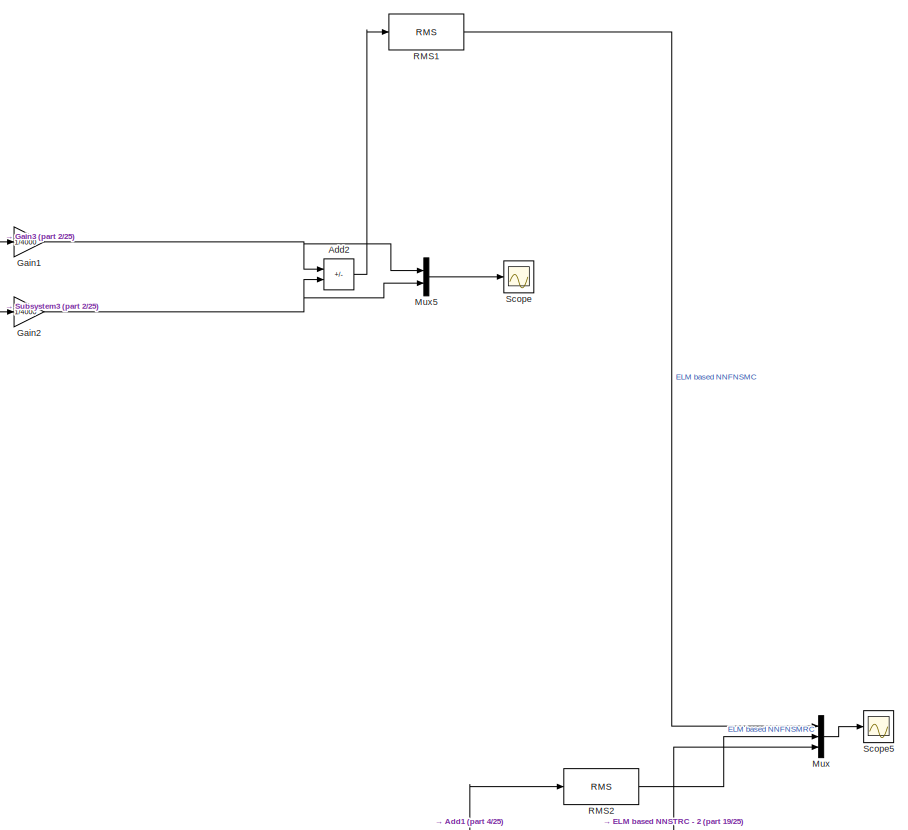
[diagram: root canvas - part 1/25, top center region]
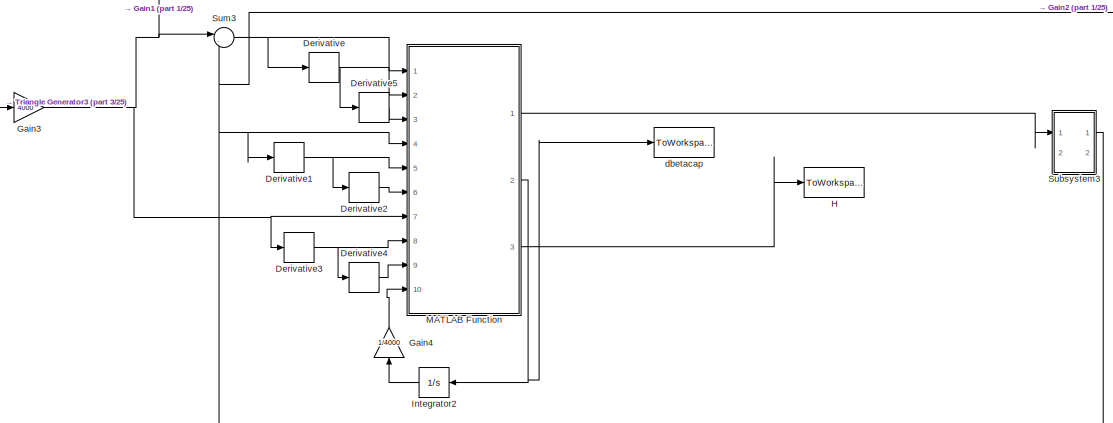
[diagram: root canvas - part 2/25, top left region]
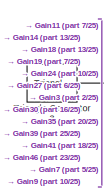
[diagram: root canvas - part 3/25, top left region]
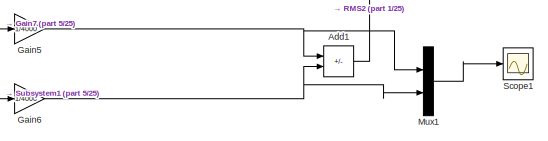
[diagram: root canvas - part 4/25, top center region]
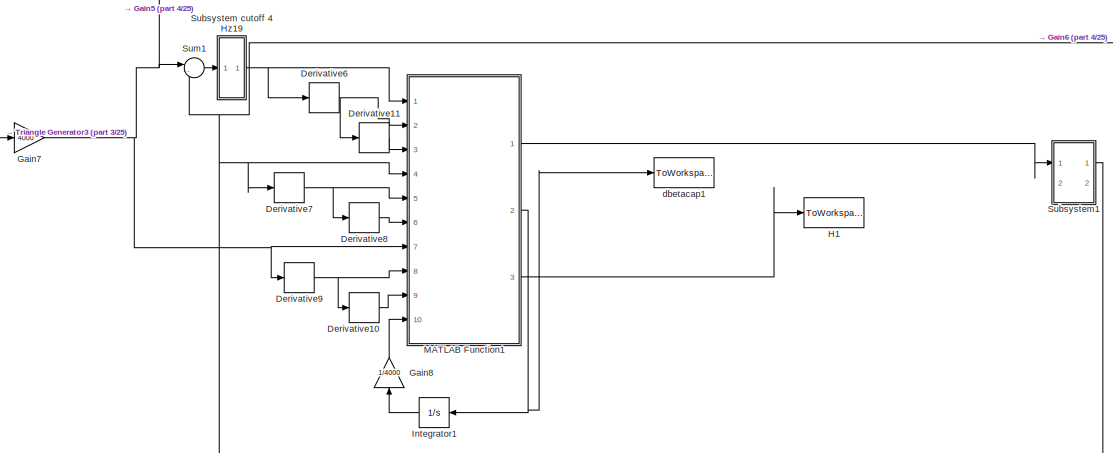
[diagram: root canvas - part 5/25, top left region]
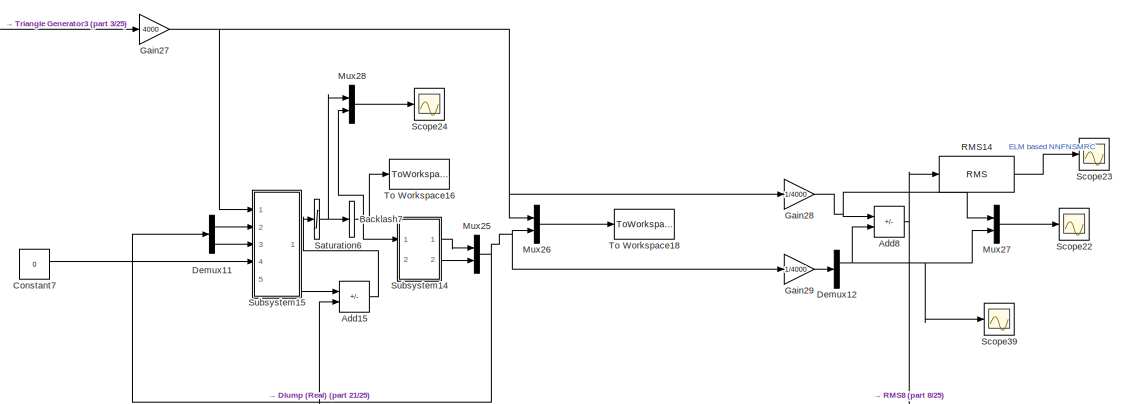
[diagram: root canvas - part 6/25, top center region]
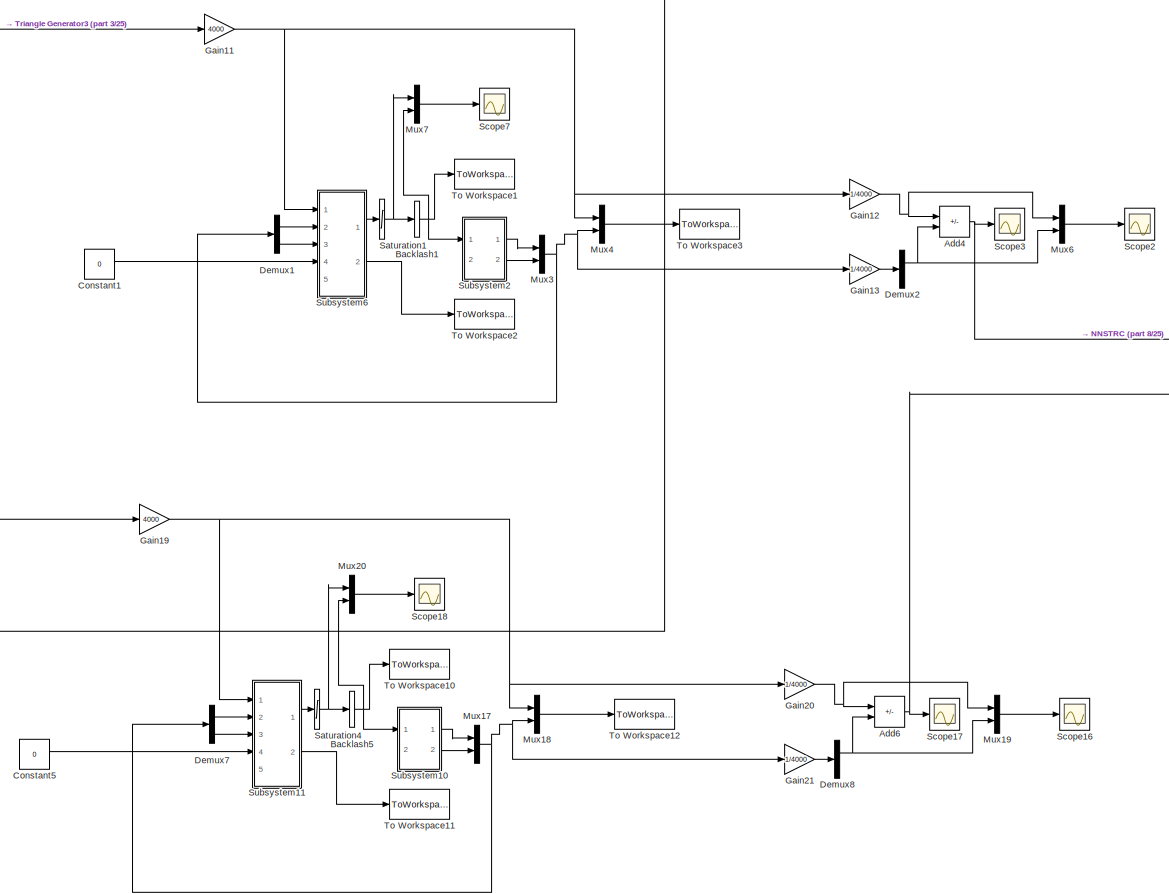
[diagram: root canvas - part 7/25, top center region]
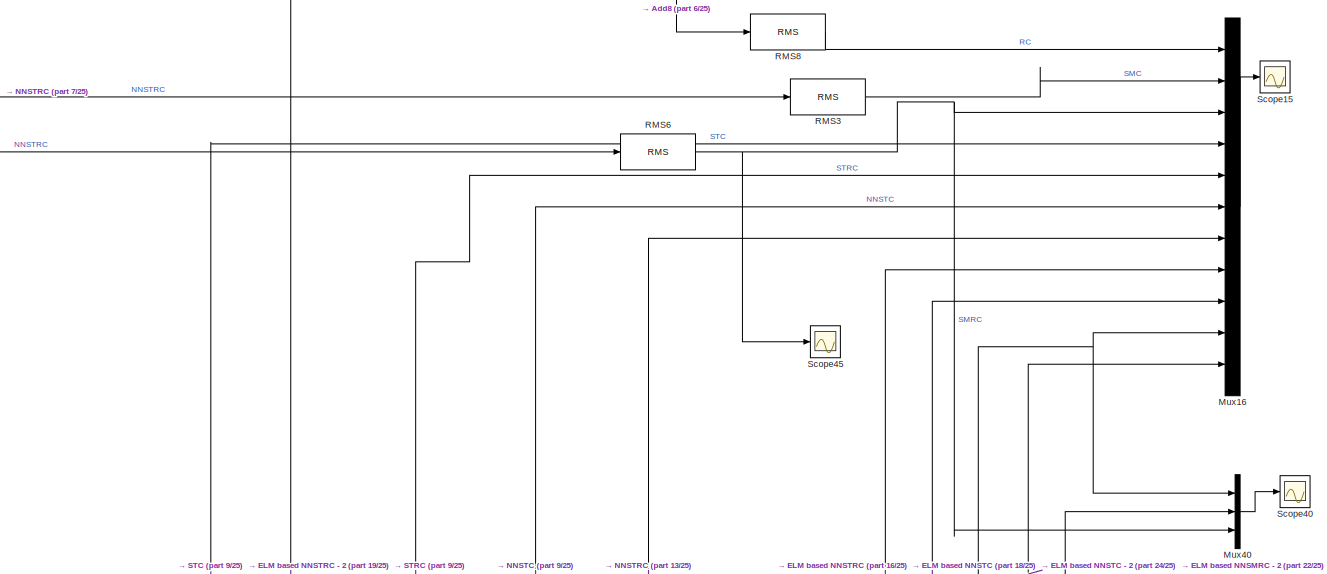
[diagram: root canvas - part 8/25, central region]
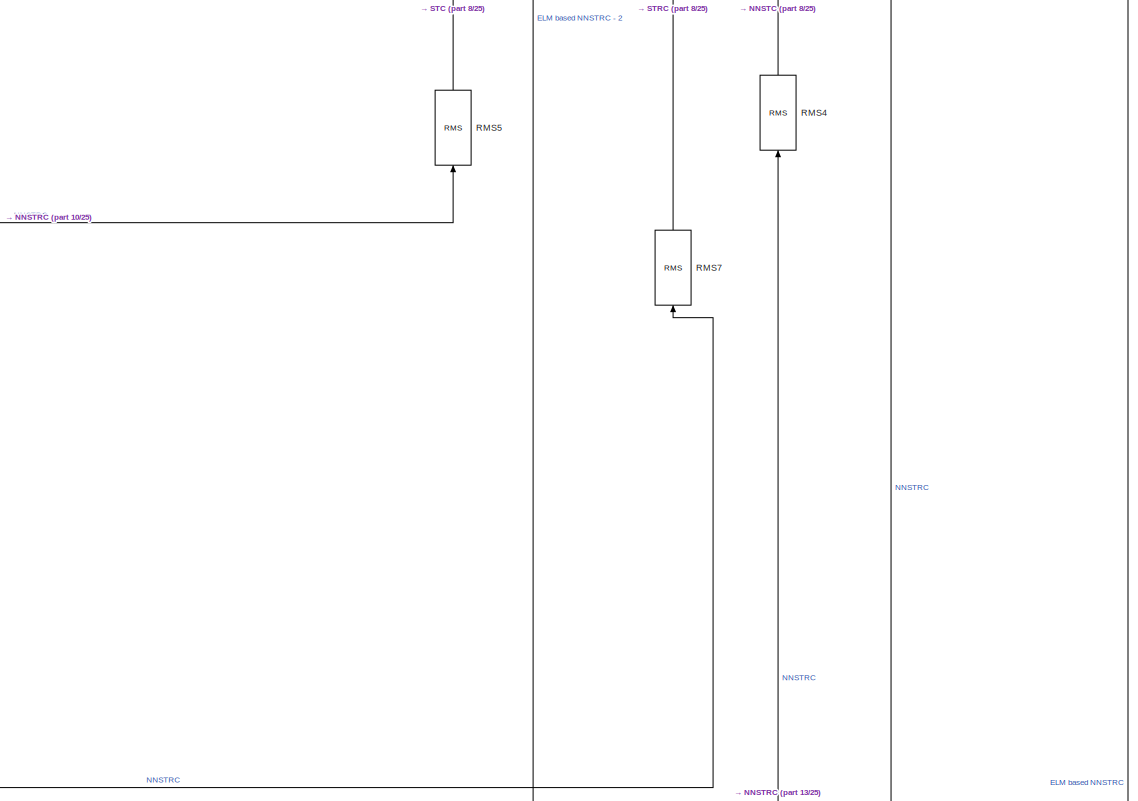
[diagram: root canvas - part 9/25, central region]
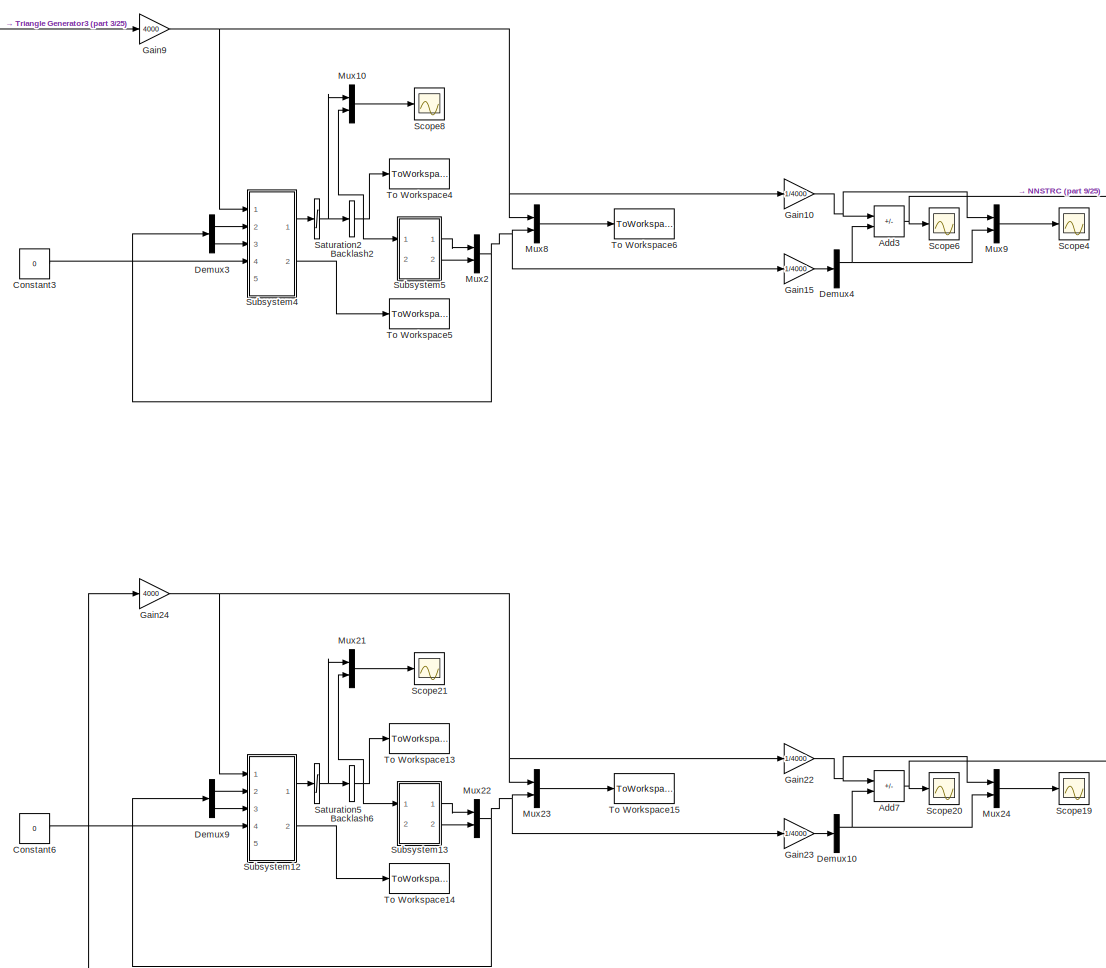
[diagram: root canvas - part 10/25, middle left region]
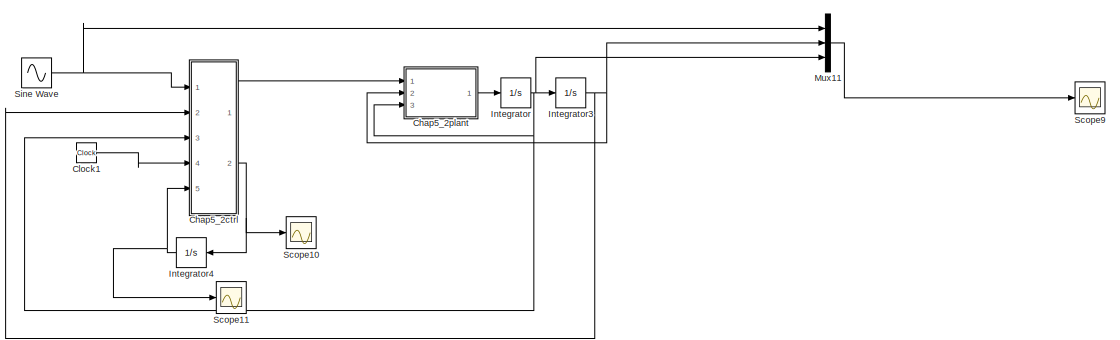
[diagram: root canvas - part 11/25, middle right region]
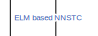
[diagram: root canvas - part 12/25, central region]
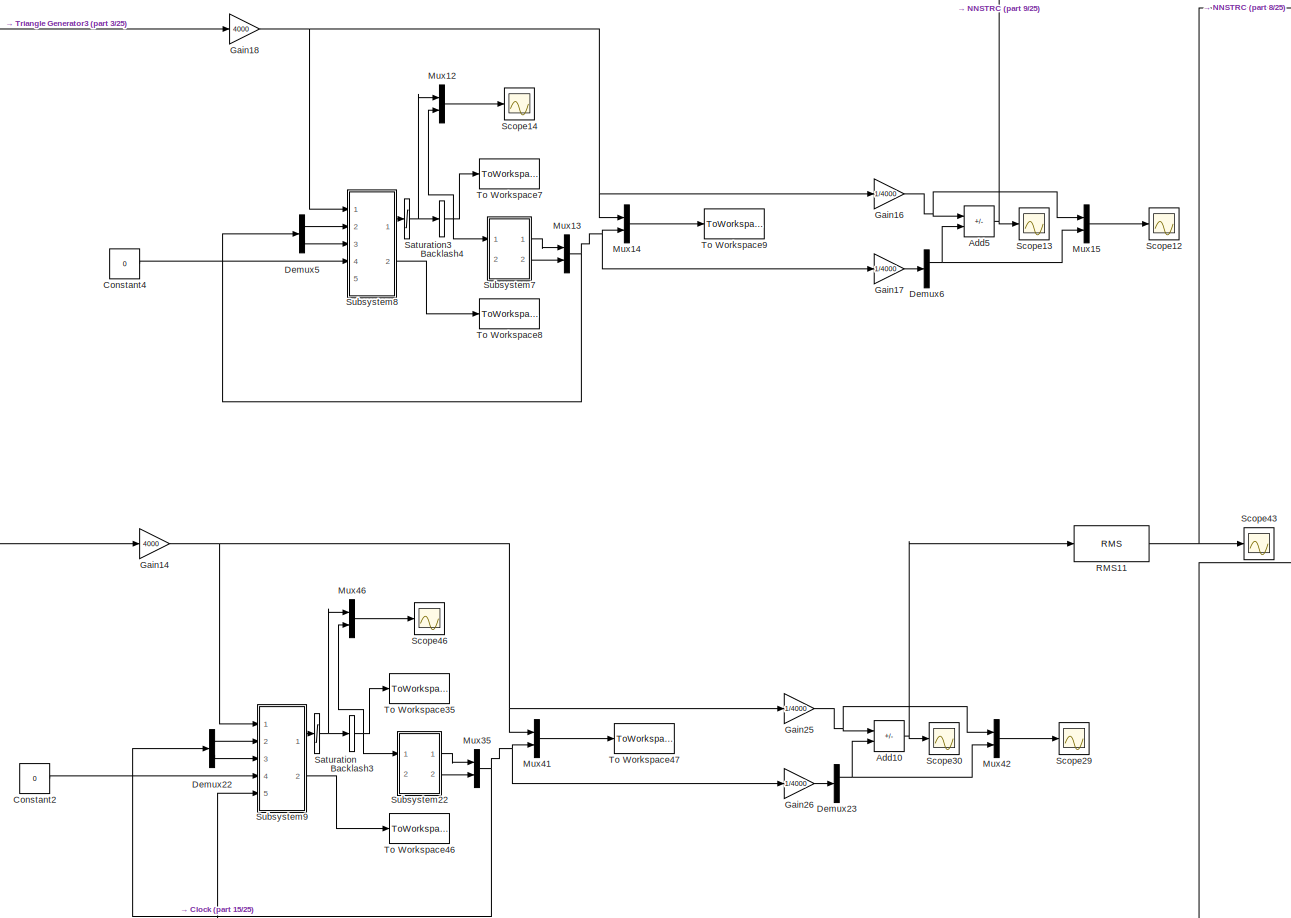
[diagram: root canvas - part 13/25, central region]
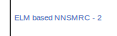
[diagram: root canvas - part 14/25, middle right region]
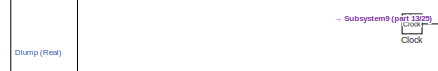
[diagram: root canvas - part 15/25, middle left region]
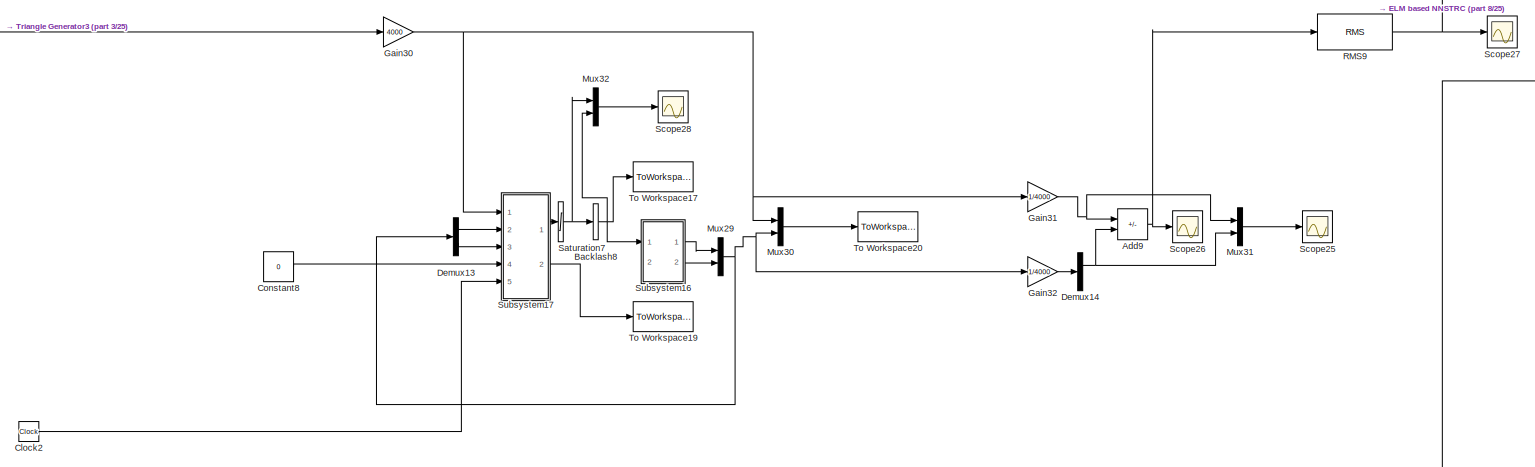
[diagram: root canvas - part 16/25, central region]
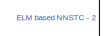
[diagram: root canvas - part 17/25, central region]
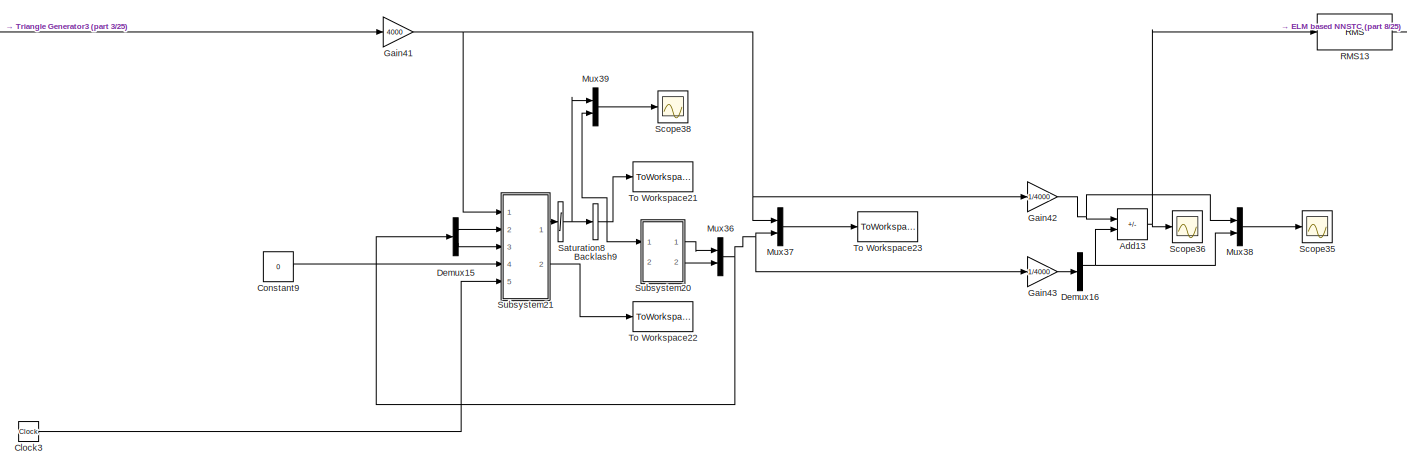
[diagram: root canvas - part 18/25, central region]
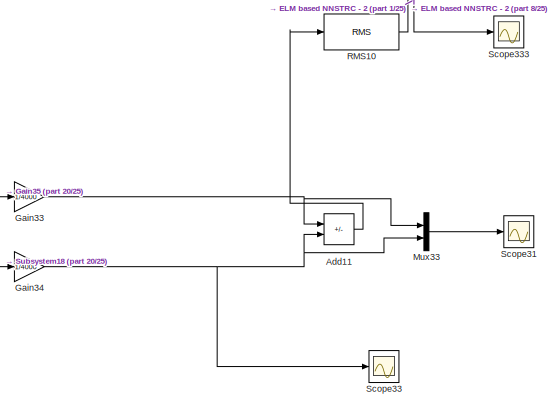
[diagram: root canvas - part 19/25, bottom center region]
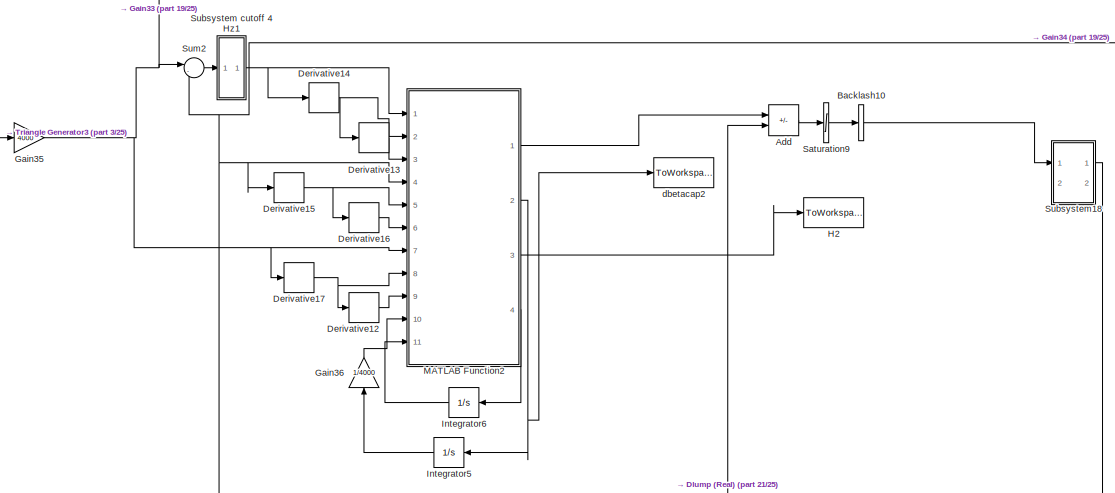
[diagram: root canvas - part 20/25, bottom left region]
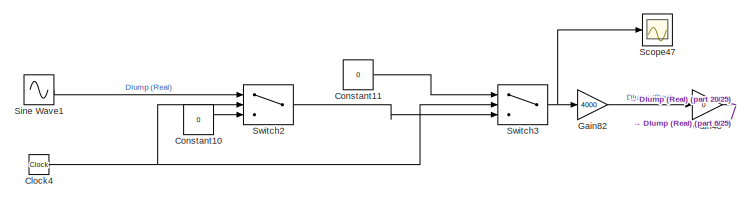
[diagram: root canvas - part 21/25, bottom left region]
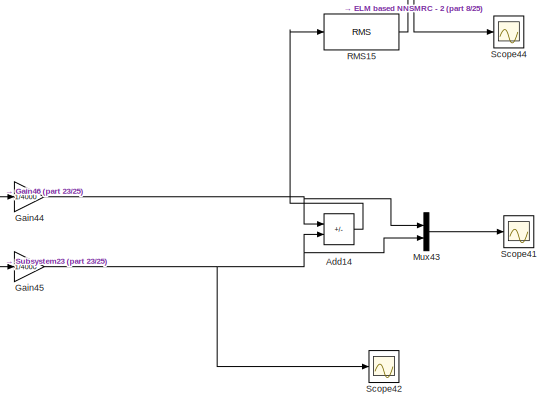
[diagram: root canvas - part 22/25, bottom center region]
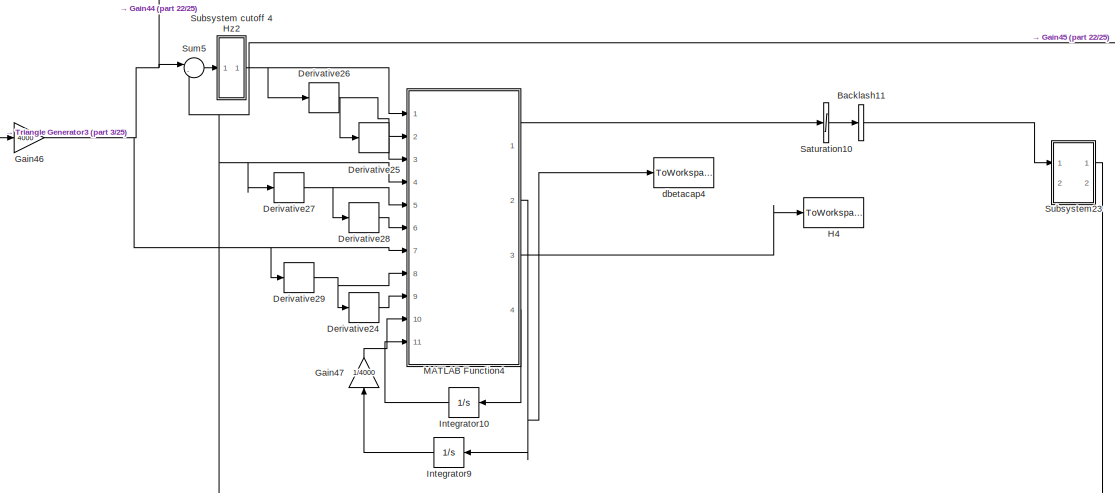
[diagram: root canvas - part 23/25, bottom left region]
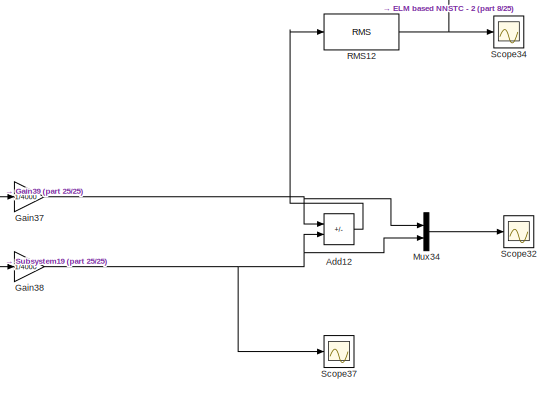
[diagram: root canvas - part 24/25, bottom center region]
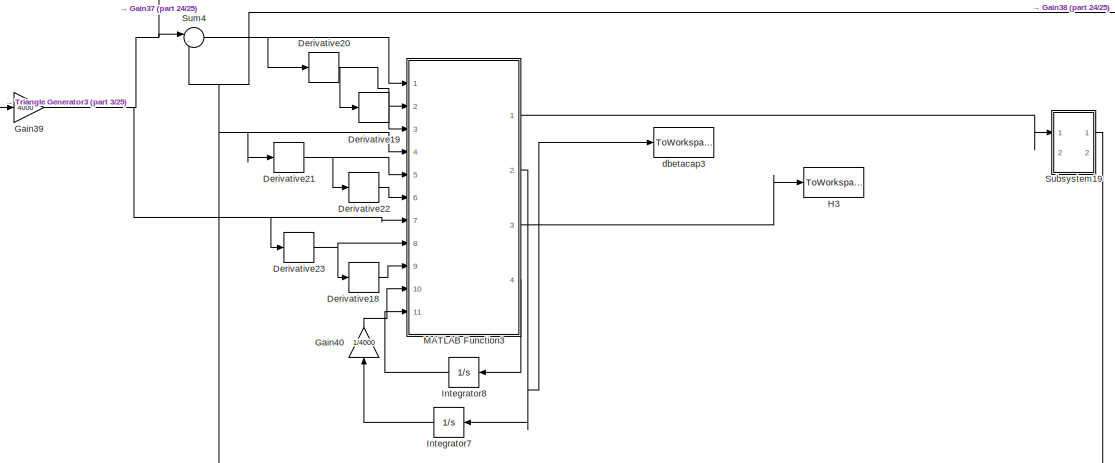
[diagram: root canvas - part 25/25, bottom center region]
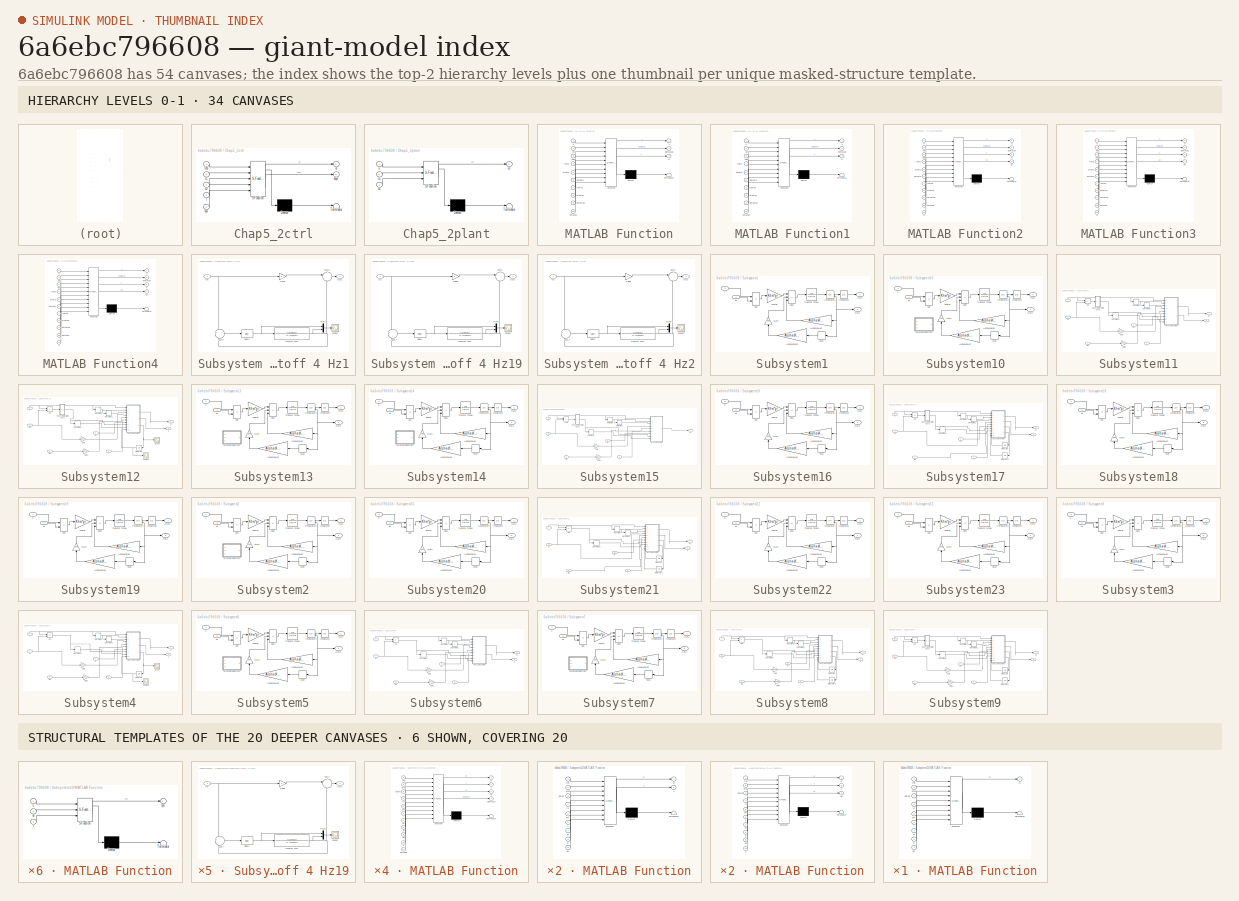
[diagram: thumbnail index - top-2 hierarchy levels (34 canvases) + 6 structural-template representatives of the remaining 20 canvases]
MODEL slx_6a6ebc796608
KIND model
CONFIG AbsTol = auto
CONFIG EnableMultiTasking = on
CONFIG FixedStep = 0.001768
CONFIG MaxStep = auto
CONFIG MinStep = auto
CONFIG RelTol = 1e-3
CONFIG SampleTimeConstraint = Unconstrained
CONFIG Solver = FixedStepAuto
CONFIG SolverName = FixedStepAuto
CONFIG StartTime = 0.0
CONFIG StopTime = 40
BLOCK [Sum] Add
  IconShape = rectangular
  Inputs = +-
  Ports = [2, 1]
BLOCK [Sum] Add1
  IconShape = rectangular
  Inputs = +-
  Ports = [2, 1]
BLOCK [Sum] Add10
  IconShape = rectangular
  Inputs = +-
  Ports = [2, 1]
BLOCK [Sum] Add11
  IconShape = rectangular
  Inputs = +-
  Ports = [2, 1]
BLOCK [Sum] Add12
  IconShape = rectangular
  Inputs = +-
  Ports = [2, 1]
BLOCK [Sum] Add13
  IconShape = rectangular
  Inputs = +-
  Ports = [2, 1]
BLOCK [Sum] Add14
  IconShape = rectangular
  Inputs = +-
  Ports = [2, 1]
BLOCK [Sum] Add15
  IconShape = rectangular
  Inputs = +-
  Ports = [2, 1]
BLOCK [Sum] Add2
  IconShape = rectangular
  Inputs = +-
  Ports = [2, 1]
BLOCK [Sum] Add3
  IconShape = rectangular
  Inputs = +-
  Ports = [2, 1]
BLOCK [Sum] Add4
  IconShape = rectangular
  Inputs = +-
  Ports = [2, 1]
BLOCK [Sum] Add5
  IconShape = rectangular
  Inputs = +-
  Ports = [2, 1]
BLOCK [Sum] Add6
  IconShape = rectangular
  Inputs = +-
  Ports = [2, 1]
BLOCK [Sum] Add7
  IconShape = rectangular
  Inputs = +-
  Ports = [2, 1]
BLOCK [Sum] Add8
  IconShape = rectangular
  Inputs = +-
  Ports = [2, 1]
BLOCK [Sum] Add9
  IconShape = rectangular
  Inputs = +-
  Ports = [2, 1]
BLOCK [Backlash] Backlash1
  BacklashWidth = BACKLASH
BLOCK [Backlash] Backlash10
  BacklashWidth = BACKLASH
BLOCK [Backlash] Backlash11
  BacklashWidth = BACKLASH
BLOCK [Backlash] Backlash2
  BacklashWidth = BACKLASH
BLOCK [Backlash] Backlash3
  BacklashWidth = BACKLASH
BLOCK [Backlash] Backlash4
  BacklashWidth = BACKLASH
BLOCK [Backlash] Backlash5
  BacklashWidth = BACKLASH
BLOCK [Backlash] Backlash6
  BacklashWidth = BACKLASH
BLOCK [Backlash] Backlash7
  BacklashWidth = BACKLASH
BLOCK [Backlash] Backlash8
  BacklashWidth = BACKLASH
BLOCK [Backlash] Backlash9
  BacklashWidth = BACKLASH
BLOCK [SubSystem] Chap5_2ctrl
  ErrorFcn = Stateflow.Translate.translate
  PermitHierarchicalResolution = ExplicitOnly
  Ports = [5, 2]
  RequestExecContextInheritance = off
  SFBlockType = MATLAB Function
  TreatAsAtomicUnit = on
BLOCK [Demux] Chap5_2ctrl/ Demux 
  Outputs = 1
  Ports = [1, 1]
BLOCK [S-Function] Chap5_2ctrl/ SFunction 
  EnableBusSupport = off
  FunctionName = sf_sfun
  PortCounts = [5 3]
  Ports = [5, 3]
  SFcnIsStateOwnerBlock = off
  SFunctionDeploymentMode = off
  Tag = Stateflow S-Function 7
BLOCK [Terminator] Chap5_2ctrl/ Terminator 
BLOCK [Outport] Chap5_2ctrl/dsys
  Port = 2
  VectorParamsAs1DForOutWhenUnconnected = off
BLOCK [Inport] Chap5_2ctrl/sys
  Port = 5
BLOCK [Inport] Chap5_2ctrl/t
  Port = 4
BLOCK [Inport] Chap5_2ctrl/thd
BLOCK [Outport] Chap5_2ctrl/ut
  VectorParamsAs1DForOutWhenUnconnected = off
BLOCK [Inport] Chap5_2ctrl/x1
  Port = 2
BLOCK [Inport] Chap5_2ctrl/x2
  Port = 3
BLOCK [SubSystem] Chap5_2plant
  ErrorFcn = Stateflow.Translate.translate
  PermitHierarchicalResolution = ExplicitOnly
  Ports = [3, 1]
  RequestExecContextInheritance = off
  SFBlockType = MATLAB Function
  TreatAsAtomicUnit = on
BLOCK [Demux] Chap5_2plant/ Demux 
  Outputs = 1
  Ports = [1, 1]
BLOCK [S-Function] Chap5_2plant/ SFunction 
  EnableBusSupport = off
  FunctionName = sf_sfun
  PortCounts = [3 2]
  Ports = [3, 2]
  SFcnIsStateOwnerBlock = off
  SFunctionDeploymentMode = off
  Tag = Stateflow S-Function 8
BLOCK [Terminator] Chap5_2plant/ Terminator 
BLOCK [Inport] Chap5_2plant/u
BLOCK [Inport] Chap5_2plant/x1
  Port = 2
BLOCK [Inport] Chap5_2plant/x2
  Port = 3
BLOCK [Outport] Chap5_2plant/x3
  VectorParamsAs1DForOutWhenUnconnected = off
BLOCK [Clock] Clock
  Decimation = 40
  DisplayTime = on
BLOCK [Clock] Clock1
  DisplayTime = on
BLOCK [Clock] Clock2
  Decimation = 40
  DisplayTime = on
BLOCK [Clock] Clock3
  Decimation = 40
  DisplayTime = on
BLOCK [Clock] Clock4
BLOCK [Constant] Constant1
  Value = 0
BLOCK [Constant] Constant10
  Value = 0
BLOCK [Constant] Constant11
  Value = 0
BLOCK [Constant] Constant2
  Value = 0
BLOCK [Constant] Constant3
  Value = 0
BLOCK [Constant] Constant4
  Value = 0
BLOCK [Constant] Constant5
  Value = 0
BLOCK [Constant] Constant6
  Value = 0
BLOCK [Constant] Constant7
  Value = 0
BLOCK [Constant] Constant8
  Value = 0
BLOCK [Constant] Constant9
  Value = 0
BLOCK [Demux] Demux1
  Outputs = 2
  Ports = [1, 2]
BLOCK [Demux] Demux10
  Outputs = 2
  Ports = [1, 2]
BLOCK [Demux] Demux11
  Outputs = 2
  Ports = [1, 2]
BLOCK [Demux] Demux12
  Outputs = 2
  Ports = [1, 2]
BLOCK [Demux] Demux13
  Outputs = 2
  Ports = [1, 2]
BLOCK [Demux] Demux14
  Outputs = 2
  Ports = [1, 2]
BLOCK [Demux] Demux15
  Outputs = 2
  Ports = [1, 2]
BLOCK [Demux] Demux16
  Outputs = 2
  Ports = [1, 2]
BLOCK [Demux] Demux2
  Outputs = 2
  Ports = [1, 2]
BLOCK [Demux] Demux22
  Outputs = 2
  Ports = [1, 2]
BLOCK [Demux] Demux23
  Outputs = 2
  Ports = [1, 2]
BLOCK [Demux] Demux3
  Outputs = 2
  Ports = [1, 2]
BLOCK [Demux] Demux4
  Outputs = 2
  Ports = [1, 2]
BLOCK [Demux] Demux5
  Outputs = 2
  Ports = [1, 2]
BLOCK [Demux] Demux6
  Outputs = 2
  Ports = [1, 2]
BLOCK [Demux] Demux7
  Outputs = 2
  Ports = [1, 2]
BLOCK [Demux] Demux8
  Outputs = 2
  Ports = [1, 2]
BLOCK [Demux] Demux9
  Outputs = 2
  Ports = [1, 2]
BLOCK [Derivative] Derivative
BLOCK [Derivative] Derivative1
BLOCK [Derivative] Derivative10
BLOCK [Derivative] Derivative11
BLOCK [Derivative] Derivative12
BLOCK [Derivative] Derivative13
BLOCK [Derivative] Derivative14
BLOCK [Derivative] Derivative15
BLOCK [Derivative] Derivative16
BLOCK [Derivative] Derivative17
BLOCK [Derivative] Derivative18
BLOCK [Derivative] Derivative19
BLOCK [Derivative] Derivative2
BLOCK [Derivative] Derivative20
BLOCK [Derivative] Derivative21
BLOCK [Derivative] Derivative22
BLOCK [Derivative] Derivative23
BLOCK [Derivative] Derivative24
BLOCK [Derivative] Derivative25
BLOCK [Derivative] Derivative26
BLOCK [Derivative] Derivative27
BLOCK [Derivative] Derivative28
BLOCK [Derivative] Derivative29
BLOCK [Derivative] Derivative3
BLOCK [Derivative] Derivative4
BLOCK [Derivative] Derivative5
BLOCK [Derivative] Derivative6
BLOCK [Derivative] Derivative7
BLOCK [Derivative] Derivative8
BLOCK [Derivative] Derivative9
BLOCK [Gain] Gain1
  Gain = 1/4000
BLOCK [Gain] Gain10
  Gain = 1/4000
BLOCK [Gain] Gain11
  Gain = 4000
BLOCK [Gain] Gain12
  Gain = 1/4000
BLOCK [Gain] Gain13
  Gain = 1/4000
BLOCK [Gain] Gain14
  Gain = 4000
BLOCK [Gain] Gain15
  Gain = 1/4000
BLOCK [Gain] Gain16
  Gain = 1/4000
BLOCK [Gain] Gain17
  Gain = 1/4000
BLOCK [Gain] Gain18
  Gain = 4000
BLOCK [Gain] Gain19
  Gain = 4000
BLOCK [Gain] Gain2
  Gain = 1/4000
BLOCK [Gain] Gain20
  Gain = 1/4000
BLOCK [Gain] Gain21
  Gain = 1/4000
BLOCK [Gain] Gain22
  Gain = 1/4000
BLOCK [Gain] Gain23
  Gain = 1/4000
BLOCK [Gain] Gain24
  Gain = 4000
BLOCK [Gain] Gain25
  Gain = 1/4000
BLOCK [Gain] Gain26
  Gain = 1/4000
BLOCK [Gain] Gain27
  Gain = 4000
BLOCK [Gain] Gain28
  Gain = 1/4000
BLOCK [Gain] Gain29
  Gain = 1/4000
BLOCK [Gain] Gain3
  Gain = 4000
BLOCK [Gain] Gain30
  Gain = 4000
BLOCK [Gain] Gain31
  Gain = 1/4000
BLOCK [Gain] Gain32
  Gain = 1/4000
BLOCK [Gain] Gain33
  Gain = 1/4000
BLOCK [Gain] Gain34
  Gain = 1/4000
BLOCK [Gain] Gain35
  Gain = 4000
BLOCK [Gain] Gain36
  Gain = 1/4000
  NameLocation = right
BLOCK [Gain] Gain37
  Gain = 1/4000
BLOCK [Gain] Gain38
  Gain = 1/4000
BLOCK [Gain] Gain39
  Gain = 4000
BLOCK [Gain] Gain4
  Gain = 1/4000
  NameLocation = right
BLOCK [Gain] Gain40
  Gain = 1/4000
  NameLocation = right
BLOCK [Gain] Gain41
  Gain = 4000
BLOCK [Gain] Gain42
  Gain = 1/4000
BLOCK [Gain] Gain43
  Gain = 1/4000
BLOCK [Gain] Gain44
  Gain = 1/4000
BLOCK [Gain] Gain45
  Gain = 1/4000
BLOCK [Gain] Gain46
  Gain = 4000
BLOCK [Gain] Gain47
  Gain = 1/4000
  NameLocation = right
BLOCK [Gain] Gain48
  Gain = 0
BLOCK [Gain] Gain5
  Gain = 1/4000
BLOCK [Gain] Gain6
  Gain = 1/4000
BLOCK [Gain] Gain7
  Gain = 4000
BLOCK [Gain] Gain8
  Gain = 1/4000
  NameLocation = right
BLOCK [Gain] Gain82
  Gain = 4000
BLOCK [Gain] Gain9
  Gain = 4000
BLOCK [ToWorkspace] H
  FixptAsFi = on
  MaxDataPoints = inf
  Ports = [1]
  SampleTime = -1
  SaveFormat = Timeseries
  VariableName = simout1
BLOCK [ToWorkspace] H1
  FixptAsFi = on
  MaxDataPoints = inf
  Ports = [1]
  SampleTime = -1
  SaveFormat = Timeseries
  VariableName = simout2
BLOCK [ToWorkspace] H2
  FixptAsFi = on
  MaxDataPoints = inf
  Ports = [1]
  SampleTime = -1
  SaveFormat = Timeseries
  VariableName = simout4
BLOCK [ToWorkspace] H3
  FixptAsFi = on
  MaxDataPoints = inf
  Ports = [1]
  SampleTime = -1
  SaveFormat = Timeseries
  VariableName = simout6
BLOCK [ToWorkspace] H4
  FixptAsFi = on
  MaxDataPoints = inf
  Ports = [1]
  SampleTime = -1
  SaveFormat = Timeseries
  VariableName = simout8
BLOCK [Integrator] Integrator
  Ports = [1, 1]
BLOCK [Integrator] Integrator1
  NameLocation = top
  Ports = [1, 1]
BLOCK [Integrator] Integrator10
  NameLocation = top
  Ports = [1, 1]
BLOCK [Integrator] Integrator2
  NameLocation = top
  Ports = [1, 1]
BLOCK [Integrator] Integrator3
  Ports = [1, 1]
BLOCK [Integrator] Integrator4
  NameLocation = top
  Ports = [1, 1]
BLOCK [Integrator] Integrator5
  NameLocation = top
  Ports = [1, 1]
BLOCK [Integrator] Integrator6
  NameLocation = top
  Ports = [1, 1]
BLOCK [Integrator] Integrator7
  NameLocation = top
  Ports = [1, 1]
BLOCK [Integrator] Integrator8
  NameLocation = top
  Ports = [1, 1]
BLOCK [Integrator] Integrator9
  NameLocation = top
  Ports = [1, 1]
BLOCK [SubSystem] MATLAB Function
  ErrorFcn = Stateflow.Translate.translate
  PermitHierarchicalResolution = ExplicitOnly
  Ports = [10, 3]
  RequestExecContextInheritance = off
  SFBlockType = MATLAB Function
  TreatAsAtomicUnit = on
BLOCK [Demux] MATLAB Function/ Demux 
  Outputs = 1
  Ports = [1, 1]
BLOCK [S-Function] MATLAB Function/ SFunction 
  EnableBusSupport = off
  FunctionName = sf_sfun
  PortCounts = [10 4]
  Ports = [10, 4]
  SFcnIsStateOwnerBlock = off
  SFunctionDeploymentMode = off
  Tag = Stateflow S-Function 3
BLOCK [Terminator] MATLAB Function/ Terminator 
BLOCK [Outport] MATLAB Function/H
  Port = 3
  VectorParamsAs1DForOutWhenUnconnected = off
BLOCK [Inport] MATLAB Function/betacap
  Port = 10
BLOCK [Outport] MATLAB Function/dbetacap
  Port = 2
  VectorParamsAs1DForOutWhenUnconnected = off
BLOCK [Inport] MATLAB Function/dde
  Port = 3
BLOCK [Inport] MATLAB Function/ddtheta
  Port = 6
BLOCK [Inport] MATLAB Function/ddthetad
  Port = 9
BLOCK [Inport] MATLAB Function/de
  Port = 2
BLOCK [Inport] MATLAB Function/dtheta
  Port = 5
BLOCK [Inport] MATLAB Function/dthetad
  Port = 8
BLOCK [Inport] MATLAB Function/e
BLOCK [Inport] MATLAB Function/theta
  Port = 4
BLOCK [Inport] MATLAB Function/thetad
  Port = 7
BLOCK [Outport] MATLAB Function/u
  VectorParamsAs1DForOutWhenUnconnected = off
BLOCK [SubSystem] MATLAB Function1
  ErrorFcn = Stateflow.Translate.translate
  PermitHierarchicalResolution = ExplicitOnly
  Ports = [10, 3]
  RequestExecContextInheritance = off
  SFBlockType = MATLAB Function
  TreatAsAtomicUnit = on
BLOCK [Demux] MATLAB Function1/ Demux 
  Outputs = 1
  Ports = [1, 1]
BLOCK [S-Function] MATLAB Function1/ SFunction 
  EnableBusSupport = off
  FunctionName = sf_sfun
  PortCounts = [10 4]
  Ports = [10, 4]
  SFcnIsStateOwnerBlock = off
  SFunctionDeploymentMode = off
  Tag = Stateflow S-Function 1
BLOCK [Terminator] MATLAB Function1/ Terminator 
BLOCK [Outport] MATLAB Function1/H
  Port = 3
  VectorParamsAs1DForOutWhenUnconnected = off
BLOCK [Inport] MATLAB Function1/betacap
  Port = 10
BLOCK [Outport] MATLAB Function1/dbetacap
  Port = 2
  VectorParamsAs1DForOutWhenUnconnected = off
BLOCK [Inport] MATLAB Function1/dde
  Port = 3
BLOCK [Inport] MATLAB Function1/ddtheta
  Port = 6
BLOCK [Inport] MATLAB Function1/ddthetad
  Port = 9
BLOCK [Inport] MATLAB Function1/de
  Port = 2
BLOCK [Inport] MATLAB Function1/dtheta
  Port = 5
BLOCK [Inport] MATLAB Function1/dthetad
  Port = 8
BLOCK [Inport] MATLAB Function1/e
BLOCK [Inport] MATLAB Function1/theta
  Port = 4
BLOCK [Inport] MATLAB Function1/thetad
  Port = 7
BLOCK [Outport] MATLAB Function1/u
  VectorParamsAs1DForOutWhenUnconnected = off
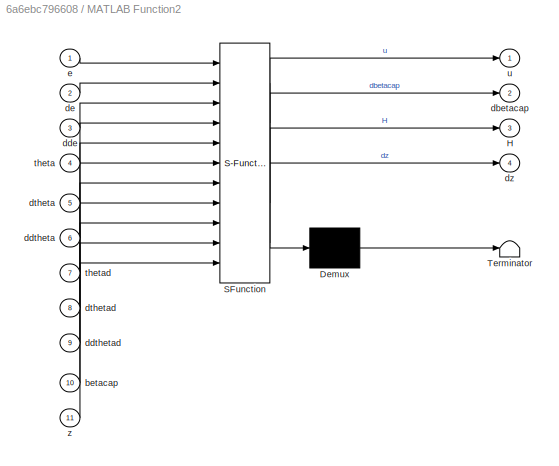
BLOCK [SubSystem] MATLAB Function2
  ErrorFcn = Stateflow.Translate.translate
  PermitHierarchicalResolution = ExplicitOnly
  Ports = [11, 4]
  RequestExecContextInheritance = off
  SFBlockType = MATLAB Function
  TreatAsAtomicUnit = on
BLOCK [Demux] MATLAB Function2/ Demux 
  Outputs = 1
  Ports = [1, 1]
BLOCK [S-Function] MATLAB Function2/ SFunction 
  EnableBusSupport = off
  FunctionName = sf_sfun
  PortCounts = [11 5]
  Ports = [11, 5]
  SFcnIsStateOwnerBlock = off
  SFunctionDeploymentMode = off
  Tag = Stateflow S-Function 19
BLOCK [Terminator] MATLAB Function2/ Terminator 
BLOCK [Outport] MATLAB Function2/H
  Port = 3
  VectorParamsAs1DForOutWhenUnconnected = off
BLOCK [Inport] MATLAB Function2/betacap
  Port = 10
BLOCK [Outport] MATLAB Function2/dbetacap
  Port = 2
  VectorParamsAs1DForOutWhenUnconnected = off
BLOCK [Inport] MATLAB Function2/dde
  Port = 3
BLOCK [Inport] MATLAB Function2/ddtheta
  Port = 6
BLOCK [Inport] MATLAB Function2/ddthetad
  Port = 9
BLOCK [Inport] MATLAB Function2/de
  Port = 2
BLOCK [Inport] MATLAB Function2/dtheta
  Port = 5
BLOCK [Inport] MATLAB Function2/dthetad
  Port = 8
BLOCK [Outport] MATLAB Function2/dz
  Port = 4
  VectorParamsAs1DForOutWhenUnconnected = off
BLOCK [Inport] MATLAB Function2/e
BLOCK [Inport] MATLAB Function2/theta
  Port = 4
BLOCK [Inport] MATLAB Function2/thetad
  Port = 7
BLOCK [Outport] MATLAB Function2/u
  VectorParamsAs1DForOutWhenUnconnected = off
BLOCK [Inport] MATLAB Function2/z
  Port = 11
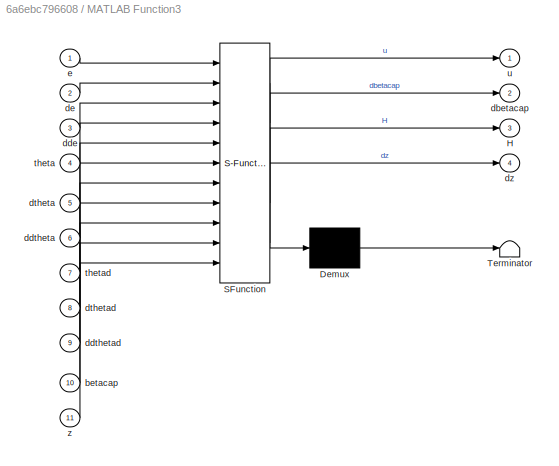
BLOCK [SubSystem] MATLAB Function3
  ErrorFcn = Stateflow.Translate.translate
  PermitHierarchicalResolution = ExplicitOnly
  Ports = [11, 4]
  RequestExecContextInheritance = off
  SFBlockType = MATLAB Function
  TreatAsAtomicUnit = on
BLOCK [Demux] MATLAB Function3/ Demux 
  Outputs = 1
  Ports = [1, 1]
BLOCK [S-Function] MATLAB Function3/ SFunction 
  EnableBusSupport = off
  FunctionName = sf_sfun
  PortCounts = [11 5]
  Ports = [11, 5]
  SFcnIsStateOwnerBlock = off
  SFunctionDeploymentMode = off
  Tag = Stateflow S-Function 20
BLOCK [Terminator] MATLAB Function3/ Terminator 
BLOCK [Outport] MATLAB Function3/H
  Port = 3
  VectorParamsAs1DForOutWhenUnconnected = off
BLOCK [Inport] MATLAB Function3/betacap
  Port = 10
BLOCK [Outport] MATLAB Function3/dbetacap
  Port = 2
  VectorParamsAs1DForOutWhenUnconnected = off
BLOCK [Inport] MATLAB Function3/dde
  Port = 3
BLOCK [Inport] MATLAB Function3/ddtheta
  Port = 6
BLOCK [Inport] MATLAB Function3/ddthetad
  Port = 9
BLOCK [Inport] MATLAB Function3/de
  Port = 2
BLOCK [Inport] MATLAB Function3/dtheta
  Port = 5
BLOCK [Inport] MATLAB Function3/dthetad
  Port = 8
BLOCK [Outport] MATLAB Function3/dz
  Port = 4
  VectorParamsAs1DForOutWhenUnconnected = off
BLOCK [Inport] MATLAB Function3/e
BLOCK [Inport] MATLAB Function3/theta
  Port = 4
BLOCK [Inport] MATLAB Function3/thetad
  Port = 7
BLOCK [Outport] MATLAB Function3/u
  VectorParamsAs1DForOutWhenUnconnected = off
BLOCK [Inport] MATLAB Function3/z
  Port = 11
BLOCK [SubSystem] MATLAB Function4
  ErrorFcn = Stateflow.Translate.translate
  PermitHierarchicalResolution = ExplicitOnly
  Ports = [11, 4]
  RequestExecContextInheritance = off
  SFBlockType = MATLAB Function
  TreatAsAtomicUnit = on
BLOCK [Demux] MATLAB Function4/ Demux 
  Outputs = 1
  Ports = [1, 1]
BLOCK [S-Function] MATLAB Function4/ SFunction 
  EnableBusSupport = off
  FunctionName = sf_sfun
  PortCounts = [11 5]
  Ports = [11, 5]
  SFcnIsStateOwnerBlock = off
  SFunctionDeploymentMode = off
  Tag = Stateflow S-Function 22
BLOCK [Terminator] MATLAB Function4/ Terminator 
BLOCK [Outport] MATLAB Function4/H
  Port = 3
  VectorParamsAs1DForOutWhenUnconnected = off
BLOCK [Inport] MATLAB Function4/betacap
  Port = 10
BLOCK [Outport] MATLAB Function4/dbetacap
  Port = 2
  VectorParamsAs1DForOutWhenUnconnected = off
BLOCK [Inport] MATLAB Function4/dde
  Port = 3
BLOCK [Inport] MATLAB Function4/ddtheta
  Port = 6
BLOCK [Inport] MATLAB Function4/ddthetad
  Port = 9
BLOCK [Inport] MATLAB Function4/de
  Port = 2
BLOCK [Inport] MATLAB Function4/dtheta
  Port = 5
BLOCK [Inport] MATLAB Function4/dthetad
  Port = 8
BLOCK [Outport] MATLAB Function4/dz
  Port = 4
  VectorParamsAs1DForOutWhenUnconnected = off
BLOCK [Inport] MATLAB Function4/e
BLOCK [Inport] MATLAB Function4/theta
  Port = 4
BLOCK [Inport] MATLAB Function4/thetad
  Port = 7
BLOCK [Outport] MATLAB Function4/u
  VectorParamsAs1DForOutWhenUnconnected = off
BLOCK [Inport] MATLAB Function4/z
  Port = 11
BLOCK [Mux] Mux
  DisplayOption = bar
  Inputs = 3
  Ports = [3, 1]
BLOCK [Mux] Mux1
  DisplayOption = bar
  Inputs = 2
  Ports = [2, 1]
BLOCK [Mux] Mux10
  DisplayOption = bar
  Inputs = 2
  Ports = [2, 1]
BLOCK [Mux] Mux11
  DisplayOption = bar
  Inputs = 3
  Ports = [3, 1]
BLOCK [Mux] Mux12
  DisplayOption = bar
  Inputs = 2
  Ports = [2, 1]
BLOCK [Mux] Mux13
  DisplayOption = bar
  Inputs = 2
  Ports = [2, 1]
BLOCK [Mux] Mux14
  DisplayOption = bar
  Inputs = 2
  Ports = [2, 1]
BLOCK [Mux] Mux15
  DisplayOption = bar
  Inputs = 2
  Ports = [2, 1]
BLOCK [Mux] Mux16
  DisplayOption = bar
  Inputs = 11
  Ports = [11, 1]
BLOCK [Mux] Mux17
  DisplayOption = bar
  Inputs = 2
  Ports = [2, 1]
BLOCK [Mux] Mux18
  DisplayOption = bar
  Inputs = 2
  Ports = [2, 1]
BLOCK [Mux] Mux19
  DisplayOption = bar
  Inputs = 2
  Ports = [2, 1]
BLOCK [Mux] Mux2
  DisplayOption = bar
  Inputs = 2
  Ports = [2, 1]
BLOCK [Mux] Mux20
  DisplayOption = bar
  Inputs = 2
  Ports = [2, 1]
BLOCK [Mux] Mux21
  DisplayOption = bar
  Inputs = 2
  Ports = [2, 1]
BLOCK [Mux] Mux22
  DisplayOption = bar
  Inputs = 2
  Ports = [2, 1]
BLOCK [Mux] Mux23
  DisplayOption = bar
  Inputs = 2
  Ports = [2, 1]
BLOCK [Mux] Mux24
  DisplayOption = bar
  Inputs = 2
  Ports = [2, 1]
BLOCK [Mux] Mux25
  DisplayOption = bar
  Inputs = 2
  Ports = [2, 1]
BLOCK [Mux] Mux26
  DisplayOption = bar
  Inputs = 2
  Ports = [2, 1]
BLOCK [Mux] Mux27
  DisplayOption = bar
  Inputs = 2
  Ports = [2, 1]
BLOCK [Mux] Mux28
  DisplayOption = bar
  Inputs = 2
  Ports = [2, 1]
BLOCK [Mux] Mux29
  DisplayOption = bar
  Inputs = 2
  Ports = [2, 1]
BLOCK [Mux] Mux3
  DisplayOption = bar
  Inputs = 2
  Ports = [2, 1]
BLOCK [Mux] Mux30
  DisplayOption = bar
  Inputs = 2
  Ports = [2, 1]
BLOCK [Mux] Mux31
  DisplayOption = bar
  Inputs = 2
  Ports = [2, 1]
BLOCK [Mux] Mux32
  DisplayOption = bar
  Inputs = 2
  Ports = [2, 1]
BLOCK [Mux] Mux33
  DisplayOption = bar
  Inputs = 2
  Ports = [2, 1]
BLOCK [Mux] Mux34
  DisplayOption = bar
  Inputs = 2
  Ports = [2, 1]
BLOCK [Mux] Mux35
  DisplayOption = bar
  Inputs = 2
  Ports = [2, 1]
BLOCK [Mux] Mux36
  DisplayOption = bar
  Inputs = 2
  Ports = [2, 1]
BLOCK [Mux] Mux37
  DisplayOption = bar
  Inputs = 2
  Ports = [2, 1]
BLOCK [Mux] Mux38
  DisplayOption = bar
  Inputs = 2
  Ports = [2, 1]
BLOCK [Mux] Mux39
  DisplayOption = bar
  Inputs = 2
  Ports = [2, 1]
BLOCK [Mux] Mux4
  DisplayOption = bar
  Inputs = 2
  Ports = [2, 1]
BLOCK [Mux] Mux40
  DisplayOption = bar
  Inputs = 3
  Ports = [3, 1]
BLOCK [Mux] Mux41
  DisplayOption = bar
  Inputs = 2
  Ports = [2, 1]
BLOCK [Mux] Mux42
  DisplayOption = bar
  Inputs = 2
  Ports = [2, 1]
BLOCK [Mux] Mux43
  DisplayOption = bar
  Inputs = 2
  Ports = [2, 1]
BLOCK [Mux] Mux46
  DisplayOption = bar
  Inputs = 2
  Ports = [2, 1]
BLOCK [Mux] Mux5
  DisplayOption = bar
  Inputs = 2
  Ports = [2, 1]
BLOCK [Mux] Mux6
  DisplayOption = bar
  Inputs = 2
  Ports = [2, 1]
BLOCK [Mux] Mux7
  DisplayOption = bar
  Inputs = 2
  Ports = [2, 1]
BLOCK [Mux] Mux8
  DisplayOption = bar
  Inputs = 2
  Ports = [2, 1]
BLOCK [Mux] Mux9
  DisplayOption = bar
  Inputs = 2
  Ports = [2, 1]
BLOCK [Reference] RMS1  REF=dspstat3/RMS
  Ports = [1, 1]
  SourceBlock = dspstat3/RMS
  SourceProductBaseCode = DS
  SourceType = RMS
  UserDataPersistent = on
BLOCK [Reference] RMS10  REF=dspstat3/RMS
  Ports = [1, 1]
  SourceBlock = dspstat3/RMS
  SourceProductBaseCode = DS
  SourceType = RMS
  UserDataPersistent = on
BLOCK [Reference] RMS11  REF=dspstat3/RMS
  Ports = [1, 1]
  SourceBlock = dspstat3/RMS
  SourceProductBaseCode = DS
  SourceType = RMS
  UserDataPersistent = on
BLOCK [Reference] RMS12  REF=dspstat3/RMS
  Ports = [1, 1]
  SourceBlock = dspstat3/RMS
  SourceProductBaseCode = DS
  SourceType = RMS
  UserDataPersistent = on
BLOCK [Reference] RMS13  REF=dspstat3/RMS
  Ports = [1, 1]
  SourceBlock = dspstat3/RMS
  SourceProductBaseCode = DS
  SourceType = RMS
  UserDataPersistent = on
BLOCK [Reference] RMS14  REF=dspstat3/RMS
  Ports = [1, 1]
  SourceBlock = dspstat3/RMS
  SourceProductBaseCode = DS
  SourceType = RMS
  UserDataPersistent = on
BLOCK [Reference] RMS15  REF=dspstat3/RMS
  Ports = [1, 1]
  SourceBlock = dspstat3/RMS
  SourceProductBaseCode = DS
  SourceType = RMS
  UserDataPersistent = on
BLOCK [Reference] RMS2  REF=dspstat3/RMS
  Ports = [1, 1]
  SourceBlock = dspstat3/RMS
  SourceProductBaseCode = DS
  SourceType = RMS
  UserDataPersistent = on
BLOCK [Reference] RMS3  REF=dspstat3/RMS
  Ports = [1, 1]
  SourceBlock = dspstat3/RMS
  SourceProductBaseCode = DS
  SourceType = RMS
  UserDataPersistent = on
BLOCK [Reference] RMS4  REF=dspstat3/RMS
  NameLocation = right
  Ports = [1, 1]
  SourceBlock = dspstat3/RMS
  SourceProductBaseCode = DS
  SourceType = RMS
  UserDataPersistent = on
BLOCK [Reference] RMS5  REF=dspstat3/RMS
  NameLocation = right
  Ports = [1, 1]
  SourceBlock = dspstat3/RMS
  SourceProductBaseCode = DS
  SourceType = RMS
  UserDataPersistent = on
BLOCK [Reference] RMS6  REF=dspstat3/RMS
  Ports = [1, 1]
  SourceBlock = dspstat3/RMS
  SourceProductBaseCode = DS
  SourceType = RMS
  UserDataPersistent = on
BLOCK [Reference] RMS7  REF=dspstat3/RMS
  NameLocation = right
  Ports = [1, 1]
  SourceBlock = dspstat3/RMS
  SourceProductBaseCode = DS
  SourceType = RMS
  UserDataPersistent = on
BLOCK [Reference] RMS8  REF=dspstat3/RMS
  Ports = [1, 1]
  SourceBlock = dspstat3/RMS
  SourceProductBaseCode = DS
  SourceType = RMS
  UserDataPersistent = on
BLOCK [Reference] RMS9  REF=dspstat3/RMS
  Ports = [1, 1]
  SourceBlock = dspstat3/RMS
  SourceProductBaseCode = DS
  SourceType = RMS
  UserDataPersistent = on
BLOCK [Saturate] Saturation
  LowerLimit = -32000
  UpperLimit = 32000
BLOCK [Saturate] Saturation1
  LowerLimit = -32000
  UpperLimit = 32000
BLOCK [Saturate] Saturation10
  LowerLimit = -32000
  UpperLimit = 32000
BLOCK [Saturate] Saturation2
  LowerLimit = -32000
  UpperLimit = 32000
BLOCK [Saturate] Saturation3
  LowerLimit = -32000
  UpperLimit = 32000
BLOCK [Saturate] Saturation4
  LowerLimit = -32000
  UpperLimit = 32000
BLOCK [Saturate] Saturation5
  LowerLimit = -32000
  UpperLimit = 32000
BLOCK [Saturate] Saturation6
  LowerLimit = -32000
  UpperLimit = 32000
BLOCK [Saturate] Saturation7
  LowerLimit = -32000
  UpperLimit = 32000
BLOCK [Saturate] Saturation8
  LowerLimit = -32000
  UpperLimit = 32000
BLOCK [Saturate] Saturation9
  LowerLimit = -32000
  UpperLimit = 32000
BLOCK [Scope] Scope
  Floating = off
  NumInputPorts = 1
  Ports = [1]
  ScopeSpecificationString = Simulink.scopes.TimeScopeBlockCfg('CurrentConfiguration', extmgr.ConfigurationSet(extmgr.Configuration('Core','General UI',true),extmgr.Configuration('Core','Source UI',true),extmgr.Configuration('Sources','WiredSimulink',true,'DataLoggingVariableName','ScopeData1'),extmgr.Configuration('Visuals','Time Domain',true,'SerializedDisplays',{struct('MinYLimReal','-2.36179','MaxYLimReal','1.37353','YLab...<+1470ch>
BLOCK [Scope] Scope1
  Floating = off
  NumInputPorts = 1
  Ports = [1]
  ScopeSpecificationString = Simulink.scopes.TimeScopeBlockCfg('CurrentConfiguration', extmgr.ConfigurationSet(extmgr.Configuration('Core','General UI',true),extmgr.Configuration('Core','Source UI',true),extmgr.Configuration('Sources','WiredSimulink',true,'DataLoggingVariableName','ScopeData2'),extmgr.Configuration('Visuals','Time Domain',true,'SerializedDisplays',{struct('MinYLimReal','-2.36179','MaxYLimReal','1.37353','YLab...<+1475ch>
BLOCK [Scope] Scope10
  Floating = off
  NumInputPorts = 1
  Ports = [1]
  ScopeSpecificationString = Simulink.scopes.TimeScopeBlockCfg('CurrentConfiguration', extmgr.ConfigurationSet(extmgr.Configuration('Core','General UI',true),extmgr.Configuration('Core','Source UI',true),extmgr.Configuration('Sources','WiredSimulink',true,'DataLoggingVariableName','ScopeData1'),extmgr.Configuration('Visuals','Time Domain',true,'SerializedDisplays',{struct('MinYLimReal','-5.76919','MaxYLimReal','0.92268','YLab...<+1595ch>
BLOCK [Scope] Scope11
  Floating = off
  NumInputPorts = 1
  Ports = [1]
  ScopeSpecificationString = Simulink.scopes.TimeScopeBlockCfg('CurrentConfiguration', extmgr.ConfigurationSet(extmgr.Configuration('Core','General UI',true),extmgr.Configuration('Core','Source UI',true),extmgr.Configuration('Sources','WiredSimulink',true,'DataLoggingVariableName','ScopeData2'),extmgr.Configuration('Visuals','Time Domain',true,'SerializedDisplays',{struct('MinYLimReal','-0.26469','MaxYLimReal','0.24851','YLab...<+1518ch>
BLOCK [Scope] Scope12
  Floating = off
  NumInputPorts = 1
  Ports = [1]
  ScopeSpecificationString = Simulink.scopes.TimeScopeBlockCfg('CurrentConfiguration', extmgr.ConfigurationSet(extmgr.Configuration('Core','General UI',true),extmgr.Configuration('Core','Source UI',true),extmgr.Configuration('Sources','WiredSimulink',true,'DataLoggingVariableName','ScopeData4','DataLoggingSaveFormat','Array','DataLoggingDecimation','1','DataLoggingDecimateData',true),extmgr.Configuration('Visuals','Time Domai...<+1620ch>
BLOCK [Scope] Scope13
  Floating = off
  NumInputPorts = 1
  Ports = [1]
  ScopeSpecificationString = Simulink.scopes.TimeScopeBlockCfg('CurrentConfiguration', extmgr.ConfigurationSet(extmgr.Configuration('Core','General UI',true),extmgr.Configuration('Core','Source UI',true),extmgr.Configuration('Sources','WiredSimulink',true,'DataLoggingVariableName','ScopeData5','DataLoggingSaveFormat','Array','DataLoggingDecimation','1','DataLoggingDecimateData',true),extmgr.Configuration('Visuals','Time Domai...<+923ch>
BLOCK [Scope] Scope14
  Floating = off
  NumInputPorts = 1
  Ports = [1]
  ScopeSpecificationString = Simulink.scopes.TimeScopeBlockCfg('CurrentConfiguration', extmgr.ConfigurationSet(extmgr.Configuration('Core','General UI',true),extmgr.Configuration('Core','Source UI',true),extmgr.Configuration('Sources','WiredSimulink',true,'DataLoggingVariableName','ScopeData6','DataLoggingSaveFormat','Array','DataLoggingDecimation','1','DataLoggingDecimateData',true),extmgr.Configuration('Visuals','Time Domai...<+1591ch>
BLOCK [Scope] Scope15
  Floating = off
  NumInputPorts = 1
  Ports = [1]
  ScopeSpecificationString = Simulink.scopes.TimeScopeBlockCfg('CurrentConfiguration', extmgr.ConfigurationSet(extmgr.Configuration('Core','General UI',true),extmgr.Configuration('Core','Source UI',true),extmgr.Configuration('Sources','WiredSimulink',true,'DataLogging',true,'DataLoggingVariableName','ScopeData1','DataLoggingSaveFormat','StructureWithTime','DataLoggingDecimation','1','DataLoggingDecimateData',true),extmgr.Conf...<+1987ch>
BLOCK [Scope] Scope16
  Floating = off
  NumInputPorts = 1
  Ports = [1]
  ScopeSpecificationString = Simulink.scopes.TimeScopeBlockCfg('CurrentConfiguration', extmgr.ConfigurationSet(extmgr.Configuration('Core','General UI',true),extmgr.Configuration('Core','Source UI',true),extmgr.Configuration('Sources','WiredSimulink',true,'DataLoggingVariableName','ScopeData2','DataLoggingSaveFormat','Array','DataLoggingDecimation','1','DataLoggingDecimateData',true),extmgr.Configuration('Visuals','Time Domai...<+1585ch>
BLOCK [Scope] Scope17
  Floating = off
  NumInputPorts = 1
  Ports = [1]
  ScopeSpecificationString = Simulink.scopes.TimeScopeBlockCfg('CurrentConfiguration', extmgr.ConfigurationSet(extmgr.Configuration('Core','General UI',true),extmgr.Configuration('Core','Source UI',true),extmgr.Configuration('Sources','WiredSimulink',true,'DataLoggingVariableName','ScopeData3','DataLoggingSaveFormat','Array','DataLoggingDecimation','1','DataLoggingDecimateData',true),extmgr.Configuration('Visuals','Time Domai...<+1691ch>
BLOCK [Scope] Scope18
  Floating = off
  NumInputPorts = 1
  Ports = [1]
  ScopeSpecificationString = Simulink.scopes.TimeScopeBlockCfg('CurrentConfiguration', extmgr.ConfigurationSet(extmgr.Configuration('Core','General UI',true),extmgr.Configuration('Core','Source UI',true),extmgr.Configuration('Sources','WiredSimulink',true,'DataLoggingVariableName','ScopeData4','DataLoggingSaveFormat','Array','DataLoggingDecimation','1','DataLoggingDecimateData',true),extmgr.Configuration('Visuals','Time Domai...<+1591ch>
BLOCK [Scope] Scope19
  Floating = off
  NumInputPorts = 1
  Ports = [1]
  ScopeSpecificationString = Simulink.scopes.TimeScopeBlockCfg('CurrentConfiguration', extmgr.ConfigurationSet(extmgr.Configuration('Core','General UI',true),extmgr.Configuration('Core','Source UI',true),extmgr.Configuration('Sources','WiredSimulink',true,'DataLoggingVariableName','ScopeData5','DataLoggingSaveFormat','Array','DataLoggingDecimation','1','DataLoggingDecimateData',true),extmgr.Configuration('Visuals','Time Domai...<+1621ch>
BLOCK [Scope] Scope2
  Floating = off
  NumInputPorts = 1
  Ports = [1]
  ScopeSpecificationString = Simulink.scopes.TimeScopeBlockCfg('CurrentConfiguration', extmgr.ConfigurationSet(extmgr.Configuration('Core','General UI',true),extmgr.Configuration('Core','Source UI',true),extmgr.Configuration('Sources','WiredSimulink',true,'DataLoggingVariableName','ScopeData3','DataLoggingSaveFormat','Array','DataLoggingDecimation','1','DataLoggingDecimateData',true),extmgr.Configuration('Visuals','Time Domai...<+1620ch>
BLOCK [Scope] Scope20
  Floating = off
  NumInputPorts = 1
  Ports = [1]
  ScopeSpecificationString = Simulink.scopes.TimeScopeBlockCfg('CurrentConfiguration', extmgr.ConfigurationSet(extmgr.Configuration('Core','General UI',true),extmgr.Configuration('Core','Source UI',true),extmgr.Configuration('Sources','WiredSimulink',true,'DataLoggingVariableName','ScopeData6','DataLoggingSaveFormat','Array','DataLoggingDecimation','1','DataLoggingDecimateData',true),extmgr.Configuration('Visuals','Time Domai...<+923ch>
BLOCK [Scope] Scope21
  Floating = off
  NumInputPorts = 1
  Ports = [1]
  ScopeSpecificationString = Simulink.scopes.TimeScopeBlockCfg('CurrentConfiguration', extmgr.ConfigurationSet(extmgr.Configuration('Core','General UI',true),extmgr.Configuration('Core','Source UI',true),extmgr.Configuration('Sources','WiredSimulink',true,'DataLoggingVariableName','ScopeData7','DataLoggingSaveFormat','Array','DataLoggingDecimation','1','DataLoggingDecimateData',true),extmgr.Configuration('Visuals','Time Domai...<+1591ch>
BLOCK [Scope] Scope22
  Floating = off
  NumInputPorts = 1
  Ports = [1]
  ScopeSpecificationString = Simulink.scopes.TimeScopeBlockCfg('CurrentConfiguration', extmgr.ConfigurationSet(extmgr.Configuration('Core','General UI',true),extmgr.Configuration('Core','Source UI',true),extmgr.Configuration('Sources','WiredSimulink',true,'DataLoggingVariableName','lo','DataLoggingSaveFormat','StructureWithTime','DataLoggingDecimation','1','DataLoggingDecimateData',true),extmgr.Configuration('Visuals','Time D...<+1625ch>
BLOCK [Scope] Scope23
  Floating = off
  NumInputPorts = 1
  Ports = [1]
  ScopeSpecificationString = Simulink.scopes.TimeScopeBlockCfg('CurrentConfiguration', extmgr.ConfigurationSet(extmgr.Configuration('Core','General UI',true),extmgr.Configuration('Core','Source UI',true),extmgr.Configuration('Sources','WiredSimulink',true,'DataLoggingVariableName','SIMRC','DataLoggingSaveFormat','StructureWithTime','DataLoggingDecimation','1','DataLoggingDecimateData',true,'DataLogging',true),extmgr.Configura...<+1711ch>
BLOCK [Scope] Scope24
  Floating = off
  NumInputPorts = 1
  Ports = [1]
  ScopeSpecificationString = Simulink.scopes.TimeScopeBlockCfg('CurrentConfiguration', extmgr.ConfigurationSet(extmgr.Configuration('Core','General UI',true),extmgr.Configuration('Core','Source UI',true),extmgr.Configuration('Sources','WiredSimulink',true,'DataLoggingVariableName','ScopeData10','DataLoggingSaveFormat','Array','DataLoggingDecimation','1','DataLoggingDecimateData',true),extmgr.Configuration('Visuals','Time Doma...<+1592ch>
BLOCK [Scope] Scope25
  Floating = off
  NumInputPorts = 1
  Ports = [1]
  ScopeSpecificationString = Simulink.scopes.TimeScopeBlockCfg('CurrentConfiguration', extmgr.ConfigurationSet(extmgr.Configuration('Core','General UI',true),extmgr.Configuration('Core','Source UI',true),extmgr.Configuration('Sources','WiredSimulink',true,'DataLoggingVariableName','ScopeData11','DataLoggingSaveFormat','Array','DataLoggingDecimation','1','DataLoggingDecimateData',true),extmgr.Configuration('Visuals','Time Doma...<+1622ch>
BLOCK [Scope] Scope26
  Floating = off
  NumInputPorts = 1
  Ports = [1]
  ScopeSpecificationString = Simulink.scopes.TimeScopeBlockCfg('CurrentConfiguration', extmgr.ConfigurationSet(extmgr.Configuration('Core','General UI',true),extmgr.Configuration('Core','Source UI',true),extmgr.Configuration('Sources','WiredSimulink',true,'DataLoggingVariableName','ScopeData12','DataLoggingSaveFormat','Array','DataLoggingDecimation','1','DataLoggingDecimateData',true),extmgr.Configuration('Visuals','Time Doma...<+924ch>
BLOCK [Scope] Scope27
  Floating = off
  NumInputPorts = 1
  Ports = [1]
  ScopeSpecificationString = Simulink.scopes.TimeScopeBlockCfg('CurrentConfiguration', extmgr.ConfigurationSet(extmgr.Configuration('Core','General UI',true),extmgr.Configuration('Core','Source UI',true),extmgr.Configuration('Sources','WiredSimulink',true,'DataLogging',true,'DataLoggingVariableName','ScopeData13','DataLoggingSaveFormat','StructureWithTime','DataLoggingDecimation','1','DataLoggingDecimateData',true),extmgr.Con...<+1673ch>
BLOCK [Scope] Scope28
  Floating = off
  NumInputPorts = 1
  Ports = [1]
  ScopeSpecificationString = Simulink.scopes.TimeScopeBlockCfg('CurrentConfiguration', extmgr.ConfigurationSet(extmgr.Configuration('Core','General UI',true),extmgr.Configuration('Core','Source UI',true),extmgr.Configuration('Sources','WiredSimulink',true,'DataLoggingVariableName','ScopeData14','DataLoggingSaveFormat','Array','DataLoggingDecimation','1','DataLoggingDecimateData',true),extmgr.Configuration('Visuals','Time Doma...<+1592ch>
BLOCK [Scope] Scope29
  Floating = off
  NumInputPorts = 1
  Ports = [1]
  ScopeSpecificationString = Simulink.scopes.TimeScopeBlockCfg('CurrentConfiguration', extmgr.ConfigurationSet(extmgr.Configuration('Core','General UI',true),extmgr.Configuration('Core','Source UI',true),extmgr.Configuration('Sources','WiredSimulink',true,'DataLoggingVariableName','ScopeData7','DataLoggingSaveFormat','Array','DataLoggingDecimation','1','DataLoggingDecimateData',true),extmgr.Configuration('Visuals','Time Domai...<+1585ch>
BLOCK [Scope] Scope3
  Floating = off
  NumInputPorts = 1
  Ports = [1]
  ScopeSpecificationString = Simulink.scopes.TimeScopeBlockCfg('CurrentConfiguration', extmgr.ConfigurationSet(extmgr.Configuration('Core','General UI',true),extmgr.Configuration('Core','Source UI',true),extmgr.Configuration('Sources','WiredSimulink',true,'DataLoggingVariableName','ScopeData5','DataLoggingSaveFormat','Array','DataLoggingDecimation','1','DataLoggingDecimateData',true),extmgr.Configuration('Visuals','Time Domai...<+1691ch>
BLOCK [Scope] Scope30
  Floating = off
  NumInputPorts = 1
  Ports = [1]
  ScopeSpecificationString = Simulink.scopes.TimeScopeBlockCfg('CurrentConfiguration', extmgr.ConfigurationSet(extmgr.Configuration('Core','General UI',true),extmgr.Configuration('Core','Source UI',true),extmgr.Configuration('Sources','WiredSimulink',true,'DataLoggingVariableName','ScopeData8','DataLoggingSaveFormat','Array','DataLoggingDecimation','1','DataLoggingDecimateData',true),extmgr.Configuration('Visuals','Time Domai...<+923ch>
BLOCK [Scope] Scope31
  Floating = off
  NumInputPorts = 1
  Ports = [1]
  ScopeSpecificationString = Simulink.scopes.TimeScopeBlockCfg('CurrentConfiguration', extmgr.ConfigurationSet(extmgr.Configuration('Core','General UI',true),extmgr.Configuration('Core','Source UI',true),extmgr.Configuration('Sources','WiredSimulink',true,'DataLoggingVariableName','ScopeData1'),extmgr.Configuration('Visuals','Time Domain',true,'SerializedDisplays',{struct('MinYLimReal','-2.36179','MaxYLimReal','1.37353','YLab...<+1471ch>
BLOCK [Scope] Scope32
  Floating = off
  NumInputPorts = 1
  Ports = [1]
  ScopeSpecificationString = Simulink.scopes.TimeScopeBlockCfg('CurrentConfiguration', extmgr.ConfigurationSet(extmgr.Configuration('Core','General UI',true),extmgr.Configuration('Core','Source UI',true),extmgr.Configuration('Sources','WiredSimulink',true,'DataLoggingVariableName','ScopeData2'),extmgr.Configuration('Visuals','Time Domain',true,'SerializedDisplays',{struct('MinYLimReal','-2.36179','MaxYLimReal','1.37353','YLab...<+1477ch>
BLOCK [Scope] Scope33
  Floating = off
  NumInputPorts = 1
  Ports = [1]
  ScopeSpecificationString = Simulink.scopes.TimeScopeBlockCfg('CurrentConfiguration', extmgr.ConfigurationSet(extmgr.Configuration('Core','General UI',true),extmgr.Configuration('Core','Source UI',true),extmgr.Configuration('Sources','WiredSimulink',true,'DataLoggingVariableName','SIMOUTELMNNSTRC','DataLogging',true,'DataLoggingSaveFormat','StructureWithTime'),extmgr.Configuration('Visuals','Time Domain',true,'SerializedDisp...<+1526ch>
BLOCK [Scope] Scope333
  Floating = off
  NumInputPorts = 1
  Ports = [1]
  ScopeSpecificationString = Simulink.scopes.TimeScopeBlockCfg('CurrentConfiguration', extmgr.ConfigurationSet(extmgr.Configuration('Core','General UI',true),extmgr.Configuration('Core','Source UI',true),extmgr.Configuration('Sources','WiredSimulink',true,'DataLogging',true,'DataLoggingVariableName','SIMELMNNSTRC','DataLoggingSaveFormat','StructureWithTime','DataLoggingDecimation','1','DataLoggingDecimateData',true),extmgr.Co...<+1700ch>
BLOCK [Scope] Scope34
  Floating = off
  NumInputPorts = 1
  Ports = [1]
  ScopeSpecificationString = Simulink.scopes.TimeScopeBlockCfg('CurrentConfiguration', extmgr.ConfigurationSet(extmgr.Configuration('Core','General UI',true),extmgr.Configuration('Core','Source UI',true),extmgr.Configuration('Sources','WiredSimulink',true,'DataLogging',true,'DataLoggingVariableName','SIMELMNNSTC','DataLoggingSaveFormat','StructureWithTime','DataLoggingDecimation','1','DataLoggingDecimateData',true),extmgr.Con...<+1686ch>
BLOCK [Scope] Scope35
  Floating = off
  NumInputPorts = 1
  Ports = [1]
  ScopeSpecificationString = Simulink.scopes.TimeScopeBlockCfg('CurrentConfiguration', extmgr.ConfigurationSet(extmgr.Configuration('Core','General UI',true),extmgr.Configuration('Core','Source UI',true),extmgr.Configuration('Sources','WiredSimulink',true,'DataLoggingVariableName','ScopeData1','DataLoggingSaveFormat','Array','DataLoggingDecimation','1','DataLoggingDecimateData',true),extmgr.Configuration('Visuals','Time Domai...<+1585ch>
BLOCK [Scope] Scope36
  Floating = off
  NumInputPorts = 1
  Ports = [1]
  ScopeSpecificationString = Simulink.scopes.TimeScopeBlockCfg('CurrentConfiguration', extmgr.ConfigurationSet(extmgr.Configuration('Core','General UI',true),extmgr.Configuration('Core','Source UI',true),extmgr.Configuration('Sources','WiredSimulink',true,'DataLoggingVariableName','ScopeData2','DataLoggingSaveFormat','Array','DataLoggingDecimation','1','DataLoggingDecimateData',true),extmgr.Configuration('Visuals','Time Domai...<+923ch>
BLOCK [Scope] Scope37
  Floating = off
  NumInputPorts = 1
  Ports = [1]
  ScopeSpecificationString = Simulink.scopes.TimeScopeBlockCfg('CurrentConfiguration', extmgr.ConfigurationSet(extmgr.Configuration('Core','General UI',true),extmgr.Configuration('Core','Source UI',true),extmgr.Configuration('Sources','WiredSimulink',true,'DataLoggingVariableName','SIMOUTELMNNSTC','DataLogging',true,'DataLoggingSaveFormat','StructureWithTime'),extmgr.Configuration('Visuals','Time Domain',true,'SerializedDispl...<+1525ch>
BLOCK [Scope] Scope38
  Floating = off
  NumInputPorts = 1
  Ports = [1]
  ScopeSpecificationString = Simulink.scopes.TimeScopeBlockCfg('CurrentConfiguration', extmgr.ConfigurationSet(extmgr.Configuration('Core','General UI',true),extmgr.Configuration('Core','Source UI',true),extmgr.Configuration('Sources','WiredSimulink',true,'DataLoggingVariableName','ScopeData4','DataLoggingSaveFormat','Array','DataLoggingDecimation','1','DataLoggingDecimateData',true),extmgr.Configuration('Visuals','Time Domai...<+1591ch>
BLOCK [Scope] Scope39
  Floating = off
  NumInputPorts = 1
  Ports = [1]
  ScopeSpecificationString = Simulink.scopes.TimeScopeBlockCfg('CurrentConfiguration', extmgr.ConfigurationSet(extmgr.Configuration('Core','General UI',true),extmgr.Configuration('Core','Source UI',true),extmgr.Configuration('Sources','WiredSimulink',true,'DataLoggingVariableName','SIMOUTRC','DataLoggingSaveFormat','StructureWithTime','DataLoggingDecimation','1','DataLoggingDecimateData',true,'DataLogging',true),extmgr.Config...<+1632ch>
BLOCK [Scope] Scope4
  Floating = off
  NumInputPorts = 1
  Ports = [1]
  ScopeSpecificationString = Simulink.scopes.TimeScopeBlockCfg('CurrentConfiguration', extmgr.ConfigurationSet(extmgr.Configuration('Core','General UI',true),extmgr.Configuration('Core','Source UI',true),extmgr.Configuration('Sources','WiredSimulink',true,'DataLoggingVariableName','ScopeData1','DataLoggingSaveFormat','Array','DataLoggingDecimation','1','DataLoggingDecimateData',true),extmgr.Configuration('Visuals','Time Domai...<+1620ch>
BLOCK [Scope] Scope40
  Floating = off
  NumInputPorts = 1
  Ports = [1]
  ScopeSpecificationString = Simulink.scopes.TimeScopeBlockCfg('CurrentConfiguration', extmgr.ConfigurationSet(extmgr.Configuration('Core','General UI',true),extmgr.Configuration('Core','Source UI',true),extmgr.Configuration('Sources','WiredSimulink',true,'DataLoggingVariableName','ScopeData1'),extmgr.Configuration('Visuals','Time Domain',true,'SerializedDisplays',{struct('MinYLimReal','-0.17391','MaxYLimReal','1.56521','YLab...<+1478ch>
BLOCK [Scope] Scope41
  Floating = off
  NumInputPorts = 1
  Ports = [1]
  ScopeSpecificationString = Simulink.scopes.TimeScopeBlockCfg('CurrentConfiguration', extmgr.ConfigurationSet(extmgr.Configuration('Core','General UI',true),extmgr.Configuration('Core','Source UI',true),extmgr.Configuration('Sources','WiredSimulink',true,'DataLoggingVariableName','ScopeData2'),extmgr.Configuration('Visuals','Time Domain',true,'SerializedDisplays',{struct('MinYLimReal','-2.36179','MaxYLimReal','1.37353','YLab...<+1471ch>
BLOCK [Scope] Scope42
  Floating = off
  NumInputPorts = 1
  Ports = [1]
  ScopeSpecificationString = Simulink.scopes.TimeScopeBlockCfg('CurrentConfiguration', extmgr.ConfigurationSet(extmgr.Configuration('Core','General UI',true),extmgr.Configuration('Core','Source UI',true),extmgr.Configuration('Sources','WiredSimulink',true,'DataLoggingVariableName','SIMOUTELMNNSMRC','DataLogging',true,'DataLoggingSaveFormat','StructureWithTime'),extmgr.Configuration('Visuals','Time Domain',true,'SerializedDisp...<+1526ch>
BLOCK [Scope] Scope43
  Floating = off
  NumInputPorts = 1
  Ports = [1]
  ScopeSpecificationString = Simulink.scopes.TimeScopeBlockCfg('CurrentConfiguration', extmgr.ConfigurationSet(extmgr.Configuration('Core','General UI',true),extmgr.Configuration('Core','Source UI',true),extmgr.Configuration('Sources','WiredSimulink',true,'DataLogging',true,'DataLoggingVariableName','ScopeData9','DataLoggingSaveFormat','StructureWithTime','DataLoggingDecimation','1','DataLoggingDecimateData',true),extmgr.Conf...<+1672ch>
BLOCK [Scope] Scope44
  Floating = off
  NumInputPorts = 1
  Ports = [1]
  ScopeSpecificationString = Simulink.scopes.TimeScopeBlockCfg('CurrentConfiguration', extmgr.ConfigurationSet(extmgr.Configuration('Core','General UI',true),extmgr.Configuration('Core','Source UI',true),extmgr.Configuration('Sources','WiredSimulink',true,'DataLogging',true,'DataLoggingVariableName','SIMELMNNSMRC','DataLoggingSaveFormat','StructureWithTime','DataLoggingDecimation','1','DataLoggingDecimateData',true),extmgr.Co...<+1688ch>
BLOCK [Scope] Scope45
  Floating = off
  NumInputPorts = 1
  Ports = [1]
  ScopeSpecificationString = Simulink.scopes.TimeScopeBlockCfg('CurrentConfiguration', extmgr.ConfigurationSet(extmgr.Configuration('Core','General UI',true),extmgr.Configuration('Core','Source UI',true),extmgr.Configuration('Sources','WiredSimulink',true,'DataLoggingVariableName','SIMSMRC','DataLoggingSaveFormat','StructureWithTime','DataLoggingDecimation','1','DataLoggingDecimateData',true,'DataLogging',true),extmgr.Configu...<+1709ch>
BLOCK [Scope] Scope46
  Floating = off
  NumInputPorts = 1
  Ports = [1]
  ScopeSpecificationString = Simulink.scopes.TimeScopeBlockCfg('CurrentConfiguration', extmgr.ConfigurationSet(extmgr.Configuration('Core','General UI',true),extmgr.Configuration('Core','Source UI',true),extmgr.Configuration('Sources','WiredSimulink',true,'DataLoggingVariableName','ScopeData10','DataLoggingSaveFormat','Array','DataLoggingDecimation','1','DataLoggingDecimateData',true),extmgr.Configuration('Visuals','Time Doma...<+1592ch>
BLOCK [Scope] Scope47
  Floating = off
  NumInputPorts = 1
  Ports = [1]
  ScopeSpecificationString = Simulink.scopes.TimeScopeBlockCfg('CurrentConfiguration', extmgr.ConfigurationSet(extmgr.Configuration('Core','General UI',true),extmgr.Configuration('Core','Source UI',true),extmgr.Configuration('Sources','WiredSimulink',true,'DataLoggingVariableName','ScopeData1'),extmgr.Configuration('Visuals','Time Domain',true,'SerializedDisplays',{struct('MinYLimReal','-1.25','MaxYLimReal','1.25','YLabelReal...<+1373ch>
BLOCK [Scope] Scope5
  Floating = off
  NumInputPorts = 1
  Ports = [1]
  ScopeSpecificationString = Simulink.scopes.TimeScopeBlockCfg('CurrentConfiguration', extmgr.ConfigurationSet(extmgr.Configuration('Core','General UI',true),extmgr.Configuration('Core','Source UI',true),extmgr.Configuration('Sources','WiredSimulink',true,'DataLogging',true,'DataLoggingVariableName','SIMC3TRINNSTRC2','DataLoggingSaveFormat','StructureWithTime','DataLoggingDecimation','1','DataLoggingDecimateData',true),extmgr...<+1861ch>
BLOCK [Scope] Scope6
  Floating = off
  NumInputPorts = 1
  Ports = [1]
  ScopeSpecificationString = Simulink.scopes.TimeScopeBlockCfg('CurrentConfiguration', extmgr.ConfigurationSet(extmgr.Configuration('Core','General UI',true),extmgr.Configuration('Core','Source UI',true),extmgr.Configuration('Sources','WiredSimulink',true,'DataLoggingVariableName','ScopeData2','DataLoggingSaveFormat','Array','DataLoggingDecimation','1','DataLoggingDecimateData',true),extmgr.Configuration('Visuals','Time Domai...<+923ch>
BLOCK [Scope] Scope7
  Floating = off
  NumInputPorts = 1
  Ports = [1]
  ScopeSpecificationString = Simulink.scopes.TimeScopeBlockCfg('CurrentConfiguration', extmgr.ConfigurationSet(extmgr.Configuration('Core','General UI',true),extmgr.Configuration('Core','Source UI',true),extmgr.Configuration('Sources','WiredSimulink',true,'DataLoggingVariableName','ScopeData7','DataLoggingSaveFormat','Array','DataLoggingDecimation','1','DataLoggingDecimateData',true),extmgr.Configuration('Visuals','Time Domai...<+1591ch>
BLOCK [Scope] Scope8
  Floating = off
  NumInputPorts = 1
  Ports = [1]
  ScopeSpecificationString = Simulink.scopes.TimeScopeBlockCfg('CurrentConfiguration', extmgr.ConfigurationSet(extmgr.Configuration('Core','General UI',true),extmgr.Configuration('Core','Source UI',true),extmgr.Configuration('Sources','WiredSimulink',true,'DataLoggingVariableName','ScopeData3','DataLoggingSaveFormat','Array','DataLoggingDecimation','1','DataLoggingDecimateData',true),extmgr.Configuration('Visuals','Time Domai...<+1591ch>
BLOCK [Scope] Scope9
  Floating = off
  NumInputPorts = 1
  Ports = [1]
  ScopeSpecificationString = Simulink.scopes.TimeScopeBlockCfg('CurrentConfiguration', extmgr.ConfigurationSet(extmgr.Configuration('Core','General UI',true),extmgr.Configuration('Core','Source UI',true),extmgr.Configuration('Sources','WiredSimulink',true,'DataLoggingSaveFormat','Array','DataLoggingDecimation','1','DataLoggingDecimateData',true,'DataLoggingVariableName','ScopeData3'),extmgr.Configuration('Visuals','Time Domai...<+1733ch>
BLOCK [Sin] Sine Wave
  Amplitude = 0.1
  Ports = [0, 1]
  SampleTime = 0
BLOCK [Sin] Sine Wave1
  Frequency = 2*pi*0.2762
  Ports = [0, 1]
  SampleTime = 0.001768
BLOCK [SubSystem] Subsystem cutoff 4 Hz1
  Ports = [1, 1]
  RequestExecContextInheritance = off
BLOCK [Delay] Subsystem cutoff 4 Hz1/Delay1
  DelayLength = 2048
  InputPortMap = u0
  Ports = [1, 1]
  SampleTime = 0.001768
BLOCK [Gain] Subsystem cutoff 4 Hz1/Gain8
BLOCK [Inport] Subsystem cutoff 4 Hz1/In1
BLOCK [Mux] Subsystem cutoff 4 Hz1/Mux6
  DisplayOption = bar
  Inputs = 2
  Ports = [2, 1]
BLOCK [Outport] Subsystem cutoff 4 Hz1/Out1
  VectorParamsAs1DForOutWhenUnconnected = off
BLOCK [Scope] Subsystem cutoff 4 Hz1/Scope7
  Floating = off
  NumInputPorts = 1
  Ports = [1]
  ScopeSpecificationString = C++SS(StrPVP('Location','[5, 48, 1925, 1039]'),StrPVP('Open','off'),StrPVP('ZoomMode','yonly'),MxPVP('AxesTitles',54,'struct(''axes1'',''%<SignalLabel>'')'),MxPVP('ScopeGraphics',57,'struct(''FigureColor'',''[0.5 0.5 0.5]'',''AxesColor'',''[0 0 0]'',''AxesTickColor'',''[1 1 1]'',''LineColors'',''[1 1 0;1 0 1;0 1 1;1 0 0;0 1 0;0 0 1]'',''LineStyles'',''-|-|-|-|-|-'',''LineWidths'',''[0.5 0.5 0.5 0....<+293ch>  <repeated x8 — deduplicated; at blocks: Scope7>
BLOCK [Sum] Subsystem cutoff 4 Hz1/Sum2
  InputSameDT = on
  Inputs = |++
  OutDataTypeStr = Inherit: Same as first input
  Ports = [2, 1]
  SaturateOnIntegerOverflow = on
BLOCK [Sum] Subsystem cutoff 4 Hz1/Sum7
  InputSameDT = on
  Inputs = +|+
  OutDataTypeStr = Inherit: Same as first input
  Ports = [2, 1]
  SaturateOnIntegerOverflow = on
BLOCK [TransferFcn] Subsystem cutoff 4 Hz1/Transfer Fcn1
  Denominator = [1 (2*pi*10)]
  Numerator = [(2*pi*10)]
BLOCK [SubSystem] Subsystem cutoff 4 Hz19
  Ports = [1, 1]
  RequestExecContextInheritance = off
BLOCK [Delay] Subsystem cutoff 4 Hz19/Delay1
  DelayLength = 2048
  InputPortMap = u0
  Ports = [1, 1]
  SampleTime = 0.001768
BLOCK [Gain] Subsystem cutoff 4 Hz19/Gain8
BLOCK [Inport] Subsystem cutoff 4 Hz19/In1
BLOCK [Mux] Subsystem cutoff 4 Hz19/Mux6
  DisplayOption = bar
  Inputs = 2
  Ports = [2, 1]
BLOCK [Outport] Subsystem cutoff 4 Hz19/Out1
  VectorParamsAs1DForOutWhenUnconnected = off
BLOCK [Scope] Subsystem cutoff 4 Hz19/Scope7
  Floating = off
  NumInputPorts = 1
  Ports = [1]
BLOCK [Sum] Subsystem cutoff 4 Hz19/Sum2
  InputSameDT = on
  Inputs = |++
  OutDataTypeStr = Inherit: Same as first input
  Ports = [2, 1]
  SaturateOnIntegerOverflow = on
BLOCK [Sum] Subsystem cutoff 4 Hz19/Sum7
  InputSameDT = on
  Inputs = +|+
  OutDataTypeStr = Inherit: Same as first input
  Ports = [2, 1]
  SaturateOnIntegerOverflow = on
BLOCK [TransferFcn] Subsystem cutoff 4 Hz19/Transfer Fcn1
  Denominator = [1 (2*pi*10)]
  Numerator = [(2*pi*10)]
BLOCK [SubSystem] Subsystem cutoff 4 Hz2
  Ports = [1, 1]
  RequestExecContextInheritance = off
BLOCK [Delay] Subsystem cutoff 4 Hz2/Delay1
  DelayLength = 2048
  InputPortMap = u0
  Ports = [1, 1]
  SampleTime = 0.001768
BLOCK [Gain] Subsystem cutoff 4 Hz2/Gain8
BLOCK [Inport] Subsystem cutoff 4 Hz2/In1
BLOCK [Mux] Subsystem cutoff 4 Hz2/Mux6
  DisplayOption = bar
  Inputs = 2
  Ports = [2, 1]
BLOCK [Outport] Subsystem cutoff 4 Hz2/Out1
  VectorParamsAs1DForOutWhenUnconnected = off
BLOCK [Scope] Subsystem cutoff 4 Hz2/Scope7
  Floating = off
  NumInputPorts = 1
  Ports = [1]
BLOCK [Sum] Subsystem cutoff 4 Hz2/Sum2
  InputSameDT = on
  Inputs = |++
  OutDataTypeStr = Inherit: Same as first input
  Ports = [2, 1]
  SaturateOnIntegerOverflow = on
BLOCK [Sum] Subsystem cutoff 4 Hz2/Sum7
  InputSameDT = on
  Inputs = +|+
  OutDataTypeStr = Inherit: Same as first input
  Ports = [2, 1]
  SaturateOnIntegerOverflow = on
BLOCK [TransferFcn] Subsystem cutoff 4 Hz2/Transfer Fcn1
  Denominator = [1 (2*pi*10)]
  Numerator = [(2*pi*10)]
BLOCK [SubSystem] Subsystem1
  Ports = [2, 2]
  RequestExecContextInheritance = off
BLOCK [Sum] Subsystem1/Add
  IconShape = rectangular
  Inputs = +-
  Ports = [2, 1]
BLOCK [Sum] Subsystem1/Add1
  IconShape = rectangular
  Inputs = +--
  Ports = [3, 1]
BLOCK [Gain] Subsystem1/AlphacKhwgr
  Gain = AlphacKhwgr
  NameLocation = top
BLOCK [Gain] Subsystem1/AlphavKhwgr
  Gain = AlphavKhwgr
  NameLocation = top
BLOCK [Gain] Subsystem1/Gain
  Gain = 4000
  NameLocation = right
BLOCK [Integrator] Subsystem1/Integrator
  Ports = [1, 1]
BLOCK [Integrator] Subsystem1/Integrator1
  Ports = [1, 1]
BLOCK [Gain] Subsystem1/Khwgr
  Gain = Khw*gr
BLOCK [Outport] Subsystem1/Out1
  VectorParamsAs1DForOutWhenUnconnected = off
BLOCK [Outport] Subsystem1/Out2
  Port = 2
  VectorParamsAs1DForOutWhenUnconnected = off
BLOCK [Signum] Subsystem1/Sign
  NameLocation = top
BLOCK [TransferFcn] Subsystem1/Transfer Fcn58
  Denominator = [JrC1]
BLOCK [Inport] Subsystem1/dt
  Port = 2
BLOCK [Inport] Subsystem1/u
BLOCK [SubSystem] Subsystem10
  Ports = [2, 2]
  RequestExecContextInheritance = off
BLOCK [Sum] Subsystem10/Add
  IconShape = rectangular
  Inputs = +-
  Ports = [2, 1]
BLOCK [Sum] Subsystem10/Add1
  IconShape = rectangular
  Inputs = +--
  Ports = [3, 1]
BLOCK [Gain] Subsystem10/AlphacKhwgr
  Gain = AlphacKhwgr
  NameLocation = top
BLOCK [Gain] Subsystem10/AlphavKhwgr
  Gain = AlphavKhwgr
  NameLocation = top
BLOCK [Gain] Subsystem10/Gain
  Gain = 4000
  NameLocation = right
BLOCK [Integrator] Subsystem10/Integrator
  Ports = [1, 1]
BLOCK [Integrator] Subsystem10/Integrator1
  Ports = [1, 1]
BLOCK [Gain] Subsystem10/Khwgr
  Gain = Khw*gr
BLOCK [SubSystem] Subsystem10/MATLAB Function
  ErrorFcn = Stateflow.Translate.translate
  PermitHierarchicalResolution = ExplicitOnly
  Ports = [3, 1]
  RequestExecContextInheritance = off
  SFBlockType = MATLAB Function
  TreatAsAtomicUnit = on
BLOCK [Demux] Subsystem10/MATLAB Function/ Demux 
  Outputs = 1
  Ports = [1, 1]
BLOCK [S-Function] Subsystem10/MATLAB Function/ SFunction 
  EnableBusSupport = off
  FunctionName = sf_sfun
  PortCounts = [3 2]
  Ports = [3, 2]
  SFcnIsStateOwnerBlock = off
  SFunctionDeploymentMode = off
  Tag = Stateflow S-Function 11
BLOCK [Terminator] Subsystem10/MATLAB Function/ Terminator 
BLOCK [Inport] Subsystem10/MATLAB Function/dt
  Port = 2
BLOCK [Outport] Subsystem10/MATLAB Function/sys
  VectorParamsAs1DForOutWhenUnconnected = off
BLOCK [Inport] Subsystem10/MATLAB Function/t
  Port = 3
BLOCK [Inport] Subsystem10/MATLAB Function/u
BLOCK [Outport] Subsystem10/Out1
  VectorParamsAs1DForOutWhenUnconnected = off
BLOCK [Outport] Subsystem10/Out2
  Port = 2
  VectorParamsAs1DForOutWhenUnconnected = off
BLOCK [Signum] Subsystem10/Sign
  NameLocation = top
BLOCK [TransferFcn] Subsystem10/Transfer Fcn58
  Denominator = [JrC1]
BLOCK [Inport] Subsystem10/dt
  Port = 2
BLOCK [Inport] Subsystem10/u
BLOCK [SubSystem] Subsystem11
  Ports = [5, 2]
  RequestExecContextInheritance = off
BLOCK [Sum] Subsystem11/Add
  IconShape = rectangular
  Inputs = -+
  Ports = [2, 1]
BLOCK [Derivative] Subsystem11/Derivative
BLOCK [Derivative] Subsystem11/Derivative1
BLOCK [Derivative] Subsystem11/Derivative2
BLOCK [Gain] Subsystem11/Gain
  Gain = 1/4000
BLOCK [Gain] Subsystem11/Gain1
  Gain = 1/4000
BLOCK [SubSystem] Subsystem11/MATLAB Function
  ErrorFcn = Stateflow.Translate.translate
  PermitHierarchicalResolution = ExplicitOnly
  Ports = [9, 2]
  RequestExecContextInheritance = off
  SFBlockType = MATLAB Function
  TreatAsAtomicUnit = on
BLOCK [Demux] Subsystem11/MATLAB Function/ Demux 
  Outputs = 1
  Ports = [1, 1]
BLOCK [S-Function] Subsystem11/MATLAB Function/ SFunction 
  EnableBusSupport = off
  FunctionName = sf_sfun
  PortCounts = [9 3]
  Ports = [9, 3]
  SFcnIsStateOwnerBlock = off
  SFunctionDeploymentMode = off
  Tag = Stateflow S-Function 13
BLOCK [Terminator] Subsystem11/MATLAB Function/ Terminator 
BLOCK [Inport] Subsystem11/MATLAB Function/ddthd
  Port = 3
BLOCK [Inport] Subsystem11/MATLAB Function/de
  Port = 9
BLOCK [Inport] Subsystem11/MATLAB Function/dt
  Port = 7
BLOCK [Inport] Subsystem11/MATLAB Function/dth
  Port = 5
BLOCK [Inport] Subsystem11/MATLAB Function/dthd
  Port = 2
BLOCK [Inport] Subsystem11/MATLAB Function/e
  Port = 8
BLOCK [Outport] Subsystem11/MATLAB Function/s
  Port = 2
  VectorParamsAs1DForOutWhenUnconnected = off
BLOCK [Inport] Subsystem11/MATLAB Function/t
  Port = 6
BLOCK [Inport] Subsystem11/MATLAB Function/th
  Port = 4
BLOCK [Inport] Subsystem11/MATLAB Function/thd
BLOCK [Outport] Subsystem11/MATLAB Function/ut
  VectorParamsAs1DForOutWhenUnconnected = off
BLOCK [SubSystem] Subsystem11/Subsystem cutoff 4 Hz19
  Ports = [1, 1]
  RequestExecContextInheritance = off
BLOCK [Delay] Subsystem11/Subsystem cutoff 4 Hz19/Delay1
  DelayLength = 2048
  InputPortMap = u0
  Ports = [1, 1]
  SampleTime = 0.001768
BLOCK [Gain] Subsystem11/Subsystem cutoff 4 Hz19/Gain8
BLOCK [Inport] Subsystem11/Subsystem cutoff 4 Hz19/In1
BLOCK [Mux] Subsystem11/Subsystem cutoff 4 Hz19/Mux6
  DisplayOption = bar
  Inputs = 2
  Ports = [2, 1]
BLOCK [Outport] Subsystem11/Subsystem cutoff 4 Hz19/Out1
  VectorParamsAs1DForOutWhenUnconnected = off
BLOCK [Scope] Subsystem11/Subsystem cutoff 4 Hz19/Scope7
  Floating = off
  NumInputPorts = 1
  Ports = [1]
BLOCK [Sum] Subsystem11/Subsystem cutoff 4 Hz19/Sum2
  InputSameDT = on
  Inputs = |++
  OutDataTypeStr = Inherit: Same as first input
  Ports = [2, 1]
  SaturateOnIntegerOverflow = on
BLOCK [Sum] Subsystem11/Subsystem cutoff 4 Hz19/Sum7
  InputSameDT = on
  Inputs = +|+
  OutDataTypeStr = Inherit: Same as first input
  Ports = [2, 1]
  SaturateOnIntegerOverflow = on
BLOCK [TransferFcn] Subsystem11/Subsystem cutoff 4 Hz19/Transfer Fcn1
  Denominator = [1 (2*pi*10)]
  Numerator = [(2*pi*10)]
BLOCK [Inport] Subsystem11/dt
  Port = 4
BLOCK [Inport] Subsystem11/dth
  Port = 3
BLOCK [Inport] Subsystem11/r
  NameLocation = right
BLOCK [Outport] Subsystem11/s
  Port = 2
  VectorParamsAs1DForOutWhenUnconnected = off
BLOCK [Inport] Subsystem11/t
  Port = 5
BLOCK [Inport] Subsystem11/th
  Port = 2
BLOCK [Outport] Subsystem11/ut
  VectorParamsAs1DForOutWhenUnconnected = off
BLOCK [SubSystem] Subsystem12
  Ports = [5, 2]
  RequestExecContextInheritance = off
BLOCK [Sum] Subsystem12/Add
  IconShape = rectangular
  Inputs = -+
  Ports = [2, 1]
BLOCK [Derivative] Subsystem12/Derivative
BLOCK [Derivative] Subsystem12/Derivative1
BLOCK [Derivative] Subsystem12/Derivative2
BLOCK [Gain] Subsystem12/Gain
  Gain = 1/4000
BLOCK [Gain] Subsystem12/Gain1
  Gain = 1/4000
BLOCK [Integrator] Subsystem12/Integrator
  NameLocation = top
  Ports = [1, 1]
BLOCK [SubSystem] Subsystem12/MATLAB Function
  ErrorFcn = Stateflow.Translate.translate
  PermitHierarchicalResolution = ExplicitOnly
  Ports = [10, 3]
  RequestExecContextInheritance = off
  SFBlockType = MATLAB Function
  TreatAsAtomicUnit = on
BLOCK [Demux] Subsystem12/MATLAB Function/ Demux 
  Outputs = 1
  Ports = [1, 1]
BLOCK [S-Function] Subsystem12/MATLAB Function/ SFunction 
  EnableBusSupport = off
  FunctionName = sf_sfun
  PortCounts = [10 4]
  Ports = [10, 4]
  SFcnIsStateOwnerBlock = off
  SFunctionDeploymentMode = off
  Tag = Stateflow S-Function 14
BLOCK [Terminator] Subsystem12/MATLAB Function/ Terminator 
BLOCK [Inport] Subsystem12/MATLAB Function/ddthd
  Port = 3
BLOCK [Inport] Subsystem12/MATLAB Function/de
  Port = 9
BLOCK [Inport] Subsystem12/MATLAB Function/dt
  Port = 7
BLOCK [Inport] Subsystem12/MATLAB Function/dth
  Port = 5
BLOCK [Inport] Subsystem12/MATLAB Function/dthd
  Port = 2
BLOCK [Outport] Subsystem12/MATLAB Function/dz
  Port = 3
  VectorParamsAs1DForOutWhenUnconnected = off
BLOCK [Inport] Subsystem12/MATLAB Function/e
  Port = 8
BLOCK [Outport] Subsystem12/MATLAB Function/s
  Port = 2
  VectorParamsAs1DForOutWhenUnconnected = off
BLOCK [Inport] Subsystem12/MATLAB Function/t
  Port = 6
BLOCK [Inport] Subsystem12/MATLAB Function/th
  Port = 4
BLOCK [Inport] Subsystem12/MATLAB Function/thd
BLOCK [Outport] Subsystem12/MATLAB Function/ut
  VectorParamsAs1DForOutWhenUnconnected = off
BLOCK [Inport] Subsystem12/MATLAB Function/z
  Port = 10
BLOCK [Scope] Subsystem12/Scope
  Floating = off
  NumInputPorts = 1
  Ports = [1]
  ScopeSpecificationString = Simulink.scopes.TimeScopeBlockCfg('CurrentConfiguration', extmgr.ConfigurationSet(extmgr.Configuration('Core','General UI',true),extmgr.Configuration('Core','Source UI',true),extmgr.Configuration('Sources','WiredSimulink',true,'DataLoggingVariableName','ScopeData1'),extmgr.Configuration('Visuals','Time Domain',true,'SerializedDisplays',{struct('MinYLimReal','-12500.00000','MaxYLimReal','12500.0000...<+1478ch>
BLOCK [Scope] Subsystem12/Scope1
  Floating = off
  NumInputPorts = 1
  Ports = [1]
  ScopeSpecificationString = Simulink.scopes.TimeScopeBlockCfg('CurrentConfiguration', extmgr.ConfigurationSet(extmgr.Configuration('Core','General UI',true),extmgr.Configuration('Core','Source UI',true),extmgr.Configuration('Sources','WiredSimulink',true,'DataLoggingVariableName','ScopeData2'),extmgr.Configuration('Visuals','Time Domain',true,'SerializedDisplays',{struct('MinYLimReal','-749.19','MaxYLimReal','201.11','YLabel...<+1463ch>
BLOCK [SubSystem] Subsystem12/Subsystem cutoff 4 Hz19
  Ports = [1, 1]
  RequestExecContextInheritance = off
BLOCK [Delay] Subsystem12/Subsystem cutoff 4 Hz19/Delay1
  DelayLength = 2048
  InputPortMap = u0
  Ports = [1, 1]
  SampleTime = 0.001768
BLOCK [Gain] Subsystem12/Subsystem cutoff 4 Hz19/Gain8
BLOCK [Inport] Subsystem12/Subsystem cutoff 4 Hz19/In1
BLOCK [Mux] Subsystem12/Subsystem cutoff 4 Hz19/Mux6
  DisplayOption = bar
  Inputs = 2
  Ports = [2, 1]
BLOCK [Outport] Subsystem12/Subsystem cutoff 4 Hz19/Out1
  VectorParamsAs1DForOutWhenUnconnected = off
BLOCK [Scope] Subsystem12/Subsystem cutoff 4 Hz19/Scope7
  Floating = off
  NumInputPorts = 1
  Ports = [1]
BLOCK [Sum] Subsystem12/Subsystem cutoff 4 Hz19/Sum2
  InputSameDT = on
  Inputs = |++
  OutDataTypeStr = Inherit: Same as first input
  Ports = [2, 1]
  SaturateOnIntegerOverflow = on
BLOCK [Sum] Subsystem12/Subsystem cutoff 4 Hz19/Sum7
  InputSameDT = on
  Inputs = +|+
  OutDataTypeStr = Inherit: Same as first input
  Ports = [2, 1]
  SaturateOnIntegerOverflow = on
BLOCK [TransferFcn] Subsystem12/Subsystem cutoff 4 Hz19/Transfer Fcn1
  Denominator = [1 (2*pi*10)]
  Numerator = [(2*pi*10)]
BLOCK [Inport] Subsystem12/dt
  Port = 4
BLOCK [Inport] Subsystem12/dth
  Port = 3
BLOCK [Inport] Subsystem12/r
  NameLocation = right
BLOCK [Outport] Subsystem12/s
  Port = 2
  VectorParamsAs1DForOutWhenUnconnected = off
BLOCK [Inport] Subsystem12/t
  Port = 5
BLOCK [Inport] Subsystem12/th
  Port = 2
BLOCK [Outport] Subsystem12/ut
  VectorParamsAs1DForOutWhenUnconnected = off
BLOCK [SubSystem] Subsystem13
  Ports = [2, 2]
  RequestExecContextInheritance = off
BLOCK [Sum] Subsystem13/Add
  IconShape = rectangular
  Inputs = +-
  Ports = [2, 1]
BLOCK [Sum] Subsystem13/Add1
  IconShape = rectangular
  Inputs = +--
  Ports = [3, 1]
BLOCK [Gain] Subsystem13/AlphacKhwgr
  Gain = AlphacKhwgr
  NameLocation = top
BLOCK [Gain] Subsystem13/AlphavKhwgr
  Gain = AlphavKhwgr
  NameLocation = top
BLOCK [Gain] Subsystem13/Gain
  Gain = 4000
  NameLocation = right
BLOCK [Integrator] Subsystem13/Integrator
  Ports = [1, 1]
BLOCK [Integrator] Subsystem13/Integrator1
  Ports = [1, 1]
BLOCK [Gain] Subsystem13/Khwgr
  Gain = Khw*gr
BLOCK [SubSystem] Subsystem13/MATLAB Function
  ErrorFcn = Stateflow.Translate.translate
  PermitHierarchicalResolution = ExplicitOnly
  Ports = [3, 1]
  RequestExecContextInheritance = off
  SFBlockType = MATLAB Function
  TreatAsAtomicUnit = on
BLOCK [Demux] Subsystem13/MATLAB Function/ Demux 
  Outputs = 1
  Ports = [1, 1]
BLOCK [S-Function] Subsystem13/MATLAB Function/ SFunction 
  EnableBusSupport = off
  FunctionName = sf_sfun
  PortCounts = [3 2]
  Ports = [3, 2]
  SFcnIsStateOwnerBlock = off
  SFunctionDeploymentMode = off
  Tag = Stateflow S-Function 15
BLOCK [Terminator] Subsystem13/MATLAB Function/ Terminator 
BLOCK [Inport] Subsystem13/MATLAB Function/dt
  Port = 2
BLOCK [Outport] Subsystem13/MATLAB Function/sys
  VectorParamsAs1DForOutWhenUnconnected = off
BLOCK [Inport] Subsystem13/MATLAB Function/t
  Port = 3
BLOCK [Inport] Subsystem13/MATLAB Function/u
BLOCK [Outport] Subsystem13/Out1
  VectorParamsAs1DForOutWhenUnconnected = off
BLOCK [Outport] Subsystem13/Out2
  Port = 2
  VectorParamsAs1DForOutWhenUnconnected = off
BLOCK [Signum] Subsystem13/Sign
  NameLocation = top
BLOCK [TransferFcn] Subsystem13/Transfer Fcn58
  Denominator = [JrC1]
BLOCK [Inport] Subsystem13/dt
  Port = 2
BLOCK [Inport] Subsystem13/u
BLOCK [SubSystem] Subsystem14
  Ports = [2, 2]
  RequestExecContextInheritance = off
BLOCK [Sum] Subsystem14/Add
  IconShape = rectangular
  Inputs = +-
  Ports = [2, 1]
BLOCK [Sum] Subsystem14/Add1
  IconShape = rectangular
  Inputs = +--
  Ports = [3, 1]
BLOCK [Gain] Subsystem14/AlphacKhwgr
  Gain = AlphacKhwgr
  NameLocation = top
BLOCK [Gain] Subsystem14/AlphavKhwgr
  Gain = AlphavKhwgr
  NameLocation = top
BLOCK [Gain] Subsystem14/Gain
  Gain = 4000
  NameLocation = right
BLOCK [Integrator] Subsystem14/Integrator
  Ports = [1, 1]
BLOCK [Integrator] Subsystem14/Integrator1
  Ports = [1, 1]
BLOCK [Gain] Subsystem14/Khwgr
  Gain = Khw*gr
BLOCK [SubSystem] Subsystem14/MATLAB Function
  ErrorFcn = Stateflow.Translate.translate
  PermitHierarchicalResolution = ExplicitOnly
  Ports = [3, 1]
  RequestExecContextInheritance = off
  SFBlockType = MATLAB Function
  TreatAsAtomicUnit = on
BLOCK [Demux] Subsystem14/MATLAB Function/ Demux 
  Outputs = 1
  Ports = [1, 1]
BLOCK [S-Function] Subsystem14/MATLAB Function/ SFunction 
  EnableBusSupport = off
  FunctionName = sf_sfun
  PortCounts = [3 2]
  Ports = [3, 2]
  SFcnIsStateOwnerBlock = off
  SFunctionDeploymentMode = off
  Tag = Stateflow S-Function 16
BLOCK [Terminator] Subsystem14/MATLAB Function/ Terminator 
BLOCK [Inport] Subsystem14/MATLAB Function/dt
  Port = 2
BLOCK [Outport] Subsystem14/MATLAB Function/sys
  VectorParamsAs1DForOutWhenUnconnected = off
BLOCK [Inport] Subsystem14/MATLAB Function/t
  Port = 3
BLOCK [Inport] Subsystem14/MATLAB Function/u
BLOCK [Outport] Subsystem14/Out1
  VectorParamsAs1DForOutWhenUnconnected = off
BLOCK [Outport] Subsystem14/Out2
  Port = 2
  VectorParamsAs1DForOutWhenUnconnected = off
BLOCK [Signum] Subsystem14/Sign
  NameLocation = top
BLOCK [TransferFcn] Subsystem14/Transfer Fcn58
  Denominator = [JrC1]
BLOCK [Inport] Subsystem14/dt
  Port = 2
BLOCK [Inport] Subsystem14/u
BLOCK [SubSystem] Subsystem15
  Ports = [5, 1]
  RequestExecContextInheritance = off
BLOCK [Sum] Subsystem15/Add
  IconShape = rectangular
  Inputs = -+
  Ports = [2, 1]
BLOCK [Derivative] Subsystem15/Derivative
BLOCK [Derivative] Subsystem15/Derivative1
BLOCK [Derivative] Subsystem15/Derivative2
BLOCK [Gain] Subsystem15/Gain
  Gain = 1/4000
BLOCK [Gain] Subsystem15/Gain1
  Gain = 1/4000
BLOCK [SubSystem] Subsystem15/MATLAB Function
  ErrorFcn = Stateflow.Translate.translate
  PermitHierarchicalResolution = ExplicitOnly
  Ports = [9, 1]
  RequestExecContextInheritance = off
  SFBlockType = MATLAB Function
  TreatAsAtomicUnit = on
BLOCK [Demux] Subsystem15/MATLAB Function/ Demux 
  Outputs = 1
  Ports = [1, 1]
BLOCK [S-Function] Subsystem15/MATLAB Function/ SFunction 
  EnableBusSupport = off
  FunctionName = sf_sfun
  PortCounts = [9 2]
  Ports = [9, 2]
  SFcnIsStateOwnerBlock = off
  SFunctionDeploymentMode = off
  Tag = Stateflow S-Function 17
BLOCK [Terminator] Subsystem15/MATLAB Function/ Terminator 
BLOCK [Inport] Subsystem15/MATLAB Function/ddthd
  Port = 3
BLOCK [Inport] Subsystem15/MATLAB Function/de
  Port = 9
BLOCK [Inport] Subsystem15/MATLAB Function/dt
  Port = 7
BLOCK [Inport] Subsystem15/MATLAB Function/dth
  Port = 5
BLOCK [Inport] Subsystem15/MATLAB Function/dthd
  Port = 2
BLOCK [Inport] Subsystem15/MATLAB Function/e
  Port = 8
BLOCK [Inport] Subsystem15/MATLAB Function/t
  Port = 6
BLOCK [Inport] Subsystem15/MATLAB Function/th
  Port = 4
BLOCK [Inport] Subsystem15/MATLAB Function/thd
BLOCK [Outport] Subsystem15/MATLAB Function/ut
  VectorParamsAs1DForOutWhenUnconnected = off
BLOCK [SubSystem] Subsystem15/Subsystem cutoff 4 Hz19
  Ports = [1, 1]
  RequestExecContextInheritance = off
BLOCK [Delay] Subsystem15/Subsystem cutoff 4 Hz19/Delay1
  DelayLength = 2048
  InputPortMap = u0
  Ports = [1, 1]
  SampleTime = 0.001768
BLOCK [Gain] Subsystem15/Subsystem cutoff 4 Hz19/Gain8
BLOCK [Inport] Subsystem15/Subsystem cutoff 4 Hz19/In1
BLOCK [Mux] Subsystem15/Subsystem cutoff 4 Hz19/Mux6
  DisplayOption = bar
  Inputs = 2
  Ports = [2, 1]
BLOCK [Outport] Subsystem15/Subsystem cutoff 4 Hz19/Out1
  VectorParamsAs1DForOutWhenUnconnected = off
BLOCK [Scope] Subsystem15/Subsystem cutoff 4 Hz19/Scope7
  Floating = off
  NumInputPorts = 1
  Ports = [1]
BLOCK [Sum] Subsystem15/Subsystem cutoff 4 Hz19/Sum2
  InputSameDT = on
  Inputs = |++
  OutDataTypeStr = Inherit: Same as first input
  Ports = [2, 1]
  SaturateOnIntegerOverflow = on
BLOCK [Sum] Subsystem15/Subsystem cutoff 4 Hz19/Sum7
  InputSameDT = on
  Inputs = +|+
  OutDataTypeStr = Inherit: Same as first input
  Ports = [2, 1]
  SaturateOnIntegerOverflow = on
BLOCK [TransferFcn] Subsystem15/Subsystem cutoff 4 Hz19/Transfer Fcn1
  Denominator = [1 (2*pi*10)]
  Numerator = [(2*pi*10)]
BLOCK [Inport] Subsystem15/dt
  Port = 4
BLOCK [Inport] Subsystem15/dth
  Port = 3
BLOCK [Inport] Subsystem15/r
  NameLocation = right
BLOCK [Inport] Subsystem15/t
  Port = 5
BLOCK [Inport] Subsystem15/th
  Port = 2
BLOCK [Outport] Subsystem15/ut
  VectorParamsAs1DForOutWhenUnconnected = off
BLOCK [SubSystem] Subsystem16
  Ports = [2, 2]
  RequestExecContextInheritance = off
BLOCK [Sum] Subsystem16/Add
  IconShape = rectangular
  Inputs = +-
  Ports = [2, 1]
BLOCK [Sum] Subsystem16/Add1
  IconShape = rectangular
  Inputs = +--
  Ports = [3, 1]
BLOCK [Gain] Subsystem16/AlphacKhwgr
  Gain = AlphacKhwgr
  NameLocation = top
BLOCK [Gain] Subsystem16/AlphavKhwgr
  Gain = AlphavKhwgr
  NameLocation = top
BLOCK [Gain] Subsystem16/Gain
  Gain = 4000
  NameLocation = right
BLOCK [Integrator] Subsystem16/Integrator
  Ports = [1, 1]
BLOCK [Integrator] Subsystem16/Integrator1
  Ports = [1, 1]
BLOCK [Gain] Subsystem16/Khwgr
  Gain = Khw*gr
BLOCK [Outport] Subsystem16/Out1
  VectorParamsAs1DForOutWhenUnconnected = off
BLOCK [Outport] Subsystem16/Out2
  Port = 2
  VectorParamsAs1DForOutWhenUnconnected = off
BLOCK [Signum] Subsystem16/Sign
  NameLocation = top
BLOCK [TransferFcn] Subsystem16/Transfer Fcn58
  Denominator = [JrC1]
BLOCK [Inport] Subsystem16/dt
  Port = 2
BLOCK [Inport] Subsystem16/u
BLOCK [SubSystem] Subsystem17
  Ports = [5, 2]
  RequestExecContextInheritance = off
BLOCK [Sum] Subsystem17/Add
  IconShape = rectangular
  Inputs = -+
  Ports = [2, 1]
BLOCK [Derivative] Subsystem17/Derivative
BLOCK [Derivative] Subsystem17/Derivative1
BLOCK [Derivative] Subsystem17/Derivative2
BLOCK [Integrator] Subsystem17/Integrator
  NameLocation = top
  Ports = [1, 1]
BLOCK [Integrator] Subsystem17/Integrator1
  NameLocation = top
  Ports = [1, 1]
BLOCK [SubSystem] Subsystem17/MATLAB Function
  ErrorFcn = Stateflow.Translate.translate
  PermitHierarchicalResolution = ExplicitOnly
  Ports = [11, 4]
  RequestExecContextInheritance = off
  SFBlockType = MATLAB Function
  TreatAsAtomicUnit = on
BLOCK [Demux] Subsystem17/MATLAB Function/ Demux 
  Outputs = 1
  Ports = [1, 1]
BLOCK [S-Function] Subsystem17/MATLAB Function/ SFunction 
  EnableBusSupport = off
  FunctionName = sf_sfun
  PortCounts = [11 5]
  Ports = [11, 5]
  SFcnIsStateOwnerBlock = off
  SFunctionDeploymentMode = off
  Tag = Stateflow S-Function 18
BLOCK [Terminator] Subsystem17/MATLAB Function/ Terminator 
BLOCK [Inport] Subsystem17/MATLAB Function/betacap
  Port = 11
BLOCK [Outport] Subsystem17/MATLAB Function/dbetacap
  Port = 4
  VectorParamsAs1DForOutWhenUnconnected = off
BLOCK [Inport] Subsystem17/MATLAB Function/ddthd
  Port = 3
BLOCK [Inport] Subsystem17/MATLAB Function/de
  Port = 9
BLOCK [Inport] Subsystem17/MATLAB Function/dt
  Port = 7
BLOCK [Inport] Subsystem17/MATLAB Function/dth
  Port = 5
BLOCK [Inport] Subsystem17/MATLAB Function/dthd
  Port = 2
BLOCK [Outport] Subsystem17/MATLAB Function/dz
  Port = 3
  VectorParamsAs1DForOutWhenUnconnected = off
BLOCK [Inport] Subsystem17/MATLAB Function/e
  Port = 8
BLOCK [Outport] Subsystem17/MATLAB Function/s
  Port = 2
  VectorParamsAs1DForOutWhenUnconnected = off
BLOCK [Inport] Subsystem17/MATLAB Function/t
  Port = 6
BLOCK [Inport] Subsystem17/MATLAB Function/th
  Port = 4
BLOCK [Inport] Subsystem17/MATLAB Function/thd
BLOCK [Outport] Subsystem17/MATLAB Function/ut
  VectorParamsAs1DForOutWhenUnconnected = off
BLOCK [Inport] Subsystem17/MATLAB Function/z
  Port = 10
BLOCK [SubSystem] Subsystem17/Subsystem cutoff 4 Hz19
  Ports = [1, 1]
  RequestExecContextInheritance = off
BLOCK [Delay] Subsystem17/Subsystem cutoff 4 Hz19/Delay1
  DelayLength = 2048
  InputPortMap = u0
  Ports = [1, 1]
  SampleTime = 0.001768
BLOCK [Gain] Subsystem17/Subsystem cutoff 4 Hz19/Gain8
BLOCK [Inport] Subsystem17/Subsystem cutoff 4 Hz19/In1
BLOCK [Mux] Subsystem17/Subsystem cutoff 4 Hz19/Mux6
  DisplayOption = bar
  Inputs = 2
  Ports = [2, 1]
BLOCK [Outport] Subsystem17/Subsystem cutoff 4 Hz19/Out1
  VectorParamsAs1DForOutWhenUnconnected = off
BLOCK [Scope] Subsystem17/Subsystem cutoff 4 Hz19/Scope7
  Floating = off
  NumInputPorts = 1
  Ports = [1]
BLOCK [Sum] Subsystem17/Subsystem cutoff 4 Hz19/Sum2
  InputSameDT = on
  Inputs = |++
  OutDataTypeStr = Inherit: Same as first input
  Ports = [2, 1]
  SaturateOnIntegerOverflow = on
BLOCK [Sum] Subsystem17/Subsystem cutoff 4 Hz19/Sum7
  InputSameDT = on
  Inputs = +|+
  OutDataTypeStr = Inherit: Same as first input
  Ports = [2, 1]
  SaturateOnIntegerOverflow = on
BLOCK [TransferFcn] Subsystem17/Subsystem cutoff 4 Hz19/Transfer Fcn1
  Denominator = [1 (2*pi*10)]
  Numerator = [(2*pi*10)]
BLOCK [Inport] Subsystem17/dt
  Port = 4
BLOCK [Inport] Subsystem17/dth
  Port = 3
BLOCK [Inport] Subsystem17/r
  NameLocation = right
BLOCK [Outport] Subsystem17/s
  Port = 2
  VectorParamsAs1DForOutWhenUnconnected = off
BLOCK [Inport] Subsystem17/t
  Port = 5
BLOCK [Inport] Subsystem17/th
  Port = 2
BLOCK [Outport] Subsystem17/ut
  VectorParamsAs1DForOutWhenUnconnected = off
BLOCK [SubSystem] Subsystem18
  Ports = [2, 2]
  RequestExecContextInheritance = off
BLOCK [Sum] Subsystem18/Add
  IconShape = rectangular
  Inputs = +-
  Ports = [2, 1]
BLOCK [Sum] Subsystem18/Add1
  IconShape = rectangular
  Inputs = +--
  Ports = [3, 1]
BLOCK [Gain] Subsystem18/AlphacKhwgr
  Gain = AlphacKhwgr
  NameLocation = top
BLOCK [Gain] Subsystem18/AlphavKhwgr
  Gain = AlphavKhwgr
  NameLocation = top
BLOCK [Gain] Subsystem18/Gain
  Gain = 4000
  NameLocation = right
BLOCK [Integrator] Subsystem18/Integrator
  Ports = [1, 1]
BLOCK [Integrator] Subsystem18/Integrator1
  Ports = [1, 1]
BLOCK [Gain] Subsystem18/Khwgr
  Gain = Khw*gr
BLOCK [Outport] Subsystem18/Out1
  VectorParamsAs1DForOutWhenUnconnected = off
BLOCK [Outport] Subsystem18/Out2
  Port = 2
  VectorParamsAs1DForOutWhenUnconnected = off
BLOCK [Signum] Subsystem18/Sign
  NameLocation = top
BLOCK [TransferFcn] Subsystem18/Transfer Fcn58
  Denominator = [JrC1]
BLOCK [Inport] Subsystem18/dt
  Port = 2
BLOCK [Inport] Subsystem18/u
BLOCK [SubSystem] Subsystem19
  Ports = [2, 2]
  RequestExecContextInheritance = off
BLOCK [Sum] Subsystem19/Add
  IconShape = rectangular
  Inputs = +-
  Ports = [2, 1]
BLOCK [Sum] Subsystem19/Add1
  IconShape = rectangular
  Inputs = +--
  Ports = [3, 1]
BLOCK [Gain] Subsystem19/AlphacKhwgr
  Gain = AlphacKhwgr
  NameLocation = top
BLOCK [Gain] Subsystem19/AlphavKhwgr
  Gain = AlphavKhwgr
  NameLocation = top
BLOCK [Gain] Subsystem19/Gain
  Gain = 4000
  NameLocation = right
BLOCK [Integrator] Subsystem19/Integrator
  Ports = [1, 1]
BLOCK [Integrator] Subsystem19/Integrator1
  Ports = [1, 1]
BLOCK [Gain] Subsystem19/Khwgr
  Gain = Khw*gr
BLOCK [Outport] Subsystem19/Out1
  VectorParamsAs1DForOutWhenUnconnected = off
BLOCK [Outport] Subsystem19/Out2
  Port = 2
  VectorParamsAs1DForOutWhenUnconnected = off
BLOCK [Signum] Subsystem19/Sign
  NameLocation = top
BLOCK [TransferFcn] Subsystem19/Transfer Fcn58
  Denominator = [JrC1]
BLOCK [Inport] Subsystem19/dt
  Port = 2
BLOCK [Inport] Subsystem19/u
BLOCK [SubSystem] Subsystem2
  Ports = [2, 2]
  RequestExecContextInheritance = off
BLOCK [Sum] Subsystem2/Add
  IconShape = rectangular
  Inputs = +-
  Ports = [2, 1]
BLOCK [Sum] Subsystem2/Add1
  IconShape = rectangular
  Inputs = +--
  Ports = [3, 1]
BLOCK [Gain] Subsystem2/AlphacKhwgr
  Gain = AlphacKhwgr
  NameLocation = top
BLOCK [Gain] Subsystem2/AlphavKhwgr
  Gain = AlphavKhwgr
  NameLocation = top
BLOCK [Gain] Subsystem2/Gain
  Gain = 4000
  NameLocation = right
BLOCK [Integrator] Subsystem2/Integrator
  Ports = [1, 1]
BLOCK [Integrator] Subsystem2/Integrator1
  Ports = [1, 1]
BLOCK [Gain] Subsystem2/Khwgr
  Gain = Khw*gr
BLOCK [SubSystem] Subsystem2/MATLAB Function
  ErrorFcn = Stateflow.Translate.translate
  PermitHierarchicalResolution = ExplicitOnly
  Ports = [3, 1]
  RequestExecContextInheritance = off
  SFBlockType = MATLAB Function
  TreatAsAtomicUnit = on
BLOCK [Demux] Subsystem2/MATLAB Function/ Demux 
  Outputs = 1
  Ports = [1, 1]
BLOCK [S-Function] Subsystem2/MATLAB Function/ SFunction 
  EnableBusSupport = off
  FunctionName = sf_sfun
  PortCounts = [3 2]
  Ports = [3, 2]
  SFcnIsStateOwnerBlock = off
  SFunctionDeploymentMode = off
  Tag = Stateflow S-Function 2
BLOCK [Terminator] Subsystem2/MATLAB Function/ Terminator 
BLOCK [Inport] Subsystem2/MATLAB Function/dt
  Port = 2
BLOCK [Outport] Subsystem2/MATLAB Function/sys
  VectorParamsAs1DForOutWhenUnconnected = off
BLOCK [Inport] Subsystem2/MATLAB Function/t
  Port = 3
BLOCK [Inport] Subsystem2/MATLAB Function/u
BLOCK [Outport] Subsystem2/Out1
  VectorParamsAs1DForOutWhenUnconnected = off
BLOCK [Outport] Subsystem2/Out2
  Port = 2
  VectorParamsAs1DForOutWhenUnconnected = off
BLOCK [Signum] Subsystem2/Sign
  NameLocation = top
BLOCK [TransferFcn] Subsystem2/Transfer Fcn58
  Denominator = [JrC1]
BLOCK [Inport] Subsystem2/dt
  Port = 2
BLOCK [Inport] Subsystem2/u
BLOCK [SubSystem] Subsystem20
  Ports = [2, 2]
  RequestExecContextInheritance = off
BLOCK [Sum] Subsystem20/Add
  IconShape = rectangular
  Inputs = +-
  Ports = [2, 1]
BLOCK [Sum] Subsystem20/Add1
  IconShape = rectangular
  Inputs = +--
  Ports = [3, 1]
BLOCK [Gain] Subsystem20/AlphacKhwgr
  Gain = AlphacKhwgr
  NameLocation = top
BLOCK [Gain] Subsystem20/AlphavKhwgr
  Gain = AlphavKhwgr
  NameLocation = top
BLOCK [Gain] Subsystem20/Gain
  Gain = 4000
  NameLocation = right
BLOCK [Integrator] Subsystem20/Integrator
  Ports = [1, 1]
BLOCK [Integrator] Subsystem20/Integrator1
  Ports = [1, 1]
BLOCK [Gain] Subsystem20/Khwgr
  Gain = Khw*gr
BLOCK [Outport] Subsystem20/Out1
  VectorParamsAs1DForOutWhenUnconnected = off
BLOCK [Outport] Subsystem20/Out2
  Port = 2
  VectorParamsAs1DForOutWhenUnconnected = off
BLOCK [Signum] Subsystem20/Sign
  NameLocation = top
BLOCK [TransferFcn] Subsystem20/Transfer Fcn58
  Denominator = [JrC1]
BLOCK [Inport] Subsystem20/dt
  Port = 2
BLOCK [Inport] Subsystem20/u
BLOCK [SubSystem] Subsystem21
  Ports = [5, 2]
  RequestExecContextInheritance = off
BLOCK [Sum] Subsystem21/Add
  IconShape = rectangular
  Inputs = -+
  Ports = [2, 1]
BLOCK [Derivative] Subsystem21/Derivative
BLOCK [Derivative] Subsystem21/Derivative1
BLOCK [Derivative] Subsystem21/Derivative2
BLOCK [Integrator] Subsystem21/Integrator
  NameLocation = top
  Ports = [1, 1]
BLOCK [Integrator] Subsystem21/Integrator1
  NameLocation = top
  Ports = [1, 1]
BLOCK [SubSystem] Subsystem21/MATLAB Function
  ErrorFcn = Stateflow.Translate.translate
  PermitHierarchicalResolution = ExplicitOnly
  Ports = [11, 4]
  RequestExecContextInheritance = off
  SFBlockType = MATLAB Function
  TreatAsAtomicUnit = on
BLOCK [Demux] Subsystem21/MATLAB Function/ Demux 
  Outputs = 1
  Ports = [1, 1]
BLOCK [S-Function] Subsystem21/MATLAB Function/ SFunction 
  EnableBusSupport = off
  FunctionName = sf_sfun
  PortCounts = [11 5]
  Ports = [11, 5]
  SFcnIsStateOwnerBlock = off
  SFunctionDeploymentMode = off
  Tag = Stateflow S-Function 21
BLOCK [Terminator] Subsystem21/MATLAB Function/ Terminator 
BLOCK [Inport] Subsystem21/MATLAB Function/betacap
  Port = 11
BLOCK [Outport] Subsystem21/MATLAB Function/dbetacap
  Port = 4
  VectorParamsAs1DForOutWhenUnconnected = off
BLOCK [Inport] Subsystem21/MATLAB Function/ddthd
  Port = 3
BLOCK [Inport] Subsystem21/MATLAB Function/de
  Port = 9
BLOCK [Inport] Subsystem21/MATLAB Function/dt
  Port = 7
BLOCK [Inport] Subsystem21/MATLAB Function/dth
  Port = 5
BLOCK [Inport] Subsystem21/MATLAB Function/dthd
  Port = 2
BLOCK [Outport] Subsystem21/MATLAB Function/dz
  Port = 3
  VectorParamsAs1DForOutWhenUnconnected = off
BLOCK [Inport] Subsystem21/MATLAB Function/e
  Port = 8
BLOCK [Outport] Subsystem21/MATLAB Function/s
  Port = 2
  VectorParamsAs1DForOutWhenUnconnected = off
BLOCK [Inport] Subsystem21/MATLAB Function/t
  Port = 6
BLOCK [Inport] Subsystem21/MATLAB Function/th
  Port = 4
BLOCK [Inport] Subsystem21/MATLAB Function/thd
BLOCK [Outport] Subsystem21/MATLAB Function/ut
  VectorParamsAs1DForOutWhenUnconnected = off
BLOCK [Inport] Subsystem21/MATLAB Function/z
  Port = 10
BLOCK [Inport] Subsystem21/dt
  Port = 4
BLOCK [Inport] Subsystem21/dth
  Port = 3
BLOCK [Inport] Subsystem21/r
  NameLocation = right
BLOCK [Outport] Subsystem21/s
  Port = 2
  VectorParamsAs1DForOutWhenUnconnected = off
BLOCK [Inport] Subsystem21/t
  Port = 5
BLOCK [Inport] Subsystem21/th
  Port = 2
BLOCK [Outport] Subsystem21/ut
  VectorParamsAs1DForOutWhenUnconnected = off
BLOCK [SubSystem] Subsystem22
  Ports = [2, 2]
  RequestExecContextInheritance = off
BLOCK [Sum] Subsystem22/Add
  IconShape = rectangular
  Inputs = +-
  Ports = [2, 1]
BLOCK [Sum] Subsystem22/Add1
  IconShape = rectangular
  Inputs = +--
  Ports = [3, 1]
BLOCK [Gain] Subsystem22/AlphacKhwgr
  Gain = AlphacKhwgr
  NameLocation = top
BLOCK [Gain] Subsystem22/AlphavKhwgr
  Gain = AlphavKhwgr
  NameLocation = top
BLOCK [Gain] Subsystem22/Gain
  Gain = 4000
  NameLocation = right
BLOCK [Integrator] Subsystem22/Integrator
  Ports = [1, 1]
BLOCK [Integrator] Subsystem22/Integrator1
  Ports = [1, 1]
BLOCK [Gain] Subsystem22/Khwgr
  Gain = Khw*gr
BLOCK [Outport] Subsystem22/Out1
  VectorParamsAs1DForOutWhenUnconnected = off
BLOCK [Outport] Subsystem22/Out2
  Port = 2
  VectorParamsAs1DForOutWhenUnconnected = off
BLOCK [Signum] Subsystem22/Sign
  NameLocation = top
BLOCK [TransferFcn] Subsystem22/Transfer Fcn58
  Denominator = [JrC1]
BLOCK [Inport] Subsystem22/dt
  Port = 2
BLOCK [Inport] Subsystem22/u
BLOCK [SubSystem] Subsystem23
  Ports = [2, 2]
  RequestExecContextInheritance = off
BLOCK [Sum] Subsystem23/Add
  IconShape = rectangular
  Inputs = +-
  Ports = [2, 1]
BLOCK [Sum] Subsystem23/Add1
  IconShape = rectangular
  Inputs = +--
  Ports = [3, 1]
BLOCK [Gain] Subsystem23/AlphacKhwgr
  Gain = AlphacKhwgr
  NameLocation = top
BLOCK [Gain] Subsystem23/AlphavKhwgr
  Gain = AlphavKhwgr
  NameLocation = top
BLOCK [Gain] Subsystem23/Gain
  Gain = 4000
  NameLocation = right
BLOCK [Integrator] Subsystem23/Integrator
  Ports = [1, 1]
BLOCK [Integrator] Subsystem23/Integrator1
  Ports = [1, 1]
BLOCK [Gain] Subsystem23/Khwgr
  Gain = Khw*gr
BLOCK [Outport] Subsystem23/Out1
  VectorParamsAs1DForOutWhenUnconnected = off
BLOCK [Outport] Subsystem23/Out2
  Port = 2
  VectorParamsAs1DForOutWhenUnconnected = off
BLOCK [Signum] Subsystem23/Sign
  NameLocation = top
BLOCK [TransferFcn] Subsystem23/Transfer Fcn58
  Denominator = [JrC1]
BLOCK [Inport] Subsystem23/dt
  Port = 2
BLOCK [Inport] Subsystem23/u
BLOCK [SubSystem] Subsystem3
  Ports = [2, 2]
  RequestExecContextInheritance = off
BLOCK [Sum] Subsystem3/Add
  IconShape = rectangular
  Inputs = +-
  Ports = [2, 1]
BLOCK [Sum] Subsystem3/Add1
  IconShape = rectangular
  Inputs = +--
  Ports = [3, 1]
BLOCK [Gain] Subsystem3/AlphacKhwgr
  Gain = AlphacKhwgr
  NameLocation = top
BLOCK [Gain] Subsystem3/AlphavKhwgr
  Gain = AlphavKhwgr
  NameLocation = top
BLOCK [Gain] Subsystem3/Gain
  Gain = 4000
  NameLocation = right
BLOCK [Integrator] Subsystem3/Integrator
  Ports = [1, 1]
BLOCK [Integrator] Subsystem3/Integrator1
  Ports = [1, 1]
BLOCK [Gain] Subsystem3/Khwgr
  Gain = Khw*gr
BLOCK [Outport] Subsystem3/Out1
  VectorParamsAs1DForOutWhenUnconnected = off
BLOCK [Outport] Subsystem3/Out2
  Port = 2
  VectorParamsAs1DForOutWhenUnconnected = off
BLOCK [Signum] Subsystem3/Sign
  NameLocation = top
BLOCK [TransferFcn] Subsystem3/Transfer Fcn58
  Denominator = [JrC1]
BLOCK [Inport] Subsystem3/dt
  Port = 2
BLOCK [Inport] Subsystem3/u
BLOCK [SubSystem] Subsystem4
  Ports = [5, 2]
  RequestExecContextInheritance = off
BLOCK [Sum] Subsystem4/Add
  IconShape = rectangular
  Inputs = -+
  Ports = [2, 1]
BLOCK [Derivative] Subsystem4/Derivative
BLOCK [Derivative] Subsystem4/Derivative1
BLOCK [Derivative] Subsystem4/Derivative2
BLOCK [Gain] Subsystem4/Gain
  Gain = 1/4000
BLOCK [Gain] Subsystem4/Gain1
  Gain = 1/4000
BLOCK [Integrator] Subsystem4/Integrator
  NameLocation = top
  Ports = [1, 1]
BLOCK [SubSystem] Subsystem4/MATLAB Function
  ErrorFcn = Stateflow.Translate.translate
  PermitHierarchicalResolution = ExplicitOnly
  Ports = [10, 3]
  RequestExecContextInheritance = off
  SFBlockType = MATLAB Function
  TreatAsAtomicUnit = on
BLOCK [Demux] Subsystem4/MATLAB Function/ Demux 
  Outputs = 1
  Ports = [1, 1]
BLOCK [S-Function] Subsystem4/MATLAB Function/ SFunction 
  EnableBusSupport = off
  FunctionName = sf_sfun
  PortCounts = [10 4]
  Ports = [10, 4]
  SFcnIsStateOwnerBlock = off
  SFunctionDeploymentMode = off
  Tag = Stateflow S-Function 4
BLOCK [Terminator] Subsystem4/MATLAB Function/ Terminator 
BLOCK [Inport] Subsystem4/MATLAB Function/ddthd
  Port = 3
BLOCK [Inport] Subsystem4/MATLAB Function/de
  Port = 9
BLOCK [Inport] Subsystem4/MATLAB Function/dt
  Port = 7
BLOCK [Inport] Subsystem4/MATLAB Function/dth
  Port = 5
BLOCK [Inport] Subsystem4/MATLAB Function/dthd
  Port = 2
BLOCK [Outport] Subsystem4/MATLAB Function/dz
  Port = 3
  VectorParamsAs1DForOutWhenUnconnected = off
BLOCK [Inport] Subsystem4/MATLAB Function/e
  Port = 8
BLOCK [Outport] Subsystem4/MATLAB Function/s
  Port = 2
  VectorParamsAs1DForOutWhenUnconnected = off
BLOCK [Inport] Subsystem4/MATLAB Function/t
  Port = 6
BLOCK [Inport] Subsystem4/MATLAB Function/th
  Port = 4
BLOCK [Inport] Subsystem4/MATLAB Function/thd
BLOCK [Outport] Subsystem4/MATLAB Function/ut
  VectorParamsAs1DForOutWhenUnconnected = off
BLOCK [Inport] Subsystem4/MATLAB Function/z
  Port = 10
BLOCK [Scope] Subsystem4/Scope
  Floating = off
  NumInputPorts = 1
  Ports = [1]
  ScopeSpecificationString = Simulink.scopes.TimeScopeBlockCfg('CurrentConfiguration', extmgr.ConfigurationSet(extmgr.Configuration('Core','General UI',true),extmgr.Configuration('Core','Source UI',true),extmgr.Configuration('Sources','WiredSimulink',true,'DataLoggingVariableName','ScopeData1'),extmgr.Configuration('Visuals','Time Domain',true,'SerializedDisplays',{struct('MinYLimReal','-12500.00000','MaxYLimReal','12500.0000...<+1478ch>
BLOCK [Scope] Subsystem4/Scope1
  Floating = off
  NumInputPorts = 1
  Ports = [1]
  ScopeSpecificationString = Simulink.scopes.TimeScopeBlockCfg('CurrentConfiguration', extmgr.ConfigurationSet(extmgr.Configuration('Core','General UI',true),extmgr.Configuration('Core','Source UI',true),extmgr.Configuration('Sources','WiredSimulink',true,'DataLoggingVariableName','ScopeData2'),extmgr.Configuration('Visuals','Time Domain',true,'SerializedDisplays',{struct('MinYLimReal','-749.19','MaxYLimReal','201.11','YLabel...<+1463ch>
BLOCK [Inport] Subsystem4/dt
  Port = 4
BLOCK [Inport] Subsystem4/dth
  Port = 3
BLOCK [Inport] Subsystem4/r
  NameLocation = right
BLOCK [Outport] Subsystem4/s
  Port = 2
  VectorParamsAs1DForOutWhenUnconnected = off
BLOCK [Inport] Subsystem4/t
  Port = 5
BLOCK [Inport] Subsystem4/th
  Port = 2
BLOCK [Outport] Subsystem4/ut
  VectorParamsAs1DForOutWhenUnconnected = off
BLOCK [SubSystem] Subsystem5
  Ports = [2, 2]
  RequestExecContextInheritance = off
BLOCK [Sum] Subsystem5/Add
  IconShape = rectangular
  Inputs = +-
  Ports = [2, 1]
BLOCK [Sum] Subsystem5/Add1
  IconShape = rectangular
  Inputs = +--
  Ports = [3, 1]
BLOCK [Gain] Subsystem5/AlphacKhwgr
  Gain = AlphacKhwgr
  NameLocation = top
BLOCK [Gain] Subsystem5/AlphavKhwgr
  Gain = AlphavKhwgr
  NameLocation = top
BLOCK [Gain] Subsystem5/Gain
  Gain = 4000
  NameLocation = right
BLOCK [Integrator] Subsystem5/Integrator
  Ports = [1, 1]
BLOCK [Integrator] Subsystem5/Integrator1
  Ports = [1, 1]
BLOCK [Gain] Subsystem5/Khwgr
  Gain = Khw*gr
BLOCK [SubSystem] Subsystem5/MATLAB Function
  ErrorFcn = Stateflow.Translate.translate
  PermitHierarchicalResolution = ExplicitOnly
  Ports = [3, 1]
  RequestExecContextInheritance = off
  SFBlockType = MATLAB Function
  TreatAsAtomicUnit = on
BLOCK [Demux] Subsystem5/MATLAB Function/ Demux 
  Outputs = 1
  Ports = [1, 1]
BLOCK [S-Function] Subsystem5/MATLAB Function/ SFunction 
  EnableBusSupport = off
  FunctionName = sf_sfun
  PortCounts = [3 2]
  Ports = [3, 2]
  SFcnIsStateOwnerBlock = off
  SFunctionDeploymentMode = off
  Tag = Stateflow S-Function 5
BLOCK [Terminator] Subsystem5/MATLAB Function/ Terminator 
BLOCK [Inport] Subsystem5/MATLAB Function/dt
  Port = 2
BLOCK [Outport] Subsystem5/MATLAB Function/sys
  VectorParamsAs1DForOutWhenUnconnected = off
BLOCK [Inport] Subsystem5/MATLAB Function/t
  Port = 3
BLOCK [Inport] Subsystem5/MATLAB Function/u
BLOCK [Outport] Subsystem5/Out1
  VectorParamsAs1DForOutWhenUnconnected = off
BLOCK [Outport] Subsystem5/Out2
  Port = 2
  VectorParamsAs1DForOutWhenUnconnected = off
BLOCK [Signum] Subsystem5/Sign
  NameLocation = top
BLOCK [TransferFcn] Subsystem5/Transfer Fcn58
  Denominator = [JrC1]
BLOCK [Inport] Subsystem5/dt
  Port = 2
BLOCK [Inport] Subsystem5/u
BLOCK [SubSystem] Subsystem6
  Ports = [5, 2]
  RequestExecContextInheritance = off
BLOCK [Sum] Subsystem6/Add
  IconShape = rectangular
  Inputs = -+
  Ports = [2, 1]
BLOCK [Derivative] Subsystem6/Derivative
BLOCK [Derivative] Subsystem6/Derivative1
BLOCK [Derivative] Subsystem6/Derivative2
BLOCK [Gain] Subsystem6/Gain
  Gain = 1/4000
BLOCK [Gain] Subsystem6/Gain1
  Gain = 1/4000
BLOCK [SubSystem] Subsystem6/MATLAB Function
  ErrorFcn = Stateflow.Translate.translate
  PermitHierarchicalResolution = ExplicitOnly
  Ports = [9, 2]
  RequestExecContextInheritance = off
  SFBlockType = MATLAB Function
  TreatAsAtomicUnit = on
BLOCK [Demux] Subsystem6/MATLAB Function/ Demux 
  Outputs = 1
  Ports = [1, 1]
BLOCK [S-Function] Subsystem6/MATLAB Function/ SFunction 
  EnableBusSupport = off
  FunctionName = sf_sfun
  PortCounts = [9 3]
  Ports = [9, 3]
  SFcnIsStateOwnerBlock = off
  SFunctionDeploymentMode = off
  Tag = Stateflow S-Function 6
BLOCK [Terminator] Subsystem6/MATLAB Function/ Terminator 
BLOCK [Inport] Subsystem6/MATLAB Function/ddthd
  Port = 3
BLOCK [Inport] Subsystem6/MATLAB Function/de
  Port = 9
BLOCK [Inport] Subsystem6/MATLAB Function/dt
  Port = 7
BLOCK [Inport] Subsystem6/MATLAB Function/dth
  Port = 5
BLOCK [Inport] Subsystem6/MATLAB Function/dthd
  Port = 2
BLOCK [Inport] Subsystem6/MATLAB Function/e
  Port = 8
BLOCK [Outport] Subsystem6/MATLAB Function/s
  Port = 2
  VectorParamsAs1DForOutWhenUnconnected = off
BLOCK [Inport] Subsystem6/MATLAB Function/t
  Port = 6
BLOCK [Inport] Subsystem6/MATLAB Function/th
  Port = 4
BLOCK [Inport] Subsystem6/MATLAB Function/thd
BLOCK [Outport] Subsystem6/MATLAB Function/ut
  VectorParamsAs1DForOutWhenUnconnected = off
BLOCK [Inport] Subsystem6/dt
  Port = 4
BLOCK [Inport] Subsystem6/dth
  Port = 3
BLOCK [Inport] Subsystem6/r
  NameLocation = right
BLOCK [Outport] Subsystem6/s
  Port = 2
  VectorParamsAs1DForOutWhenUnconnected = off
BLOCK [Inport] Subsystem6/t
  Port = 5
BLOCK [Inport] Subsystem6/th
  Port = 2
BLOCK [Outport] Subsystem6/ut
  VectorParamsAs1DForOutWhenUnconnected = off
BLOCK [SubSystem] Subsystem7
  Ports = [2, 2]
  RequestExecContextInheritance = off
BLOCK [Sum] Subsystem7/Add
  IconShape = rectangular
  Inputs = +-
  Ports = [2, 1]
BLOCK [Sum] Subsystem7/Add1
  IconShape = rectangular
  Inputs = +--
  Ports = [3, 1]
BLOCK [Gain] Subsystem7/AlphacKhwgr
  Gain = AlphacKhwgr
  NameLocation = top
BLOCK [Gain] Subsystem7/AlphavKhwgr
  Gain = AlphavKhwgr
  NameLocation = top
BLOCK [Gain] Subsystem7/Gain
  Gain = 4000
  NameLocation = right
BLOCK [Integrator] Subsystem7/Integrator
  Ports = [1, 1]
BLOCK [Integrator] Subsystem7/Integrator1
  Ports = [1, 1]
BLOCK [Gain] Subsystem7/Khwgr
  Gain = Khw*gr
BLOCK [SubSystem] Subsystem7/MATLAB Function
  ErrorFcn = Stateflow.Translate.translate
  PermitHierarchicalResolution = ExplicitOnly
  Ports = [3, 1]
  RequestExecContextInheritance = off
  SFBlockType = MATLAB Function
  TreatAsAtomicUnit = on
BLOCK [Demux] Subsystem7/MATLAB Function/ Demux 
  Outputs = 1
  Ports = [1, 1]
BLOCK [S-Function] Subsystem7/MATLAB Function/ SFunction 
  EnableBusSupport = off
  FunctionName = sf_sfun
  PortCounts = [3 2]
  Ports = [3, 2]
  SFcnIsStateOwnerBlock = off
  SFunctionDeploymentMode = off
  Tag = Stateflow S-Function 9
BLOCK [Terminator] Subsystem7/MATLAB Function/ Terminator 
BLOCK [Inport] Subsystem7/MATLAB Function/dt
  Port = 2
BLOCK [Outport] Subsystem7/MATLAB Function/sys
  VectorParamsAs1DForOutWhenUnconnected = off
BLOCK [Inport] Subsystem7/MATLAB Function/t
  Port = 3
BLOCK [Inport] Subsystem7/MATLAB Function/u
BLOCK [Outport] Subsystem7/Out1
  VectorParamsAs1DForOutWhenUnconnected = off
BLOCK [Outport] Subsystem7/Out2
  Port = 2
  VectorParamsAs1DForOutWhenUnconnected = off
BLOCK [Signum] Subsystem7/Sign
  NameLocation = top
BLOCK [TransferFcn] Subsystem7/Transfer Fcn58
  Denominator = [JrC1]
BLOCK [Inport] Subsystem7/dt
  Port = 2
BLOCK [Inport] Subsystem7/u
BLOCK [SubSystem] Subsystem8
  Ports = [5, 2]
  RequestExecContextInheritance = off
BLOCK [Sum] Subsystem8/Add
  IconShape = rectangular
  Inputs = -+
  Ports = [2, 1]
BLOCK [Derivative] Subsystem8/Derivative
BLOCK [Derivative] Subsystem8/Derivative1
BLOCK [Derivative] Subsystem8/Derivative2
BLOCK [Gain] Subsystem8/Gain
  Gain = 1/4000
BLOCK [Gain] Subsystem8/Gain1
  Gain = 1/4000
BLOCK [Integrator] Subsystem8/Integrator
  NameLocation = top
  Ports = [1, 1]
BLOCK [Integrator] Subsystem8/Integrator1
  NameLocation = top
  Ports = [1, 1]
BLOCK [SubSystem] Subsystem8/MATLAB Function
  ErrorFcn = Stateflow.Translate.translate
  PermitHierarchicalResolution = ExplicitOnly
  Ports = [11, 4]
  RequestExecContextInheritance = off
  SFBlockType = MATLAB Function
  TreatAsAtomicUnit = on
BLOCK [Demux] Subsystem8/MATLAB Function/ Demux 
  Outputs = 1
  Ports = [1, 1]
BLOCK [S-Function] Subsystem8/MATLAB Function/ SFunction 
  EnableBusSupport = off
  FunctionName = sf_sfun
  PortCounts = [11 5]
  Ports = [11, 5]
  SFcnIsStateOwnerBlock = off
  SFunctionDeploymentMode = off
  Tag = Stateflow S-Function 10
BLOCK [Terminator] Subsystem8/MATLAB Function/ Terminator 
BLOCK [Inport] Subsystem8/MATLAB Function/ddthd
  Port = 3
BLOCK [Inport] Subsystem8/MATLAB Function/de
  Port = 9
BLOCK [Outport] Subsystem8/MATLAB Function/dsys
  Port = 4
  VectorParamsAs1DForOutWhenUnconnected = off
BLOCK [Inport] Subsystem8/MATLAB Function/dt
  Port = 7
BLOCK [Inport] Subsystem8/MATLAB Function/dth
  Port = 5
BLOCK [Inport] Subsystem8/MATLAB Function/dthd
  Port = 2
BLOCK [Outport] Subsystem8/MATLAB Function/dz
  Port = 3
  VectorParamsAs1DForOutWhenUnconnected = off
BLOCK [Inport] Subsystem8/MATLAB Function/e
  Port = 8
BLOCK [Outport] Subsystem8/MATLAB Function/s
  Port = 2
  VectorParamsAs1DForOutWhenUnconnected = off
BLOCK [Inport] Subsystem8/MATLAB Function/sys
  Port = 11
BLOCK [Inport] Subsystem8/MATLAB Function/t
  Port = 6
BLOCK [Inport] Subsystem8/MATLAB Function/th
  Port = 4
BLOCK [Inport] Subsystem8/MATLAB Function/thd
BLOCK [Outport] Subsystem8/MATLAB Function/ut
  VectorParamsAs1DForOutWhenUnconnected = off
BLOCK [Inport] Subsystem8/MATLAB Function/z
  Port = 10
BLOCK [Inport] Subsystem8/dt
  Port = 4
BLOCK [Inport] Subsystem8/dth
  Port = 3
BLOCK [Inport] Subsystem8/r
  NameLocation = right
BLOCK [Outport] Subsystem8/s
  Port = 2
  VectorParamsAs1DForOutWhenUnconnected = off
BLOCK [Inport] Subsystem8/t
  Port = 5
BLOCK [Inport] Subsystem8/th
  Port = 2
BLOCK [Outport] Subsystem8/ut
  VectorParamsAs1DForOutWhenUnconnected = off
BLOCK [SubSystem] Subsystem9
  Ports = [5, 2]
  RequestExecContextInheritance = off
BLOCK [Sum] Subsystem9/Add
  IconShape = rectangular
  Inputs = -+
  Ports = [2, 1]
BLOCK [Derivative] Subsystem9/Derivative
BLOCK [Derivative] Subsystem9/Derivative1
BLOCK [Derivative] Subsystem9/Derivative2
BLOCK [Gain] Subsystem9/Gain
  Gain = 1/4000
BLOCK [Gain] Subsystem9/Gain1
  Gain = 1/4000
BLOCK [Integrator] Subsystem9/Integrator
  NameLocation = top
  Ports = [1, 1]
BLOCK [Integrator] Subsystem9/Integrator1
  NameLocation = top
  Ports = [1, 1]
BLOCK [SubSystem] Subsystem9/MATLAB Function
  ErrorFcn = Stateflow.Translate.translate
  PermitHierarchicalResolution = ExplicitOnly
  Ports = [11, 4]
  RequestExecContextInheritance = off
  SFBlockType = MATLAB Function
  TreatAsAtomicUnit = on
BLOCK [Demux] Subsystem9/MATLAB Function/ Demux 
  Outputs = 1
  Ports = [1, 1]
BLOCK [S-Function] Subsystem9/MATLAB Function/ SFunction 
  EnableBusSupport = off
  FunctionName = sf_sfun
  PortCounts = [11 5]
  Ports = [11, 5]
  SFcnIsStateOwnerBlock = off
  SFunctionDeploymentMode = off
  Tag = Stateflow S-Function 12
BLOCK [Terminator] Subsystem9/MATLAB Function/ Terminator 
BLOCK [Inport] Subsystem9/MATLAB Function/ddthd
  Port = 3
BLOCK [Inport] Subsystem9/MATLAB Function/de
  Port = 9
BLOCK [Outport] Subsystem9/MATLAB Function/dsys
  Port = 4
  VectorParamsAs1DForOutWhenUnconnected = off
BLOCK [Inport] Subsystem9/MATLAB Function/dt
  Port = 7
BLOCK [Inport] Subsystem9/MATLAB Function/dth
  Port = 5
BLOCK [Inport] Subsystem9/MATLAB Function/dthd
  Port = 2
BLOCK [Outport] Subsystem9/MATLAB Function/dz
  Port = 3
  VectorParamsAs1DForOutWhenUnconnected = off
BLOCK [Inport] Subsystem9/MATLAB Function/e
  Port = 8
BLOCK [Outport] Subsystem9/MATLAB Function/s
  Port = 2
  VectorParamsAs1DForOutWhenUnconnected = off
BLOCK [Inport] Subsystem9/MATLAB Function/sys
  Port = 11
BLOCK [Inport] Subsystem9/MATLAB Function/t
  Port = 6
BLOCK [Inport] Subsystem9/MATLAB Function/th
  Port = 4
BLOCK [Inport] Subsystem9/MATLAB Function/thd
BLOCK [Outport] Subsystem9/MATLAB Function/ut
  VectorParamsAs1DForOutWhenUnconnected = off
BLOCK [Inport] Subsystem9/MATLAB Function/z
  Port = 10
BLOCK [SubSystem] Subsystem9/Subsystem cutoff 4 Hz19
  Ports = [1, 1]
  RequestExecContextInheritance = off
BLOCK [Delay] Subsystem9/Subsystem cutoff 4 Hz19/Delay1
  DelayLength = 2048
  InputPortMap = u0
  Ports = [1, 1]
  SampleTime = 0.001768
BLOCK [Gain] Subsystem9/Subsystem cutoff 4 Hz19/Gain8
BLOCK [Inport] Subsystem9/Subsystem cutoff 4 Hz19/In1
BLOCK [Mux] Subsystem9/Subsystem cutoff 4 Hz19/Mux6
  DisplayOption = bar
  Inputs = 2
  Ports = [2, 1]
BLOCK [Outport] Subsystem9/Subsystem cutoff 4 Hz19/Out1
  VectorParamsAs1DForOutWhenUnconnected = off
BLOCK [Scope] Subsystem9/Subsystem cutoff 4 Hz19/Scope7
  Floating = off
  NumInputPorts = 1
  Ports = [1]
BLOCK [Sum] Subsystem9/Subsystem cutoff 4 Hz19/Sum2
  InputSameDT = on
  Inputs = |++
  OutDataTypeStr = Inherit: Same as first input
  Ports = [2, 1]
  SaturateOnIntegerOverflow = on
BLOCK [Sum] Subsystem9/Subsystem cutoff 4 Hz19/Sum7
  InputSameDT = on
  Inputs = +|+
  OutDataTypeStr = Inherit: Same as first input
  Ports = [2, 1]
  SaturateOnIntegerOverflow = on
BLOCK [TransferFcn] Subsystem9/Subsystem cutoff 4 Hz19/Transfer Fcn1
  Denominator = [1 (2*pi*10)]
  Numerator = [(2*pi*10)]
BLOCK [Inport] Subsystem9/dt
  Port = 4
BLOCK [Inport] Subsystem9/dth
  Port = 3
BLOCK [Inport] Subsystem9/r
  NameLocation = right
BLOCK [Outport] Subsystem9/s
  Port = 2
  VectorParamsAs1DForOutWhenUnconnected = off
BLOCK [Inport] Subsystem9/t
  Port = 5
BLOCK [Inport] Subsystem9/th
  Port = 2
BLOCK [Outport] Subsystem9/ut
  VectorParamsAs1DForOutWhenUnconnected = off
BLOCK [Sum] Sum1
  Inputs = |-+
  Ports = [2, 1]
BLOCK [Sum] Sum2
  Inputs = |-+
  Ports = [2, 1]
BLOCK [Sum] Sum3
  Inputs = |-+
  Ports = [2, 1]
BLOCK [Sum] Sum4
  Inputs = |-+
  Ports = [2, 1]
BLOCK [Sum] Sum5
  Inputs = |-+
  Ports = [2, 1]
BLOCK [Switch] Switch2
  InputSameDT = off
  SaturateOnIntegerOverflow = off
  Threshold = 20
BLOCK [Switch] Switch3
  InputSameDT = off
  SaturateOnIntegerOverflow = off
  Threshold = 30
BLOCK [ToWorkspace] To Workspace1
  FixptAsFi = on
  MaxDataPoints = inf
  Ports = [1]
  SampleTime = -1
  SaveFormat = Timeseries
  VariableName = u
BLOCK [ToWorkspace] To Workspace10
  FixptAsFi = on
  MaxDataPoints = inf
  Ports = [1]
  SampleTime = -1
  SaveFormat = Timeseries
  VariableName = u3
BLOCK [ToWorkspace] To Workspace11
  FixptAsFi = on
  MaxDataPoints = inf
  Ports = [1]
  SampleTime = -1
  SaveFormat = Timeseries
  VariableName = s3
BLOCK [ToWorkspace] To Workspace12
  FixptAsFi = on
  MaxDataPoints = inf
  Ports = [1]
  SampleTime = -1
  SaveFormat = Timeseries
  VariableName = y3
BLOCK [ToWorkspace] To Workspace13
  FixptAsFi = on
  MaxDataPoints = inf
  Ports = [1]
  SampleTime = -1
  SaveFormat = Timeseries
  VariableName = u4
BLOCK [ToWorkspace] To Workspace14
  FixptAsFi = on
  MaxDataPoints = inf
  Ports = [1]
  SampleTime = -1
  SaveFormat = Timeseries
  VariableName = s4
BLOCK [ToWorkspace] To Workspace15
  FixptAsFi = on
  MaxDataPoints = inf
  Ports = [1]
  SampleTime = -1
  SaveFormat = Timeseries
  VariableName = y4
BLOCK [ToWorkspace] To Workspace16
  FixptAsFi = on
  MaxDataPoints = inf
  Ports = [1]
  SampleTime = -1
  SaveFormat = Timeseries
  VariableName = u5
BLOCK [ToWorkspace] To Workspace17
  FixptAsFi = on
  MaxDataPoints = inf
  Ports = [1]
  SampleTime = -1
  SaveFormat = Timeseries
  VariableName = u6
BLOCK [ToWorkspace] To Workspace18
  FixptAsFi = on
  MaxDataPoints = inf
  Ports = [1]
  SampleTime = -1
  SaveFormat = Timeseries
  VariableName = y5
BLOCK [ToWorkspace] To Workspace19
  FixptAsFi = on
  MaxDataPoints = inf
  Ports = [1]
  SampleTime = -1
  SaveFormat = Timeseries
  VariableName = s5
BLOCK [ToWorkspace] To Workspace2
  FixptAsFi = on
  MaxDataPoints = inf
  Ports = [1]
  SampleTime = -1
  SaveFormat = Timeseries
  VariableName = s
BLOCK [ToWorkspace] To Workspace20
  FixptAsFi = on
  MaxDataPoints = inf
  Ports = [1]
  SampleTime = -1
  SaveFormat = Timeseries
  VariableName = y6
BLOCK [ToWorkspace] To Workspace21
  FixptAsFi = on
  MaxDataPoints = inf
  Ports = [1]
  SampleTime = -1
  SaveFormat = Timeseries
  VariableName = u7
BLOCK [ToWorkspace] To Workspace22
  FixptAsFi = on
  MaxDataPoints = inf
  Ports = [1]
  SampleTime = -1
  SaveFormat = Timeseries
  VariableName = s6
BLOCK [ToWorkspace] To Workspace23
  FixptAsFi = on
  MaxDataPoints = inf
  Ports = [1]
  SampleTime = -1
  SaveFormat = Timeseries
  VariableName = y7
BLOCK [ToWorkspace] To Workspace3
  FixptAsFi = on
  MaxDataPoints = inf
  Ports = [1]
  SampleTime = -1
  SaveFormat = Timeseries
  VariableName = y
BLOCK [ToWorkspace] To Workspace35
  FixptAsFi = on
  MaxDataPoints = inf
  Ports = [1]
  SampleTime = -1
  SaveFormat = Timeseries
  VariableName = u10
BLOCK [ToWorkspace] To Workspace4
  FixptAsFi = on
  MaxDataPoints = inf
  Ports = [1]
  SampleTime = -1
  SaveFormat = Timeseries
  VariableName = u1
BLOCK [ToWorkspace] To Workspace46
  FixptAsFi = on
  MaxDataPoints = inf
  Ports = [1]
  SampleTime = -1
  SaveFormat = Timeseries
  VariableName = s8
BLOCK [ToWorkspace] To Workspace47
  FixptAsFi = on
  MaxDataPoints = inf
  Ports = [1]
  SampleTime = -1
  SaveFormat = Timeseries
  VariableName = y11
BLOCK [ToWorkspace] To Workspace5
  FixptAsFi = on
  MaxDataPoints = inf
  Ports = [1]
  SampleTime = -1
  SaveFormat = Timeseries
  VariableName = s1
BLOCK [ToWorkspace] To Workspace6
  FixptAsFi = on
  MaxDataPoints = inf
  Ports = [1]
  SampleTime = -1
  SaveFormat = Timeseries
  VariableName = y1
BLOCK [ToWorkspace] To Workspace7
  FixptAsFi = on
  MaxDataPoints = inf
  Ports = [1]
  SampleTime = -1
  SaveFormat = Timeseries
  VariableName = u2
BLOCK [ToWorkspace] To Workspace8
  FixptAsFi = on
  MaxDataPoints = inf
  Ports = [1]
  SampleTime = -1
  SaveFormat = Timeseries
  VariableName = s2
BLOCK [ToWorkspace] To Workspace9
  FixptAsFi = on
  MaxDataPoints = inf
  Ports = [1]
  SampleTime = -1
  SaveFormat = Timeseries
  VariableName = y2
BLOCK [Reference] Triangle Generator3  REF=powerlib_meascontrol/Pulse & Signal
Generators/Triangle
Generator
  Ports = [0, 1]
  SourceBlock = powerlib_meascontrol/Pulse & Signal\nGenerators/Triangle\nGenerator
  SourceProductBaseCode = PS
  SourceType = Triangle Generator
BLOCK [ToWorkspace] dbetacap
  FixptAsFi = on
  MaxDataPoints = inf
  Ports = [1]
  SampleTime = -1
  SaveFormat = Timeseries
  VariableName = simout
BLOCK [ToWorkspace] dbetacap1
  FixptAsFi = on
  MaxDataPoints = inf
  Ports = [1]
  SampleTime = -1
  SaveFormat = Timeseries
  VariableName = simout3
BLOCK [ToWorkspace] dbetacap2
  FixptAsFi = on
  MaxDataPoints = inf
  Ports = [1]
  SampleTime = -1
  SaveFormat = Timeseries
  VariableName = simout5
BLOCK [ToWorkspace] dbetacap3
  FixptAsFi = on
  MaxDataPoints = inf
  Ports = [1]
  SampleTime = -1
  SaveFormat = Timeseries
  VariableName = simout7
BLOCK [ToWorkspace] dbetacap4
  FixptAsFi = on
  MaxDataPoints = inf
  Ports = [1]
  SampleTime = -1
  SaveFormat = Timeseries
  VariableName = simout9
NET Add10:1 -> RMS11:1, Scope30:1
LINE Add11:1 -> RMS10:1
LINE Add12:1 -> RMS12:1
NET Add13:1 -> RMS13:1, Scope36:1
LINE Add14:1 -> RMS15:1
LINE Add15:1 -> Saturation6:1
LINE Add1:1 -> RMS2:1
LINE Add2:1 -> RMS1:1
NET Add3:1 -> RMS5:1, Scope6:1
NET Add4:1 -> RMS3:1, Scope3:1
NET Add5:1 -> RMS4:1, Scope13:1
NET Add6:1 -> RMS6:1, Scope17:1
NET Add7:1 -> RMS7:1, Scope20:1
NET Add8:1 -> RMS14:1, RMS8:1
NET Add9:1 -> RMS9:1, Scope26:1
LINE Add:1 -> Saturation9:1
LINE Backlash10:1 -> Subsystem18:1
LINE Backlash11:1 -> Subsystem23:1
NET Backlash1:1 -> Mux7:2, Subsystem2:1, To Workspace1:1
NET Backlash2:1 -> Mux10:2, Subsystem5:1, To Workspace4:1
NET Backlash3:1 -> Mux46:2, Subsystem22:1, To Workspace35:1
NET Backlash4:1 -> Mux12:2, Subsystem7:1, To Workspace7:1
NET Backlash5:1 -> Mux20:2, Subsystem10:1, To Workspace10:1
NET Backlash6:1 -> Mux21:2, Subsystem13:1, To Workspace13:1
NET Backlash7:1 -> Mux28:2, Subsystem14:1, To Workspace16:1
NET Backlash8:1 -> Mux32:2, Subsystem16:1, To Workspace17:1
NET Backlash9:1 -> Mux39:2, Subsystem20:1, To Workspace21:1
LINE Chap5_2ctrl:1 -> Chap5_2plant:1
NET Chap5_2ctrl:2 -> Integrator4:1, Scope10:1
LINE Chap5_2plant:1 -> Integrator:1
LINE Clock1:1 -> Chap5_2ctrl:4
LINE Clock2:1 -> Subsystem17:5
LINE Clock3:1 -> Subsystem21:5
NET Clock4:1 -> Switch2:2, Switch3:2
LINE Clock:1 -> Subsystem9:5
LINE Constant10:1 -> Switch2:3
LINE Constant11:1 -> Switch3:1
LINE Constant1:1 -> Subsystem6:4
LINE Constant2:1 -> Subsystem9:4
LINE Constant3:1 -> Subsystem4:4
LINE Constant4:1 -> Subsystem8:4
LINE Constant5:1 -> Subsystem11:4
LINE Constant6:1 -> Subsystem12:4
LINE Constant7:1 -> Subsystem15:4
LINE Constant8:1 -> Subsystem17:4
LINE Constant9:1 -> Subsystem21:4
NET Demux10:1 -> Add7:2, Mux24:2
LINE Demux11:1 -> Subsystem15:2
LINE Demux11:2 -> Subsystem15:3
NET Demux12:1 -> Add8:2, Mux27:2, Scope39:1
LINE Demux13:1 -> Subsystem17:2
LINE Demux13:2 -> Subsystem17:3
NET Demux14:1 -> Add9:2, Mux31:2
LINE Demux15:1 -> Subsystem21:2
LINE Demux15:2 -> Subsystem21:3
NET Demux16:1 -> Add13:2, Mux38:2
LINE Demux1:1 -> Subsystem6:2
LINE Demux1:2 -> Subsystem6:3
LINE Demux22:1 -> Subsystem9:2
LINE Demux22:2 -> Subsystem9:3
NET Demux23:1 -> Add10:2, Mux42:2
NET Demux2:1 -> Add4:2, Mux6:2
LINE Demux3:1 -> Subsystem4:2
LINE Demux3:2 -> Subsystem4:3
NET Demux4:1 -> Add3:2, Mux9:2
LINE Demux5:1 -> Subsystem8:2
LINE Demux5:2 -> Subsystem8:3
NET Demux6:1 -> Add5:2, Mux15:2
LINE Demux7:1 -> Subsystem11:2
LINE Demux7:2 -> Subsystem11:3
NET Demux8:1 -> Add6:2, Mux19:2
LINE Demux9:1 -> Subsystem12:2
LINE Demux9:2 -> Subsystem12:3
LINE Derivative10:1 -> MATLAB Function1:9
LINE Derivative11:1 -> MATLAB Function1:3
LINE Derivative12:1 -> MATLAB Function2:9
LINE Derivative13:1 -> MATLAB Function2:3
NET Derivative14:1 -> Derivative13:1, MATLAB Function2:2
NET Derivative15:1 -> Derivative16:1, MATLAB Function2:5
LINE Derivative16:1 -> MATLAB Function2:6
NET Derivative17:1 -> Derivative12:1, MATLAB Function2:8
LINE Derivative18:1 -> MATLAB Function3:9
LINE Derivative19:1 -> MATLAB Function3:3
NET Derivative1:1 -> Derivative2:1, MATLAB Function:5
NET Derivative20:1 -> Derivative19:1, MATLAB Function3:2
NET Derivative21:1 -> Derivative22:1, MATLAB Function3:5
LINE Derivative22:1 -> MATLAB Function3:6
NET Derivative23:1 -> Derivative18:1, MATLAB Function3:8
LINE Derivative24:1 -> MATLAB Function4:9
LINE Derivative25:1 -> MATLAB Function4:3
NET Derivative26:1 -> Derivative25:1, MATLAB Function4:2
NET Derivative27:1 -> Derivative28:1, MATLAB Function4:5
LINE Derivative28:1 -> MATLAB Function4:6
NET Derivative29:1 -> Derivative24:1, MATLAB Function4:8
LINE Derivative2:1 -> MATLAB Function:6
NET Derivative3:1 -> Derivative4:1, MATLAB Function:8
LINE Derivative4:1 -> MATLAB Function:9
LINE Derivative5:1 -> MATLAB Function:3
NET Derivative6:1 -> Derivative11:1, MATLAB Function1:2
NET Derivative7:1 -> Derivative8:1, MATLAB Function1:5
LINE Derivative8:1 -> MATLAB Function1:6
NET Derivative9:1 -> Derivative10:1, MATLAB Function1:8
NET Derivative:1 -> Derivative5:1, MATLAB Function:2
NET Gain10:1 -> Add3:1, Mux9:1
NET Gain11:1 -> Gain12:1, Mux4:1, Subsystem6:1
NET Gain12:1 -> Add4:1, Mux6:1
LINE Gain13:1 -> Demux2:1
NET Gain14:1 -> Gain25:1, Mux41:1, Subsystem9:1
LINE Gain15:1 -> Demux4:1
NET Gain16:1 -> Add5:1, Mux15:1
LINE Gain17:1 -> Demux6:1
NET Gain18:1 -> Gain16:1, Mux14:1, Subsystem8:1
NET Gain19:1 -> Gain20:1, Mux18:1, Subsystem11:1
NET Gain1:1 -> Add2:1, Mux5:1
NET Gain20:1 -> Add6:1, Mux19:1
LINE Gain21:1 -> Demux8:1
NET Gain22:1 -> Add7:1, Mux24:1
LINE Gain23:1 -> Demux10:1
NET Gain24:1 -> Gain22:1, Mux23:1, Subsystem12:1
NET Gain25:1 -> Add10:1, Mux42:1
LINE Gain26:1 -> Demux23:1
NET Gain27:1 -> Gain28:1, Mux26:1, Subsystem15:1
NET Gain28:1 -> Add8:1, Mux27:1
LINE Gain29:1 -> Demux12:1
NET Gain2:1 -> Add2:2, Mux5:2
NET Gain30:1 -> Gain31:1, Mux30:1, Subsystem17:1
NET Gain31:1 -> Add9:1, Mux31:1
LINE Gain32:1 -> Demux14:1
NET Gain33:1 -> Add11:1, Mux33:1
NET Gain34:1 -> Add11:2, Mux33:2, Scope33:1
NET Gain35:1 -> Derivative17:1, Gain33:1, MATLAB Function2:7, Sum2:1
LINE Gain36:1 -> MATLAB Function2:10
NET Gain37:1 -> Add12:1, Mux34:1
NET Gain38:1 -> Add12:2, Mux34:2, Scope37:1
NET Gain39:1 -> Derivative23:1, Gain37:1, MATLAB Function3:7, Sum4:1
NET Gain3:1 -> Derivative3:1, Gain1:1, MATLAB Function:7, Sum3:1
LINE Gain40:1 -> MATLAB Function3:10
NET Gain41:1 -> Gain42:1, Mux37:1, Subsystem21:1
NET Gain42:1 -> Add13:1, Mux38:1
LINE Gain43:1 -> Demux16:1
NET Gain44:1 -> Add14:1, Mux43:1
NET Gain45:1 -> Add14:2, Mux43:2, Scope42:1
NET Gain46:1 -> Derivative29:1, Gain44:1, MATLAB Function4:7, Sum5:1
LINE Gain47:1 -> MATLAB Function4:10
NET Gain48:1 -> Add15:2, Add:2
LINE Gain4:1 -> MATLAB Function:10
NET Gain5:1 -> Add1:1, Mux1:1
NET Gain6:1 -> Add1:2, Mux1:2
NET Gain7:1 -> Derivative9:1, Gain5:1, MATLAB Function1:7, Sum1:1
LINE Gain82:1 -> Gain48:1
LINE Gain8:1 -> MATLAB Function1:10
NET Gain9:1 -> Gain10:1, Mux8:1, Subsystem4:1
LINE Integrator10:1 -> MATLAB Function4:11
LINE Integrator1:1 -> Gain8:1
LINE Integrator2:1 -> Gain4:1
NET Integrator3:1 -> Chap5_2ctrl:2, Chap5_2plant:2, Mux11:2
NET Integrator4:1 -> Chap5_2ctrl:5, Scope11:1
LINE Integrator5:1 -> Gain36:1
LINE Integrator6:1 -> MATLAB Function2:11
LINE Integrator7:1 -> Gain40:1
LINE Integrator8:1 -> MATLAB Function3:11
LINE Integrator9:1 -> Gain47:1
NET Integrator:1 -> Chap5_2ctrl:3, Chap5_2plant:3, Integrator3:1, Mux11:3
LINE MATLAB Function1:1 -> Subsystem1:1
NET MATLAB Function1:2 -> Integrator1:1, dbetacap1:1
LINE MATLAB Function1:3 -> H1:1
LINE MATLAB Function2:1 -> Add:1
NET MATLAB Function2:2 -> Integrator5:1, dbetacap2:1
LINE MATLAB Function2:3 -> H2:1
LINE MATLAB Function2:4 -> Integrator6:1
LINE MATLAB Function3:1 -> Subsystem19:1
NET MATLAB Function3:2 -> Integrator7:1, dbetacap3:1
LINE MATLAB Function3:3 -> H3:1
LINE MATLAB Function3:4 -> Integrator8:1
LINE MATLAB Function4:1 -> Saturation10:1
NET MATLAB Function4:2 -> Integrator9:1, dbetacap4:1
LINE MATLAB Function4:3 -> H4:1
LINE MATLAB Function4:4 -> Integrator10:1
LINE MATLAB Function:1 -> Subsystem3:1
NET MATLAB Function:2 -> Integrator2:1, dbetacap:1
LINE MATLAB Function:3 -> H:1
LINE Mux10:1 -> Scope8:1
LINE Mux11:1 -> Scope9:1
LINE Mux12:1 -> Scope14:1
NET Mux13:1 -> Demux5:1, Gain17:1, Mux14:2
LINE Mux14:1 -> To Workspace9:1
LINE Mux15:1 -> Scope12:1
LINE Mux16:1 -> Scope15:1
NET Mux17:1 -> Demux7:1, Gain21:1, Mux18:2
LINE Mux18:1 -> To Workspace12:1
LINE Mux19:1 -> Scope16:1
LINE Mux1:1 -> Scope1:1
LINE Mux20:1 -> Scope18:1
LINE Mux21:1 -> Scope21:1
NET Mux22:1 -> Demux9:1, Gain23:1, Mux23:2
LINE Mux23:1 -> To Workspace15:1
LINE Mux24:1 -> Scope19:1
NET Mux25:1 -> Demux11:1, Gain29:1, Mux26:2
LINE Mux26:1 -> To Workspace18:1
LINE Mux27:1 -> Scope22:1
LINE Mux28:1 -> Scope24:1
NET Mux29:1 -> Demux13:1, Gain32:1, Mux30:2
NET Mux2:1 -> Demux3:1, Gain15:1, Mux8:2
LINE Mux30:1 -> To Workspace20:1
LINE Mux31:1 -> Scope25:1
LINE Mux32:1 -> Scope28:1
LINE Mux33:1 -> Scope31:1
LINE Mux34:1 -> Scope32:1
NET Mux35:1 -> Demux22:1, Gain26:1, Mux41:2
NET Mux36:1 -> Demux15:1, Gain43:1, Mux37:2
LINE Mux37:1 -> To Workspace23:1
LINE Mux38:1 -> Scope35:1
LINE Mux39:1 -> Scope38:1
NET Mux3:1 -> Demux1:1, Gain13:1, Mux4:2
LINE Mux40:1 -> Scope40:1
LINE Mux41:1 -> To Workspace47:1
LINE Mux42:1 -> Scope29:1
LINE Mux43:1 -> Scope41:1
LINE Mux46:1 -> Scope46:1
LINE Mux4:1 -> To Workspace3:1
LINE Mux5:1 -> Scope:1
LINE Mux6:1 -> Scope2:1
LINE Mux7:1 -> Scope7:1
LINE Mux8:1 -> To Workspace6:1
LINE Mux9:1 -> Scope4:1
LINE Mux:1 -> Scope5:1
NET RMS10:1 -> Mux16:10, Mux40:1, Mux:3, Scope333:1
NET RMS11:1 -> Mux16:7, Scope43:1
NET RMS12:1 -> Mux16:11, Scope34:1
LINE RMS13:1 -> Mux16:9
LINE RMS14:1 -> Scope23:1
NET RMS15:1 -> Mux40:2, Scope44:1
LINE RMS1:1 -> Mux:1
LINE RMS2:1 -> Mux:2
LINE RMS3:1 -> Mux16:2
LINE RMS4:1 -> Mux16:6
LINE RMS5:1 -> Mux16:4
NET RMS6:1 -> Mux16:3, Mux40:3, Scope45:1
LINE RMS7:1 -> Mux16:5
LINE RMS8:1 -> Mux16:1
NET RMS9:1 -> Mux16:8, Scope27:1
LINE Saturation10:1 -> Backlash11:1
NET Saturation1:1 -> Backlash1:1, Mux7:1
NET Saturation2:1 -> Backlash2:1, Mux10:1
NET Saturation3:1 -> Backlash4:1, Mux12:1
NET Saturation4:1 -> Backlash5:1, Mux20:1
NET Saturation5:1 -> Backlash6:1, Mux21:1
NET Saturation6:1 -> Backlash7:1, Mux28:1
NET Saturation7:1 -> Backlash8:1, Mux32:1
NET Saturation8:1 -> Backlash9:1, Mux39:1
LINE Saturation9:1 -> Backlash10:1
NET Saturation:1 -> Backlash3:1, Mux46:1
LINE Sine Wave1:1 -> Switch2:1
NET Sine Wave:1 -> Chap5_2ctrl:1, Mux11:1
NET Subsystem cutoff 4 Hz1/Delay1:1 -> Subsystem cutoff 4 Hz1/Mux6:1, Subsystem cutoff 4 Hz1/Transfer Fcn1:1
LINE Subsystem cutoff 4 Hz1/Gain8:1 -> Subsystem cutoff 4 Hz1/Sum2:1
NET Subsystem cutoff 4 Hz1/In1:1 -> Subsystem cutoff 4 Hz1/Gain8:1, Subsystem cutoff 4 Hz1/Sum7:1
LINE Subsystem cutoff 4 Hz1/Mux6:1 -> Subsystem cutoff 4 Hz1/Scope7:1
LINE Subsystem cutoff 4 Hz1/Sum2:1 -> Subsystem cutoff 4 Hz1/Out1:1
LINE Subsystem cutoff 4 Hz1/Sum7:1 -> Subsystem cutoff 4 Hz1/Delay1:1
NET Subsystem cutoff 4 Hz1/Transfer Fcn1:1 -> Subsystem cutoff 4 Hz1/Mux6:2, Subsystem cutoff 4 Hz1/Sum2:2, Subsystem cutoff 4 Hz1/Sum7:2
NET Subsystem cutoff 4 Hz19/Delay1:1 -> Subsystem cutoff 4 Hz19/Mux6:1, Subsystem cutoff 4 Hz19/Transfer Fcn1:1
LINE Subsystem cutoff 4 Hz19/Gain8:1 -> Subsystem cutoff 4 Hz19/Sum2:1
NET Subsystem cutoff 4 Hz19/In1:1 -> Subsystem cutoff 4 Hz19/Gain8:1, Subsystem cutoff 4 Hz19/Sum7:1
LINE Subsystem cutoff 4 Hz19/Mux6:1 -> Subsystem cutoff 4 Hz19/Scope7:1
LINE Subsystem cutoff 4 Hz19/Sum2:1 -> Subsystem cutoff 4 Hz19/Out1:1
LINE Subsystem cutoff 4 Hz19/Sum7:1 -> Subsystem cutoff 4 Hz19/Delay1:1
NET Subsystem cutoff 4 Hz19/Transfer Fcn1:1 -> Subsystem cutoff 4 Hz19/Mux6:2, Subsystem cutoff 4 Hz19/Sum2:2, Subsystem cutoff 4 Hz19/Sum7:2
NET Subsystem cutoff 4 Hz19:1 -> Derivative6:1, MATLAB Function1:1
NET Subsystem cutoff 4 Hz1:1 -> Derivative14:1, MATLAB Function2:1
NET Subsystem cutoff 4 Hz2/Delay1:1 -> Subsystem cutoff 4 Hz2/Mux6:1, Subsystem cutoff 4 Hz2/Transfer Fcn1:1
LINE Subsystem cutoff 4 Hz2/Gain8:1 -> Subsystem cutoff 4 Hz2/Sum2:1
NET Subsystem cutoff 4 Hz2/In1:1 -> Subsystem cutoff 4 Hz2/Gain8:1, Subsystem cutoff 4 Hz2/Sum7:1
LINE Subsystem cutoff 4 Hz2/Mux6:1 -> Subsystem cutoff 4 Hz2/Scope7:1
LINE Subsystem cutoff 4 Hz2/Sum2:1 -> Subsystem cutoff 4 Hz2/Out1:1
LINE Subsystem cutoff 4 Hz2/Sum7:1 -> Subsystem cutoff 4 Hz2/Delay1:1
NET Subsystem cutoff 4 Hz2/Transfer Fcn1:1 -> Subsystem cutoff 4 Hz2/Mux6:2, Subsystem cutoff 4 Hz2/Sum2:2, Subsystem cutoff 4 Hz2/Sum7:2
NET Subsystem cutoff 4 Hz2:1 -> Derivative26:1, MATLAB Function4:1
LINE Subsystem1/Add1:1 -> Subsystem1/Transfer Fcn58:1
LINE Subsystem1/Add:1 -> Subsystem1/Khwgr:1
LINE Subsystem1/AlphacKhwgr:1 -> Subsystem1/Gain:1
LINE Subsystem1/AlphavKhwgr:1 -> Subsystem1/Add1:3
LINE Subsystem1/Gain:1 -> Subsystem1/Add1:2
NET Subsystem1/Integrator1:1 -> Subsystem1/AlphavKhwgr:1, Subsystem1/Integrator:1, Subsystem1/Out2:1, Subsystem1/Sign:1
LINE Subsystem1/Integrator:1 -> Subsystem1/Out1:1
LINE Subsystem1/Khwgr:1 -> Subsystem1/Add1:1
LINE Subsystem1/Sign:1 -> Subsystem1/AlphacKhwgr:1
LINE Subsystem1/Transfer Fcn58:1 -> Subsystem1/Integrator1:1
LINE Subsystem1/dt:1 -> Subsystem1/Add:2
LINE Subsystem1/u:1 -> Subsystem1/Add:1
LINE Subsystem10/Add1:1 -> Subsystem10/Transfer Fcn58:1
LINE Subsystem10/Add:1 -> Subsystem10/Khwgr:1
LINE Subsystem10/AlphacKhwgr:1 -> Subsystem10/Gain:1
LINE Subsystem10/AlphavKhwgr:1 -> Subsystem10/Add1:3
LINE Subsystem10/Gain:1 -> Subsystem10/Add1:2
NET Subsystem10/Integrator1:1 -> Subsystem10/AlphavKhwgr:1, Subsystem10/Integrator:1, Subsystem10/Out2:1, Subsystem10/Sign:1
LINE Subsystem10/Integrator:1 -> Subsystem10/Out1:1
LINE Subsystem10/Khwgr:1 -> Subsystem10/Add1:1
LINE Subsystem10/Sign:1 -> Subsystem10/AlphacKhwgr:1
LINE Subsystem10/Transfer Fcn58:1 -> Subsystem10/Integrator1:1
LINE Subsystem10/dt:1 -> Subsystem10/Add:2
LINE Subsystem10/u:1 -> Subsystem10/Add:1
LINE Subsystem10:1 -> Mux17:1
LINE Subsystem10:2 -> Mux17:2
LINE Subsystem11/Add:1 -> Subsystem11/Subsystem cutoff 4 Hz19:1
LINE Subsystem11/Derivative1:1 -> Subsystem11/MATLAB Function:3
LINE Subsystem11/Derivative2:1 -> Subsystem11/MATLAB Function:9
NET Subsystem11/Derivative:1 -> Subsystem11/Derivative1:1, Subsystem11/MATLAB Function:2
LINE Subsystem11/Gain1:1 -> Subsystem11/MATLAB Function:5
LINE Subsystem11/Gain:1 -> Subsystem11/MATLAB Function:4
LINE Subsystem11/MATLAB Function:1 -> Subsystem11/ut:1
LINE Subsystem11/MATLAB Function:2 -> Subsystem11/s:1
NET Subsystem11/Subsystem cutoff 4 Hz19/Delay1:1 -> Subsystem11/Subsystem cutoff 4 Hz19/Mux6:1, Subsystem11/Subsystem cutoff 4 Hz19/Transfer Fcn1:1
LINE Subsystem11/Subsystem cutoff 4 Hz19/Gain8:1 -> Subsystem11/Subsystem cutoff 4 Hz19/Sum2:1
NET Subsystem11/Subsystem cutoff 4 Hz19/In1:1 -> Subsystem11/Subsystem cutoff 4 Hz19/Gain8:1, Subsystem11/Subsystem cutoff 4 Hz19/Sum7:1
LINE Subsystem11/Subsystem cutoff 4 Hz19/Mux6:1 -> Subsystem11/Subsystem cutoff 4 Hz19/Scope7:1
LINE Subsystem11/Subsystem cutoff 4 Hz19/Sum2:1 -> Subsystem11/Subsystem cutoff 4 Hz19/Out1:1
LINE Subsystem11/Subsystem cutoff 4 Hz19/Sum7:1 -> Subsystem11/Subsystem cutoff 4 Hz19/Delay1:1
NET Subsystem11/Subsystem cutoff 4 Hz19/Transfer Fcn1:1 -> Subsystem11/Subsystem cutoff 4 Hz19/Mux6:2, Subsystem11/Subsystem cutoff 4 Hz19/Sum2:2, Subsystem11/Subsystem cutoff 4 Hz19/Sum7:2
NET Subsystem11/Subsystem cutoff 4 Hz19:1 -> Subsystem11/Derivative2:1, Subsystem11/MATLAB Function:8
LINE Subsystem11/dt:1 -> Subsystem11/MATLAB Function:7
LINE Subsystem11/dth:1 -> Subsystem11/Gain1:1
NET Subsystem11/r:1 -> Subsystem11/Add:1, Subsystem11/Derivative:1, Subsystem11/MATLAB Function:1
LINE Subsystem11/t:1 -> Subsystem11/MATLAB Function:6
NET Subsystem11/th:1 -> Subsystem11/Add:2, Subsystem11/Gain:1
LINE Subsystem11:1 -> Saturation4:1
LINE Subsystem11:2 -> To Workspace11:1
LINE Subsystem12/Add:1 -> Subsystem12/Subsystem cutoff 4 Hz19:1
LINE Subsystem12/Derivative1:1 -> Subsystem12/MATLAB Function:3
LINE Subsystem12/Derivative2:1 -> Subsystem12/MATLAB Function:9
NET Subsystem12/Derivative:1 -> Subsystem12/Derivative1:1, Subsystem12/MATLAB Function:2
LINE Subsystem12/Gain1:1 -> Subsystem12/MATLAB Function:5
LINE Subsystem12/Gain:1 -> Subsystem12/MATLAB Function:4
NET Subsystem12/Integrator:1 -> Subsystem12/MATLAB Function:10, Subsystem12/Scope1:1
LINE Subsystem12/MATLAB Function:1 -> Subsystem12/ut:1
LINE Subsystem12/MATLAB Function:2 -> Subsystem12/s:1
NET Subsystem12/MATLAB Function:3 -> Subsystem12/Integrator:1, Subsystem12/Scope:1
NET Subsystem12/Subsystem cutoff 4 Hz19/Delay1:1 -> Subsystem12/Subsystem cutoff 4 Hz19/Mux6:1, Subsystem12/Subsystem cutoff 4 Hz19/Transfer Fcn1:1
LINE Subsystem12/Subsystem cutoff 4 Hz19/Gain8:1 -> Subsystem12/Subsystem cutoff 4 Hz19/Sum2:1
NET Subsystem12/Subsystem cutoff 4 Hz19/In1:1 -> Subsystem12/Subsystem cutoff 4 Hz19/Gain8:1, Subsystem12/Subsystem cutoff 4 Hz19/Sum7:1
LINE Subsystem12/Subsystem cutoff 4 Hz19/Mux6:1 -> Subsystem12/Subsystem cutoff 4 Hz19/Scope7:1
LINE Subsystem12/Subsystem cutoff 4 Hz19/Sum2:1 -> Subsystem12/Subsystem cutoff 4 Hz19/Out1:1
LINE Subsystem12/Subsystem cutoff 4 Hz19/Sum7:1 -> Subsystem12/Subsystem cutoff 4 Hz19/Delay1:1
NET Subsystem12/Subsystem cutoff 4 Hz19/Transfer Fcn1:1 -> Subsystem12/Subsystem cutoff 4 Hz19/Mux6:2, Subsystem12/Subsystem cutoff 4 Hz19/Sum2:2, Subsystem12/Subsystem cutoff 4 Hz19/Sum7:2
NET Subsystem12/Subsystem cutoff 4 Hz19:1 -> Subsystem12/Derivative2:1, Subsystem12/MATLAB Function:8
LINE Subsystem12/dt:1 -> Subsystem12/MATLAB Function:7
LINE Subsystem12/dth:1 -> Subsystem12/Gain1:1
NET Subsystem12/r:1 -> Subsystem12/Add:1, Subsystem12/Derivative:1, Subsystem12/MATLAB Function:1
LINE Subsystem12/t:1 -> Subsystem12/MATLAB Function:6
NET Subsystem12/th:1 -> Subsystem12/Add:2, Subsystem12/Gain:1
LINE Subsystem12:1 -> Saturation5:1
LINE Subsystem12:2 -> To Workspace14:1
LINE Subsystem13/Add1:1 -> Subsystem13/Transfer Fcn58:1
LINE Subsystem13/Add:1 -> Subsystem13/Khwgr:1
LINE Subsystem13/AlphacKhwgr:1 -> Subsystem13/Gain:1
LINE Subsystem13/AlphavKhwgr:1 -> Subsystem13/Add1:3
LINE Subsystem13/Gain:1 -> Subsystem13/Add1:2
NET Subsystem13/Integrator1:1 -> Subsystem13/AlphavKhwgr:1, Subsystem13/Integrator:1, Subsystem13/Out2:1, Subsystem13/Sign:1
LINE Subsystem13/Integrator:1 -> Subsystem13/Out1:1
LINE Subsystem13/Khwgr:1 -> Subsystem13/Add1:1
LINE Subsystem13/Sign:1 -> Subsystem13/AlphacKhwgr:1
LINE Subsystem13/Transfer Fcn58:1 -> Subsystem13/Integrator1:1
LINE Subsystem13/dt:1 -> Subsystem13/Add:2
LINE Subsystem13/u:1 -> Subsystem13/Add:1
LINE Subsystem13:1 -> Mux22:1
LINE Subsystem13:2 -> Mux22:2
LINE Subsystem14/Add1:1 -> Subsystem14/Transfer Fcn58:1
LINE Subsystem14/Add:1 -> Subsystem14/Khwgr:1
LINE Subsystem14/AlphacKhwgr:1 -> Subsystem14/Gain:1
LINE Subsystem14/AlphavKhwgr:1 -> Subsystem14/Add1:3
LINE Subsystem14/Gain:1 -> Subsystem14/Add1:2
NET Subsystem14/Integrator1:1 -> Subsystem14/AlphavKhwgr:1, Subsystem14/Integrator:1, Subsystem14/Out2:1, Subsystem14/Sign:1
LINE Subsystem14/Integrator:1 -> Subsystem14/Out1:1
LINE Subsystem14/Khwgr:1 -> Subsystem14/Add1:1
LINE Subsystem14/Sign:1 -> Subsystem14/AlphacKhwgr:1
LINE Subsystem14/Transfer Fcn58:1 -> Subsystem14/Integrator1:1
LINE Subsystem14/dt:1 -> Subsystem14/Add:2
LINE Subsystem14/u:1 -> Subsystem14/Add:1
LINE Subsystem14:1 -> Mux25:1
LINE Subsystem14:2 -> Mux25:2
LINE Subsystem15/Add:1 -> Subsystem15/Subsystem cutoff 4 Hz19:1
LINE Subsystem15/Derivative1:1 -> Subsystem15/MATLAB Function:3
LINE Subsystem15/Derivative2:1 -> Subsystem15/MATLAB Function:9
NET Subsystem15/Derivative:1 -> Subsystem15/Derivative1:1, Subsystem15/MATLAB Function:2
LINE Subsystem15/Gain1:1 -> Subsystem15/MATLAB Function:5
LINE Subsystem15/Gain:1 -> Subsystem15/MATLAB Function:4
LINE Subsystem15/MATLAB Function:1 -> Subsystem15/ut:1
NET Subsystem15/Subsystem cutoff 4 Hz19/Delay1:1 -> Subsystem15/Subsystem cutoff 4 Hz19/Mux6:1, Subsystem15/Subsystem cutoff 4 Hz19/Transfer Fcn1:1
LINE Subsystem15/Subsystem cutoff 4 Hz19/Gain8:1 -> Subsystem15/Subsystem cutoff 4 Hz19/Sum2:1
NET Subsystem15/Subsystem cutoff 4 Hz19/In1:1 -> Subsystem15/Subsystem cutoff 4 Hz19/Gain8:1, Subsystem15/Subsystem cutoff 4 Hz19/Sum7:1
LINE Subsystem15/Subsystem cutoff 4 Hz19/Mux6:1 -> Subsystem15/Subsystem cutoff 4 Hz19/Scope7:1
LINE Subsystem15/Subsystem cutoff 4 Hz19/Sum2:1 -> Subsystem15/Subsystem cutoff 4 Hz19/Out1:1
LINE Subsystem15/Subsystem cutoff 4 Hz19/Sum7:1 -> Subsystem15/Subsystem cutoff 4 Hz19/Delay1:1
NET Subsystem15/Subsystem cutoff 4 Hz19/Transfer Fcn1:1 -> Subsystem15/Subsystem cutoff 4 Hz19/Mux6:2, Subsystem15/Subsystem cutoff 4 Hz19/Sum2:2, Subsystem15/Subsystem cutoff 4 Hz19/Sum7:2
NET Subsystem15/Subsystem cutoff 4 Hz19:1 -> Subsystem15/Derivative2:1, Subsystem15/MATLAB Function:8
LINE Subsystem15/dt:1 -> Subsystem15/MATLAB Function:7
LINE Subsystem15/dth:1 -> Subsystem15/Gain1:1
NET Subsystem15/r:1 -> Subsystem15/Add:1, Subsystem15/Derivative:1, Subsystem15/MATLAB Function:1
LINE Subsystem15/t:1 -> Subsystem15/MATLAB Function:6
NET Subsystem15/th:1 -> Subsystem15/Add:2, Subsystem15/Gain:1
LINE Subsystem15:1 -> Add15:1
LINE Subsystem16/Add1:1 -> Subsystem16/Transfer Fcn58:1
LINE Subsystem16/Add:1 -> Subsystem16/Khwgr:1
LINE Subsystem16/AlphacKhwgr:1 -> Subsystem16/Gain:1
LINE Subsystem16/AlphavKhwgr:1 -> Subsystem16/Add1:3
LINE Subsystem16/Gain:1 -> Subsystem16/Add1:2
NET Subsystem16/Integrator1:1 -> Subsystem16/AlphavKhwgr:1, Subsystem16/Integrator:1, Subsystem16/Out2:1, Subsystem16/Sign:1
LINE Subsystem16/Integrator:1 -> Subsystem16/Out1:1
LINE Subsystem16/Khwgr:1 -> Subsystem16/Add1:1
LINE Subsystem16/Sign:1 -> Subsystem16/AlphacKhwgr:1
LINE Subsystem16/Transfer Fcn58:1 -> Subsystem16/Integrator1:1
LINE Subsystem16/dt:1 -> Subsystem16/Add:2
LINE Subsystem16/u:1 -> Subsystem16/Add:1
LINE Subsystem16:1 -> Mux29:1
LINE Subsystem16:2 -> Mux29:2
LINE Subsystem17/Add:1 -> Subsystem17/Subsystem cutoff 4 Hz19:1
LINE Subsystem17/Derivative1:1 -> Subsystem17/MATLAB Function:3
LINE Subsystem17/Derivative2:1 -> Subsystem17/MATLAB Function:9
NET Subsystem17/Derivative:1 -> Subsystem17/Derivative1:1, Subsystem17/MATLAB Function:2
LINE Subsystem17/Integrator1:1 -> Subsystem17/MATLAB Function:10
LINE Subsystem17/Integrator:1 -> Subsystem17/MATLAB Function:11
LINE Subsystem17/MATLAB Function:1 -> Subsystem17/ut:1
LINE Subsystem17/MATLAB Function:2 -> Subsystem17/s:1
LINE Subsystem17/MATLAB Function:3 -> Subsystem17/Integrator1:1
LINE Subsystem17/MATLAB Function:4 -> Subsystem17/Integrator:1
NET Subsystem17/Subsystem cutoff 4 Hz19/Delay1:1 -> Subsystem17/Subsystem cutoff 4 Hz19/Mux6:1, Subsystem17/Subsystem cutoff 4 Hz19/Transfer Fcn1:1
LINE Subsystem17/Subsystem cutoff 4 Hz19/Gain8:1 -> Subsystem17/Subsystem cutoff 4 Hz19/Sum2:1
NET Subsystem17/Subsystem cutoff 4 Hz19/In1:1 -> Subsystem17/Subsystem cutoff 4 Hz19/Gain8:1, Subsystem17/Subsystem cutoff 4 Hz19/Sum7:1
LINE Subsystem17/Subsystem cutoff 4 Hz19/Mux6:1 -> Subsystem17/Subsystem cutoff 4 Hz19/Scope7:1
LINE Subsystem17/Subsystem cutoff 4 Hz19/Sum2:1 -> Subsystem17/Subsystem cutoff 4 Hz19/Out1:1
LINE Subsystem17/Subsystem cutoff 4 Hz19/Sum7:1 -> Subsystem17/Subsystem cutoff 4 Hz19/Delay1:1
NET Subsystem17/Subsystem cutoff 4 Hz19/Transfer Fcn1:1 -> Subsystem17/Subsystem cutoff 4 Hz19/Mux6:2, Subsystem17/Subsystem cutoff 4 Hz19/Sum2:2, Subsystem17/Subsystem cutoff 4 Hz19/Sum7:2
NET Subsystem17/Subsystem cutoff 4 Hz19:1 -> Subsystem17/Derivative2:1, Subsystem17/MATLAB Function:8
LINE Subsystem17/dt:1 -> Subsystem17/MATLAB Function:7
LINE Subsystem17/dth:1 -> Subsystem17/MATLAB Function:5
NET Subsystem17/r:1 -> Subsystem17/Add:1, Subsystem17/Derivative:1, Subsystem17/MATLAB Function:1
LINE Subsystem17/t:1 -> Subsystem17/MATLAB Function:6
NET Subsystem17/th:1 -> Subsystem17/Add:2, Subsystem17/MATLAB Function:4
LINE Subsystem17:1 -> Saturation7:1
LINE Subsystem17:2 -> To Workspace19:1
LINE Subsystem18/Add1:1 -> Subsystem18/Transfer Fcn58:1
LINE Subsystem18/Add:1 -> Subsystem18/Khwgr:1
LINE Subsystem18/AlphacKhwgr:1 -> Subsystem18/Gain:1
LINE Subsystem18/AlphavKhwgr:1 -> Subsystem18/Add1:3
LINE Subsystem18/Gain:1 -> Subsystem18/Add1:2
NET Subsystem18/Integrator1:1 -> Subsystem18/AlphavKhwgr:1, Subsystem18/Integrator:1, Subsystem18/Out2:1, Subsystem18/Sign:1
LINE Subsystem18/Integrator:1 -> Subsystem18/Out1:1
LINE Subsystem18/Khwgr:1 -> Subsystem18/Add1:1
LINE Subsystem18/Sign:1 -> Subsystem18/AlphacKhwgr:1
LINE Subsystem18/Transfer Fcn58:1 -> Subsystem18/Integrator1:1
LINE Subsystem18/dt:1 -> Subsystem18/Add:2
LINE Subsystem18/u:1 -> Subsystem18/Add:1
NET Subsystem18:1 -> Derivative15:1, Gain34:1, MATLAB Function2:4, Sum2:2
LINE Subsystem19/Add1:1 -> Subsystem19/Transfer Fcn58:1
LINE Subsystem19/Add:1 -> Subsystem19/Khwgr:1
LINE Subsystem19/AlphacKhwgr:1 -> Subsystem19/Gain:1
LINE Subsystem19/AlphavKhwgr:1 -> Subsystem19/Add1:3
LINE Subsystem19/Gain:1 -> Subsystem19/Add1:2
NET Subsystem19/Integrator1:1 -> Subsystem19/AlphavKhwgr:1, Subsystem19/Integrator:1, Subsystem19/Out2:1, Subsystem19/Sign:1
LINE Subsystem19/Integrator:1 -> Subsystem19/Out1:1
LINE Subsystem19/Khwgr:1 -> Subsystem19/Add1:1
LINE Subsystem19/Sign:1 -> Subsystem19/AlphacKhwgr:1
LINE Subsystem19/Transfer Fcn58:1 -> Subsystem19/Integrator1:1
LINE Subsystem19/dt:1 -> Subsystem19/Add:2
LINE Subsystem19/u:1 -> Subsystem19/Add:1
NET Subsystem19:1 -> Derivative21:1, Gain38:1, MATLAB Function3:4, Sum4:2
NET Subsystem1:1 -> Derivative7:1, Gain6:1, MATLAB Function1:4, Sum1:2
LINE Subsystem2/Add1:1 -> Subsystem2/Transfer Fcn58:1
LINE Subsystem2/Add:1 -> Subsystem2/Khwgr:1
LINE Subsystem2/AlphacKhwgr:1 -> Subsystem2/Gain:1
LINE Subsystem2/AlphavKhwgr:1 -> Subsystem2/Add1:3
LINE Subsystem2/Gain:1 -> Subsystem2/Add1:2
NET Subsystem2/Integrator1:1 -> Subsystem2/AlphavKhwgr:1, Subsystem2/Integrator:1, Subsystem2/Out2:1, Subsystem2/Sign:1
LINE Subsystem2/Integrator:1 -> Subsystem2/Out1:1
LINE Subsystem2/Khwgr:1 -> Subsystem2/Add1:1
LINE Subsystem2/Sign:1 -> Subsystem2/AlphacKhwgr:1
LINE Subsystem2/Transfer Fcn58:1 -> Subsystem2/Integrator1:1
LINE Subsystem2/dt:1 -> Subsystem2/Add:2
LINE Subsystem2/u:1 -> Subsystem2/Add:1
LINE Subsystem20/Add1:1 -> Subsystem20/Transfer Fcn58:1
LINE Subsystem20/Add:1 -> Subsystem20/Khwgr:1
LINE Subsystem20/AlphacKhwgr:1 -> Subsystem20/Gain:1
LINE Subsystem20/AlphavKhwgr:1 -> Subsystem20/Add1:3
LINE Subsystem20/Gain:1 -> Subsystem20/Add1:2
NET Subsystem20/Integrator1:1 -> Subsystem20/AlphavKhwgr:1, Subsystem20/Integrator:1, Subsystem20/Out2:1, Subsystem20/Sign:1
LINE Subsystem20/Integrator:1 -> Subsystem20/Out1:1
LINE Subsystem20/Khwgr:1 -> Subsystem20/Add1:1
LINE Subsystem20/Sign:1 -> Subsystem20/AlphacKhwgr:1
LINE Subsystem20/Transfer Fcn58:1 -> Subsystem20/Integrator1:1
LINE Subsystem20/dt:1 -> Subsystem20/Add:2
LINE Subsystem20/u:1 -> Subsystem20/Add:1
LINE Subsystem20:1 -> Mux36:1
LINE Subsystem20:2 -> Mux36:2
NET Subsystem21/Add:1 -> Subsystem21/Derivative2:1, Subsystem21/MATLAB Function:8
LINE Subsystem21/Derivative1:1 -> Subsystem21/MATLAB Function:3
LINE Subsystem21/Derivative2:1 -> Subsystem21/MATLAB Function:9
NET Subsystem21/Derivative:1 -> Subsystem21/Derivative1:1, Subsystem21/MATLAB Function:2
LINE Subsystem21/Integrator1:1 -> Subsystem21/MATLAB Function:10
LINE Subsystem21/Integrator:1 -> Subsystem21/MATLAB Function:11
LINE Subsystem21/MATLAB Function:1 -> Subsystem21/ut:1
LINE Subsystem21/MATLAB Function:2 -> Subsystem21/s:1
LINE Subsystem21/MATLAB Function:3 -> Subsystem21/Integrator1:1
LINE Subsystem21/MATLAB Function:4 -> Subsystem21/Integrator:1
LINE Subsystem21/dt:1 -> Subsystem21/MATLAB Function:7
LINE Subsystem21/dth:1 -> Subsystem21/MATLAB Function:5
NET Subsystem21/r:1 -> Subsystem21/Add:1, Subsystem21/Derivative:1, Subsystem21/MATLAB Function:1
LINE Subsystem21/t:1 -> Subsystem21/MATLAB Function:6
NET Subsystem21/th:1 -> Subsystem21/Add:2, Subsystem21/MATLAB Function:4
LINE Subsystem21:1 -> Saturation8:1
LINE Subsystem21:2 -> To Workspace22:1
LINE Subsystem22/Add1:1 -> Subsystem22/Transfer Fcn58:1
LINE Subsystem22/Add:1 -> Subsystem22/Khwgr:1
LINE Subsystem22/AlphacKhwgr:1 -> Subsystem22/Gain:1
LINE Subsystem22/AlphavKhwgr:1 -> Subsystem22/Add1:3
LINE Subsystem22/Gain:1 -> Subsystem22/Add1:2
NET Subsystem22/Integrator1:1 -> Subsystem22/AlphavKhwgr:1, Subsystem22/Integrator:1, Subsystem22/Out2:1, Subsystem22/Sign:1
LINE Subsystem22/Integrator:1 -> Subsystem22/Out1:1
LINE Subsystem22/Khwgr:1 -> Subsystem22/Add1:1
LINE Subsystem22/Sign:1 -> Subsystem22/AlphacKhwgr:1
LINE Subsystem22/Transfer Fcn58:1 -> Subsystem22/Integrator1:1
LINE Subsystem22/dt:1 -> Subsystem22/Add:2
LINE Subsystem22/u:1 -> Subsystem22/Add:1
LINE Subsystem22:1 -> Mux35:1
LINE Subsystem22:2 -> Mux35:2
LINE Subsystem23/Add1:1 -> Subsystem23/Transfer Fcn58:1
LINE Subsystem23/Add:1 -> Subsystem23/Khwgr:1
LINE Subsystem23/AlphacKhwgr:1 -> Subsystem23/Gain:1
LINE Subsystem23/AlphavKhwgr:1 -> Subsystem23/Add1:3
LINE Subsystem23/Gain:1 -> Subsystem23/Add1:2
NET Subsystem23/Integrator1:1 -> Subsystem23/AlphavKhwgr:1, Subsystem23/Integrator:1, Subsystem23/Out2:1, Subsystem23/Sign:1
LINE Subsystem23/Integrator:1 -> Subsystem23/Out1:1
LINE Subsystem23/Khwgr:1 -> Subsystem23/Add1:1
LINE Subsystem23/Sign:1 -> Subsystem23/AlphacKhwgr:1
LINE Subsystem23/Transfer Fcn58:1 -> Subsystem23/Integrator1:1
LINE Subsystem23/dt:1 -> Subsystem23/Add:2
LINE Subsystem23/u:1 -> Subsystem23/Add:1
NET Subsystem23:1 -> Derivative27:1, Gain45:1, MATLAB Function4:4, Sum5:2
LINE Subsystem2:1 -> Mux3:1
LINE Subsystem2:2 -> Mux3:2
LINE Subsystem3/Add1:1 -> Subsystem3/Transfer Fcn58:1
LINE Subsystem3/Add:1 -> Subsystem3/Khwgr:1
LINE Subsystem3/AlphacKhwgr:1 -> Subsystem3/Gain:1
LINE Subsystem3/AlphavKhwgr:1 -> Subsystem3/Add1:3
LINE Subsystem3/Gain:1 -> Subsystem3/Add1:2
NET Subsystem3/Integrator1:1 -> Subsystem3/AlphavKhwgr:1, Subsystem3/Integrator:1, Subsystem3/Out2:1, Subsystem3/Sign:1
LINE Subsystem3/Integrator:1 -> Subsystem3/Out1:1
LINE Subsystem3/Khwgr:1 -> Subsystem3/Add1:1
LINE Subsystem3/Sign:1 -> Subsystem3/AlphacKhwgr:1
LINE Subsystem3/Transfer Fcn58:1 -> Subsystem3/Integrator1:1
LINE Subsystem3/dt:1 -> Subsystem3/Add:2
LINE Subsystem3/u:1 -> Subsystem3/Add:1
NET Subsystem3:1 -> Derivative1:1, Gain2:1, MATLAB Function:4, Sum3:2
NET Subsystem4/Add:1 -> Subsystem4/Derivative2:1, Subsystem4/MATLAB Function:8
LINE Subsystem4/Derivative1:1 -> Subsystem4/MATLAB Function:3
LINE Subsystem4/Derivative2:1 -> Subsystem4/MATLAB Function:9
NET Subsystem4/Derivative:1 -> Subsystem4/Derivative1:1, Subsystem4/MATLAB Function:2
LINE Subsystem4/Gain1:1 -> Subsystem4/MATLAB Function:5
LINE Subsystem4/Gain:1 -> Subsystem4/MATLAB Function:4
NET Subsystem4/Integrator:1 -> Subsystem4/MATLAB Function:10, Subsystem4/Scope1:1
LINE Subsystem4/MATLAB Function:1 -> Subsystem4/ut:1
LINE Subsystem4/MATLAB Function:2 -> Subsystem4/s:1
NET Subsystem4/MATLAB Function:3 -> Subsystem4/Integrator:1, Subsystem4/Scope:1
LINE Subsystem4/dt:1 -> Subsystem4/MATLAB Function:7
LINE Subsystem4/dth:1 -> Subsystem4/Gain1:1
NET Subsystem4/r:1 -> Subsystem4/Add:1, Subsystem4/Derivative:1, Subsystem4/MATLAB Function:1
LINE Subsystem4/t:1 -> Subsystem4/MATLAB Function:6
NET Subsystem4/th:1 -> Subsystem4/Add:2, Subsystem4/Gain:1
LINE Subsystem4:1 -> Saturation2:1
LINE Subsystem4:2 -> To Workspace5:1
LINE Subsystem5/Add1:1 -> Subsystem5/Transfer Fcn58:1
LINE Subsystem5/Add:1 -> Subsystem5/Khwgr:1
LINE Subsystem5/AlphacKhwgr:1 -> Subsystem5/Gain:1
LINE Subsystem5/AlphavKhwgr:1 -> Subsystem5/Add1:3
LINE Subsystem5/Gain:1 -> Subsystem5/Add1:2
NET Subsystem5/Integrator1:1 -> Subsystem5/AlphavKhwgr:1, Subsystem5/Integrator:1, Subsystem5/Out2:1, Subsystem5/Sign:1
LINE Subsystem5/Integrator:1 -> Subsystem5/Out1:1
LINE Subsystem5/Khwgr:1 -> Subsystem5/Add1:1
LINE Subsystem5/Sign:1 -> Subsystem5/AlphacKhwgr:1
LINE Subsystem5/Transfer Fcn58:1 -> Subsystem5/Integrator1:1
LINE Subsystem5/dt:1 -> Subsystem5/Add:2
LINE Subsystem5/u:1 -> Subsystem5/Add:1
LINE Subsystem5:1 -> Mux2:1
LINE Subsystem5:2 -> Mux2:2
NET Subsystem6/Add:1 -> Subsystem6/Derivative2:1, Subsystem6/MATLAB Function:8
LINE Subsystem6/Derivative1:1 -> Subsystem6/MATLAB Function:3
LINE Subsystem6/Derivative2:1 -> Subsystem6/MATLAB Function:9
NET Subsystem6/Derivative:1 -> Subsystem6/Derivative1:1, Subsystem6/MATLAB Function:2
LINE Subsystem6/Gain1:1 -> Subsystem6/MATLAB Function:5
LINE Subsystem6/Gain:1 -> Subsystem6/MATLAB Function:4
LINE Subsystem6/MATLAB Function:1 -> Subsystem6/ut:1
LINE Subsystem6/MATLAB Function:2 -> Subsystem6/s:1
LINE Subsystem6/dt:1 -> Subsystem6/MATLAB Function:7
LINE Subsystem6/dth:1 -> Subsystem6/Gain1:1
NET Subsystem6/r:1 -> Subsystem6/Add:1, Subsystem6/Derivative:1, Subsystem6/MATLAB Function:1
LINE Subsystem6/t:1 -> Subsystem6/MATLAB Function:6
NET Subsystem6/th:1 -> Subsystem6/Add:2, Subsystem6/Gain:1
LINE Subsystem6:1 -> Saturation1:1
LINE Subsystem6:2 -> To Workspace2:1
LINE Subsystem7/Add1:1 -> Subsystem7/Transfer Fcn58:1
LINE Subsystem7/Add:1 -> Subsystem7/Khwgr:1
LINE Subsystem7/AlphacKhwgr:1 -> Subsystem7/Gain:1
LINE Subsystem7/AlphavKhwgr:1 -> Subsystem7/Add1:3
LINE Subsystem7/Gain:1 -> Subsystem7/Add1:2
NET Subsystem7/Integrator1:1 -> Subsystem7/AlphavKhwgr:1, Subsystem7/Integrator:1, Subsystem7/Out2:1, Subsystem7/Sign:1
LINE Subsystem7/Integrator:1 -> Subsystem7/Out1:1
LINE Subsystem7/Khwgr:1 -> Subsystem7/Add1:1
LINE Subsystem7/Sign:1 -> Subsystem7/AlphacKhwgr:1
LINE Subsystem7/Transfer Fcn58:1 -> Subsystem7/Integrator1:1
LINE Subsystem7/dt:1 -> Subsystem7/Add:2
LINE Subsystem7/u:1 -> Subsystem7/Add:1
LINE Subsystem7:1 -> Mux13:1
LINE Subsystem7:2 -> Mux13:2
NET Subsystem8/Add:1 -> Subsystem8/Derivative2:1, Subsystem8/MATLAB Function:8
LINE Subsystem8/Derivative1:1 -> Subsystem8/MATLAB Function:3
LINE Subsystem8/Derivative2:1 -> Subsystem8/MATLAB Function:9
NET Subsystem8/Derivative:1 -> Subsystem8/Derivative1:1, Subsystem8/MATLAB Function:2
LINE Subsystem8/Gain1:1 -> Subsystem8/MATLAB Function:5
LINE Subsystem8/Gain:1 -> Subsystem8/MATLAB Function:4
LINE Subsystem8/Integrator1:1 -> Subsystem8/MATLAB Function:10
LINE Subsystem8/Integrator:1 -> Subsystem8/MATLAB Function:11
LINE Subsystem8/MATLAB Function:1 -> Subsystem8/ut:1
LINE Subsystem8/MATLAB Function:2 -> Subsystem8/s:1
LINE Subsystem8/MATLAB Function:3 -> Subsystem8/Integrator1:1
LINE Subsystem8/MATLAB Function:4 -> Subsystem8/Integrator:1
LINE Subsystem8/dt:1 -> Subsystem8/MATLAB Function:7
LINE Subsystem8/dth:1 -> Subsystem8/Gain1:1
NET Subsystem8/r:1 -> Subsystem8/Add:1, Subsystem8/Derivative:1, Subsystem8/MATLAB Function:1
LINE Subsystem8/t:1 -> Subsystem8/MATLAB Function:6
NET Subsystem8/th:1 -> Subsystem8/Add:2, Subsystem8/Gain:1
LINE Subsystem8:1 -> Saturation3:1
LINE Subsystem8:2 -> To Workspace8:1
LINE Subsystem9/Add:1 -> Subsystem9/Subsystem cutoff 4 Hz19:1
LINE Subsystem9/Derivative1:1 -> Subsystem9/MATLAB Function:3
LINE Subsystem9/Derivative2:1 -> Subsystem9/MATLAB Function:9
NET Subsystem9/Derivative:1 -> Subsystem9/Derivative1:1, Subsystem9/MATLAB Function:2
LINE Subsystem9/Gain1:1 -> Subsystem9/MATLAB Function:5
LINE Subsystem9/Gain:1 -> Subsystem9/MATLAB Function:4
LINE Subsystem9/Integrator1:1 -> Subsystem9/MATLAB Function:10
LINE Subsystem9/Integrator:1 -> Subsystem9/MATLAB Function:11
LINE Subsystem9/MATLAB Function:1 -> Subsystem9/ut:1
LINE Subsystem9/MATLAB Function:2 -> Subsystem9/s:1
LINE Subsystem9/MATLAB Function:3 -> Subsystem9/Integrator1:1
LINE Subsystem9/MATLAB Function:4 -> Subsystem9/Integrator:1
NET Subsystem9/Subsystem cutoff 4 Hz19/Delay1:1 -> Subsystem9/Subsystem cutoff 4 Hz19/Mux6:1, Subsystem9/Subsystem cutoff 4 Hz19/Transfer Fcn1:1
LINE Subsystem9/Subsystem cutoff 4 Hz19/Gain8:1 -> Subsystem9/Subsystem cutoff 4 Hz19/Sum2:1
NET Subsystem9/Subsystem cutoff 4 Hz19/In1:1 -> Subsystem9/Subsystem cutoff 4 Hz19/Gain8:1, Subsystem9/Subsystem cutoff 4 Hz19/Sum7:1
LINE Subsystem9/Subsystem cutoff 4 Hz19/Mux6:1 -> Subsystem9/Subsystem cutoff 4 Hz19/Scope7:1
LINE Subsystem9/Subsystem cutoff 4 Hz19/Sum2:1 -> Subsystem9/Subsystem cutoff 4 Hz19/Out1:1
LINE Subsystem9/Subsystem cutoff 4 Hz19/Sum7:1 -> Subsystem9/Subsystem cutoff 4 Hz19/Delay1:1
NET Subsystem9/Subsystem cutoff 4 Hz19/Transfer Fcn1:1 -> Subsystem9/Subsystem cutoff 4 Hz19/Mux6:2, Subsystem9/Subsystem cutoff 4 Hz19/Sum2:2, Subsystem9/Subsystem cutoff 4 Hz19/Sum7:2
NET Subsystem9/Subsystem cutoff 4 Hz19:1 -> Subsystem9/Derivative2:1, Subsystem9/MATLAB Function:8
LINE Subsystem9/dt:1 -> Subsystem9/MATLAB Function:7
LINE Subsystem9/dth:1 -> Subsystem9/Gain1:1
NET Subsystem9/r:1 -> Subsystem9/Add:1, Subsystem9/Derivative:1, Subsystem9/MATLAB Function:1
LINE Subsystem9/t:1 -> Subsystem9/MATLAB Function:6
NET Subsystem9/th:1 -> Subsystem9/Add:2, Subsystem9/Gain:1
LINE Subsystem9:1 -> Saturation:1
LINE Subsystem9:2 -> To Workspace46:1
LINE Sum1:1 -> Subsystem cutoff 4 Hz19:1
LINE Sum2:1 -> Subsystem cutoff 4 Hz1:1
NET Sum3:1 -> Derivative:1, MATLAB Function:1
NET Sum4:1 -> Derivative20:1, MATLAB Function3:1
LINE Sum5:1 -> Subsystem cutoff 4 Hz2:1
LINE Switch2:1 -> Switch3:3
NET Switch3:1 -> Gain82:1, Scope47:1
NET Triangle Generator3:1 -> Gain11:1, Gain14:1, Gain18:1, Gain19:1, Gain24:1, Gain27:1, Gain30:1, Gain35:1, Gain39:1, Gain3:1, Gain41:1, Gain46:1, Gain7:1, Gain9:1
note: NET lines group one-source signal fan-out (src -> all destinations, sorted); 1:1 wires keep LINE
CHART Subsystem5/MATLAB Function states=1 transitions=1
  STATE_LABEL 'eML_blk_kernel()'
  STATE_LABEL 'SCRIPT:\nfunction sys = fcn(u,dt,t)\n%#codegen\n\nx0 = [pi/6;0];\nstr = [];\nts = [];\n\nJ=1.0;  %+0.2*sin(t);\n\nsys=1/J*(u-dt);\n\n\n'
CHART Subsystem6/MATLAB Function states=1 transitions=1
  STATE_LABEL 'eML_blk_kernel()'
  STATE_LABEL 'SCRIPT:\nfunction [ut,s] = fcn(thd,dthd,ddthd,th,dth,t,dt,e,de)\n%#codegen\n\nJrC1=0.0675;\nKhw=5.81;\ngr=4;\nAlphavKhwgr=0.914;\nAlphacKhwgr=0;\n\nb0=Khw*gr;\nBeq0=AlphavKhwgr;\nJeq0=JrC1;\nFs0=AlphacKhwgr;\n\nfxn=Beq0*dth;\ngxn=b0/Jeq0;\n\n%c=100;\nc=50;\ns=de+c*e;\nsup=-200*4000*sign(s)+ddthd-c*de;\nut=1/gxn*(-fxn+sup);\n'
CHART Chap5_2ctrl states=1 transitions=1
  STATE_LABEL 'eML_blk_kernel()'
  STATE_LABEL 'SCRIPT:\nfunction [ut, dsys]  = spacemodel(thd,x1,x2,t,sys)\n\n%global xite cij bj h c\n\nwf=zeros(5,1);\nwg=zeros(5,1);\ndsys=zeros(10,1);\nx0 = 0.1*ones(10,1);\n%x=sys;\nx=0.1*sys\n\n\ncij=[-1 -0.5 0 0.5 1;\n-1 -0.5 0 0.5 1];\nbj=5;\nh=[0,0,0,0,0];\nc=5;\nxite=0.01;\ndthd=0.1*cos(t);\nddthd=-0.1*sin(t);\ne=thd-x1;\nde=dthd-x2;\ns=c*e+de;\nfor i=1:1:5\nwf(i,1)=x(i);\nend\nfor i=1:1:5\nwg(i,1)=x(i+5);\nend\nxi=[x1;x2];\nfor j=1...<+413ch>'
CHART Chap5_2plant states=1 transitions=1
  STATE_LABEL 'eML_blk_kernel()'
  STATE_LABEL 'SCRIPT:\nfunction x3  =fcn(u,x1,x2)\n\nx0=[pi/60 0];\n\n\ng=9.8;\nmc=1.0;\nm=0.1;\nl=0.5;\nS=l*(4/3-m*(cos(x1))^2/(mc+m));\nfx=g*sin(x1)-m*l*x2^2*cos(x1)*sin(x1)/(mc+m);\nfx=fx/S;\ngx=cos(x1)/(mc+m);\ngx=gx/S;\n\nx3=fx+gx*u;\n\n\n\n\n'
CHART Subsystem7/MATLAB Function states=1 transitions=1
  STATE_LABEL 'eML_blk_kernel()'
  STATE_LABEL 'SCRIPT:\nfunction sys = fcn(u,dt,t)\n%#codegen\n\nx0 = [pi/6;0];\nstr = [];\nts = [];\n\nJ=1.0;  %+0.2*sin(t);\n\nsys=1/J*(u-dt);\n\n\n'
CHART Subsystem8/MATLAB Function states=1 transitions=1
  STATE_LABEL 'eML_blk_kernel()'
  STATE_LABEL "SCRIPT:\nfunction [ut,s,dz,dsys] = fcn(thd,dthd,ddthd,th,dth,t,dt,e,de,z,sys)\n%#codegen\n\nwg=zeros(5,1);\nwf=zeros(5,1);\ndsys=zeros(10,1);\nx0 = 0.1*ones(10,1);\nx=1*sys;\n\n\ncij=[-1 -0.5 0 0.5 1;\n-1 -0.5 0 0.5 1];\nbj=5;\nh=[0,0,0,0,0];\n\nx1=th;\nx2=dth;\n\nxi=[x1;x2];\n\nfor j=1:1:5\nh(j)=exp(-norm(xi-cij(:,j))^2/(2*bj^2));\nend\nfor i=1:1:5\nwf(i,1)=x(i);\nend\nfor i=1:1:5\nwg(i,1)=x(i+5);\nend\nfxn=wf'*h';\ngxn=wg'*h'...<+345ch>"
CHART Subsystem10/MATLAB Function states=1 transitions=1
  STATE_LABEL 'eML_blk_kernel()'
  STATE_LABEL 'SCRIPT:\nfunction sys = fcn(u,dt,t)\n%#codegen\n\nx0 = [pi/6;0];\nstr = [];\nts = [];\n\nJ=1.0;  %+0.2*sin(t);\n\nsys=1/J*(u-dt);\n\n\n'
CHART Subsystem9/MATLAB Function states=1 transitions=1
  STATE_LABEL 'eML_blk_kernel()'
  STATE_LABEL "SCRIPT:\nfunction [ut,s,dz,dsys] = fcn(thd,dthd,ddthd,th,dth,t,dt,e,de,z,sys)\n%#codegen\n\nwg=zeros(5,1);\nwf=zeros(5,1);\ndsys=zeros(10,1);\nx0 = 0.1*ones(10,1);\nx=1*sys;\n\n\ncij=[-1 -0.5 0 0.5 1;\n-1 -0.5 0 0.5 1];\nbj=5;\nh=[0,0,0,0,0];\n\nx1=th;\nx2=dth;\n\nxi=[x1;x2];\n\nfor j=1:1:5\nh(j)=exp(-norm(xi-cij(:,j))^2/(2*bj^2));\nend\nfor i=1:1:5\nwf(i,1)=x(i);\nend\nfor i=1:1:5\nwg(i,1)=x(i+5);\nend\nfxn=wf'*h';\ngxn=wg'*h'...<+345ch>"
CHART Subsystem11/MATLAB Function states=1 transitions=1
  STATE_LABEL 'eML_blk_kernel()'
  STATE_LABEL 'SCRIPT:\nfunction [ut,s] = fcn(thd,dthd,ddthd,th,dth,t,dt,e,de)\n%#codegen\n\nJrC1=0.0675;\nKhw=5.81;\ngr=4;\nAlphavKhwgr=0.914;\nAlphacKhwgr=0;\n\nb0=Khw*gr;\nBeq0=AlphavKhwgr;\nJeq0=JrC1;\nFs0=AlphacKhwgr;\n\nfxn=Beq0*dth;\ngxn=b0/Jeq0;\n\n%c=100;\n%c=50;\nc=50/10;\ns=de+c*e;\n%sup=-200*4000*sign(s)+ddthd-c*de;\nsup=-1000*4000*sign(s)+ddthd-c*de;\n\nut=1/gxn*(-fxn+sup);\n'
CHART Subsystem12/MATLAB Function states=1 transitions=1
  STATE_LABEL 'eML_blk_kernel()'
  STATE_LABEL 'SCRIPT:\nfunction [ut,s,dz] = fcn(thd,dthd,ddthd,th,dth,t,dt,e,de,z)\n%#codegen\n\nJrC1=0.0675;\nKhw=5.81;\ngr=4;\nAlphavKhwgr=0.914;\nAlphacKhwgr=0;\n\nb0=Khw*gr;\nBeq0=AlphavKhwgr;\nJeq0=JrC1;\nFs0=AlphacKhwgr;\n\nfxn=Beq0*dth;\ngxn=b0/Jeq0;\n\n%c=100;\nc=50;\ns=de+c*e;\n\ndD=0.10*4000;\n\nmiu1=25; %1.5\nmiu2=1581.1; %1.5\n\n\nlanda1=miu2*sqrt(dD);\nlanda2=miu1*dD;\n\n\ndz=landa2*sign(s);\nsup=-landa1*sqrt(abs(s))*sign(s)-z+ddt...<+31ch>'
CHART Subsystem13/MATLAB Function states=1 transitions=1
  STATE_LABEL 'eML_blk_kernel()'
  STATE_LABEL 'SCRIPT:\nfunction sys = fcn(u,dt,t)\n%#codegen\n\nx0 = [pi/6;0];\nstr = [];\nts = [];\n\nJ=1.0;  %+0.2*sin(t);\n\nsys=1/J*(u-dt);\n\n\n'
CHART Subsystem14/MATLAB Function states=1 transitions=1
  STATE_LABEL 'eML_blk_kernel()'
  STATE_LABEL 'SCRIPT:\nfunction sys = fcn(u,dt,t)\n%#codegen\n\nx0 = [pi/6;0];\nstr = [];\nts = [];\n\nJ=1.0;  %+0.2*sin(t);\n\nsys=1/J*(u-dt);\n\n\n'
CHART Subsystem15/MATLAB Function states=1 transitions=1
  STATE_LABEL 'eML_blk_kernel()'
  STATE_LABEL "SCRIPT:\nfunction ut  = fcn(thd,dthd,ddthd,th,dth,t,dt,e,de)\n\nJrC1=0.0675;\nKhw=5.81;\ngr=4;\nAlphavKhwgr=0.914;\nAlphacKhwgr=0;\n\nb0=Khw*gr;\nJeq0=JrC1;\ngxn=b0/Jeq0;\n\n%KP=80;\nKP=50;\n%KD=40;  \nKD=10; \n\nKPD=[KP KD]';\nE=[e de]';\n\nut = -(1/gxn)*(KPD'*E); \n\nend\n"
CHART Subsystem17/MATLAB Function states=1 transitions=1
  STATE_LABEL 'eML_blk_kernel()'
  STATE_LABEL "SCRIPT:\nfunction [ut,s,dz,dbetacap] = fcn(thd,dthd,ddthd,th,dth,t,dt,e,de,z,betacap)\n\nJrC1=0.0675;\nKhw=5.81;\ngr=4;\nAlphavKhwgr=0.914;\nAlphacKhwgr=0;\n\nb0=Khw*gr;\nBeq0=AlphavKhwgr;\nJeq0=JrC1;\nFs0=AlphacKhwgr;\n\n\nn1=9/7;\nn2=17/9;\ndelN=25;\nbetaf=zeros(delN,1);\nbetag=zeros(delN,1);\ndbetacap=zeros(50,1)\n\ngamaij=-1 + (1+1)*rand(delN,2);\nalphaj=rand(delN,1);\n\nx1=th;\nx2=dth;\n\nxi=[x1 x2]';\n\nH=zeros(delN,1);\n...<+560ch>"
CHART MATLAB Function2 states=1 transitions=1
  STATE_LABEL 'eML_blk_kernel()'
  STATE_LABEL 'SCRIPT:\nfunction [u,dbetacap,H,dz]   = fcn(e,de,dde,theta,dtheta,ddtheta,thetad,dthetad,ddthetad,betacap,z)\n\nJrC1=0.0675;\nKhw=5.81;\ngr=4;\nAlphavKhwgr=0.914;\nAlphacKhwgr=0;\n\nb0=Khw*gr;\nBeq0=AlphavKhwgr;\nJeq0=JrC1;\nFs0=AlphacKhwgr;\nTLH0=0.3193;\nksp0=0.0914;\ntheta0=12/180*pi;\n\nk1=0.1;\nk2=0.5;\nk3=0.1;\nkp=-5;\nki=-20;\nkd=-0.5;\n%miu1=0.002;\nmiu1=200/10;\n%miu2=200;\nmiu2=200/10;\n\ngeta1=9/7;\ngeta2=17/9;\nget...<+1483ch>'
CHART MATLAB Function3 states=1 transitions=1
  STATE_LABEL 'eML_blk_kernel()'
  STATE_LABEL 'SCRIPT:\nfunction [u,dbetacap,H,dz]   = fcn(e,de,dde,theta,dtheta,ddtheta,thetad,dthetad,ddthetad,betacap,z)\n\nJrC1=0.0675;\nKhw=5.81;\ngr=4;\nAlphavKhwgr=0.914;\nAlphacKhwgr=0;\n\nb0=Khw*gr;\nBeq0=AlphavKhwgr;\nJeq0=JrC1;\nFs0=AlphacKhwgr;\nTLH0=0.3193;\nksp0=0.0914;\ntheta0=12/180*pi;\n\nk1=0.1;\nk2=0.5;\nk3=0.1;\nkp=-5;\nki=-20;\nkd=-0.5;\n%miu1=0.002;\nmiu1=200/10;\n%miu2=200;\nmiu2=200/10;\n\ngeta1=9/7;\ngeta2=17/9;\nget...<+1483ch>'
CHART Subsystem21/MATLAB Function states=1 transitions=1
  STATE_LABEL 'eML_blk_kernel()'
  STATE_LABEL "SCRIPT:\nfunction [ut,s,dz,dbetacap] = fcn(thd,dthd,ddthd,th,dth,t,dt,e,de,z,betacap)\n\nJrC1=0.0675;\nKhw=5.81;\ngr=4;\nAlphavKhwgr=0.914;\nAlphacKhwgr=0;\n\nb0=Khw*gr;\nBeq0=AlphavKhwgr;\nJeq0=JrC1;\nFs0=AlphacKhwgr;\n\n\nn1=9/7;\nn2=17/9;\ndelN=25;\nbetaf=zeros(delN,1);\nbetag=zeros(delN,1);\ndbetacap=zeros(50,1)\n\ngamaij=-1 + (1+1)*rand(delN,2);\nalphaj=rand(delN,1);\n\nx1=th;\nx2=dth;\n\nxi=[x1 x2]';\n\nH=zeros(delN,1);\n...<+560ch>"
CHART MATLAB Function4 states=1 transitions=1
  STATE_LABEL 'eML_blk_kernel()'
  STATE_LABEL 'SCRIPT:\nfunction [u,dbetacap,H,dz]   = fcn(e,de,dde,theta,dtheta,ddtheta,thetad,dthetad,ddthetad,betacap,z)\n\nJrC1=0.0675;\nKhw=5.81;\ngr=4;\nAlphavKhwgr=0.914;\nAlphacKhwgr=0;\n\nb0=Khw*gr;\nBeq0=AlphavKhwgr;\nJeq0=JrC1;\nFs0=AlphacKhwgr;\nTLH0=0.3193;\nksp0=0.0914;\ntheta0=12/180*pi;\n\nk1=0.1;\nk2=0.5;\nk3=0.1;\nkp=-5;\nki=-20;\nkd=-0.5;\n%miu1=0.002;\nmiu1=200/10;\n%miu2=200;\nmiu2=200/10;\n\ngeta1=9/7;\ngeta2=17/9;\nget...<+1472ch>'
CHART MATLAB Function1 states=1 transitions=1
  STATE_LABEL 'eML_blk_kernel()'
  STATE_LABEL 'SCRIPT:\nfunction [u,dbetacap,H]   = fcn(e,de,dde,theta,dtheta,ddtheta,thetad,dthetad,ddthetad,betacap)\n\nJrC1=0.0675;\nKhw=5.81;\ngr=4;\nAlphavKhwgr=0.914;\nAlphacKhwgr=0;\n\nb0=Khw*gr;\nBeq0=AlphavKhwgr;\nJeq0=JrC1;\nFs0=AlphacKhwgr;\nTLH0=0.3193;\nksp0=0.0914;\ntheta0=12/180*pi;\n\nk1=0.1;\nk2=0.5;\nk3=0.1;\nkp=-5;\nki=-20;\nkd=-0.5;\n%miu1=0.002;\nmiu1=200;\n%miu2=200;\nmiu2=200;\ngeta1=9/7;\ngeta2=17/9;\ngeta3=9/7;\ndelt...<+1199ch>'
CHART Subsystem2/MATLAB Function states=1 transitions=1
  STATE_LABEL 'eML_blk_kernel()'
  STATE_LABEL 'SCRIPT:\nfunction sys = fcn(u,dt,t)\n%#codegen\n\nx0 = [pi/6;0];\nstr = [];\nts = [];\n\nJ=1.0;  %+0.2*sin(t);\n\nsys=1/J*(u-dt);\n\n\n'
CHART MATLAB Function states=1 transitions=1
  STATE_LABEL 'eML_blk_kernel()'
  STATE_LABEL 'SCRIPT:\nfunction [u,dbetacap,H]   = fcn(e,de,dde,theta,dtheta,ddtheta,thetad,dthetad,ddthetad,betacap)\n\nJrC1=0.0675;\nKhw=5.81;\ngr=4;\nAlphavKhwgr=0.914;\nAlphacKhwgr=0;\n\nb0=Khw*gr;\nBeq0=AlphavKhwgr;\nJeq0=JrC1;\nFs0=AlphacKhwgr;\nTLH0=0.3193;\nksp0=0.0914;\ntheta0=12/180*pi;\n\nk1=0.1;\nk2=0.5;\nk3=0.1;\nkp=-5;\nki=-20;\nkd=-0.5;\n%miu1=0.002;\nmiu1=200;\n%miu2=200;\nmiu2=200;\ngeta1=9/7;\ngeta2=17/9;\ngeta3=9/7;\ndelt...<+1199ch>'
CHART Subsystem4/MATLAB Function states=1 transitions=1
  STATE_LABEL 'eML_blk_kernel()'
  STATE_LABEL 'SCRIPT:\nfunction [ut,s,dz] = fcn(thd,dthd,ddthd,th,dth,t,dt,e,de,z)\n%#codegen\n\nJrC1=0.0675;\nKhw=5.81;\ngr=4;\nAlphavKhwgr=0.914;\nAlphacKhwgr=0;\n\nb0=Khw*gr;\nBeq0=AlphavKhwgr;\nJeq0=JrC1;\nFs0=AlphacKhwgr;\n\nfxn=Beq0*dth;\ngxn=b0/Jeq0;\n\n%c=100;\nc=50;\n\ns=de+c*e;\n\ndD=0.10*4000;\n\nmiu1=25; %1.5\nmiu2=1581.1; %1.5\n\n\nlanda1=miu2*sqrt(dD);\nlanda2=miu1*dD;\n\n\ndz=landa2*sign(s);\nsup=-landa1*sqrt(abs(s))*sign(s)-z+dd...<+32ch>'
CHART  states=0 transitions=0
CHART  states=0 transitions=0
CHART  states=0 transitions=0
CHART  states=0 transitions=0
CHART  states=0 transitions=0
CHART  states=0 transitions=0
CHART  states=0 transitions=0
CHART  states=0 transitions=0
CHART  states=0 transitions=0
CHART  states=0 transitions=0
CHART  states=0 transitions=0
CHART  states=0 transitions=0
CHART  states=0 transitions=0
CHART  states=0 transitions=0
CHART  states=0 transitions=0
CHART  states=0 transitions=0
CHART  states=0 transitions=0
CHART  states=0 transitions=0
CHART  states=0 transitions=0
CHART  states=0 transitions=0
CHART  states=0 transitions=0
CHART  states=0 transitions=0
